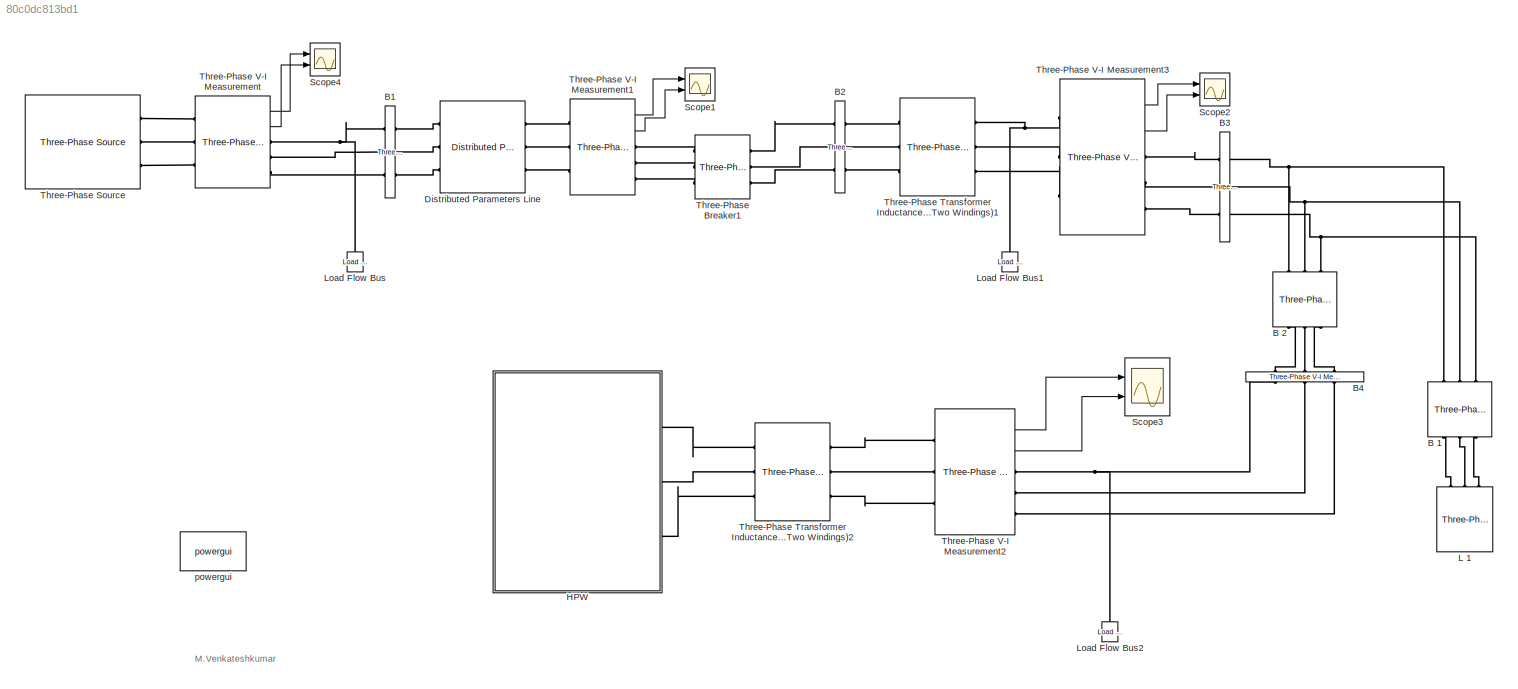
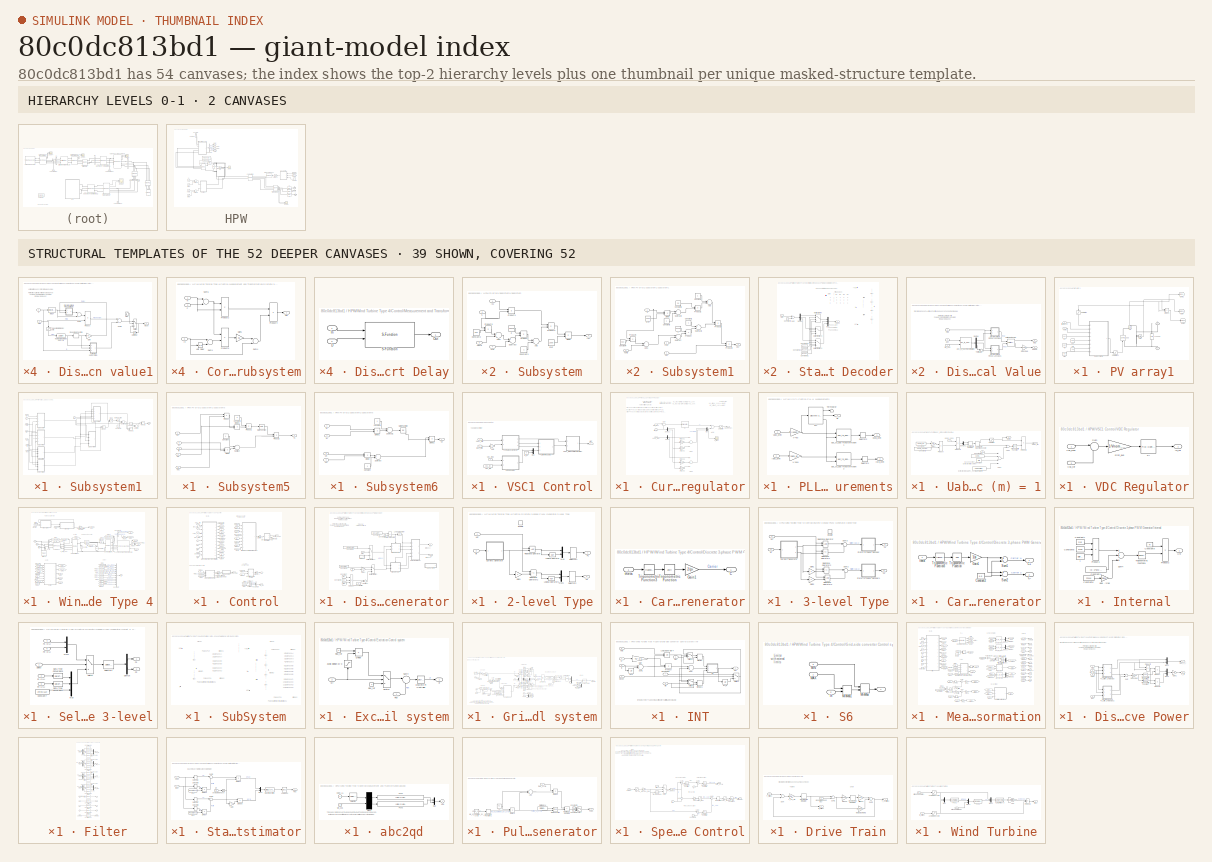
[diagram: thumbnail index - top-2 hierarchy levels (2 canvases) + 39 structural-template representatives of the remaining 52 canvases]
MODEL slx_80c0dc813bd1
KIND model
CONFIG AbsTol = auto
CONFIG EnableMultiTasking = on
CONFIG FixedStep = auto
CONFIG MaxStep = auto
CONFIG MinStep = auto
CONFIG RelTol = 1e-3
CONFIG SampleTimeConstraint = Unconstrained
CONFIG Solver = ode45
CONFIG SolverName = ode45
CONFIG StartTime = 0.0
CONFIG StopTime = 1
BLOCK [Reference] B 1  REF=powerlib/Elements/Three-Phase Breaker
  Ports = [0, 0, 0, 0, 0, 3, 3]
  SourceBlock = powerlib/Elements/Three-Phase Breaker
  SourceProductBaseCode = PS
  SourceProductName = Simscape Electrical
  SourceType = Three-Phase Breaker
BLOCK [Reference] B 2  REF=powerlib/Elements/Three-Phase Breaker
  Ports = [0, 0, 0, 0, 0, 3, 3]
  SourceBlock = powerlib/Elements/Three-Phase Breaker
  SourceProductBaseCode = PS
  SourceProductName = Simscape Electrical
  SourceType = Three-Phase Breaker
BLOCK [Reference] B1  REF=powerlib/Measurements/Three-Phase
V-I Measurement
  Ports = [0, 0, 0, 0, 0, 3, 3]
  SourceBlock = powerlib/Measurements/Three-Phase\nV-I Measurement
  SourceProductBaseCode = PS
  SourceProductName = Simscape Electrical
  SourceType = Three-Phase VI Measurement
BLOCK [Reference] B2  REF=powerlib/Measurements/Three-Phase
V-I Measurement
  Ports = [0, 0, 0, 0, 0, 3, 3]
  SourceBlock = powerlib/Measurements/Three-Phase\nV-I Measurement
  SourceProductBaseCode = PS
  SourceProductName = Simscape Electrical
  SourceType = Three-Phase VI Measurement
BLOCK [Reference] B3  REF=powerlib/Measurements/Three-Phase
V-I Measurement
  Ports = [0, 0, 0, 0, 0, 3, 3]
  SourceBlock = powerlib/Measurements/Three-Phase\nV-I Measurement
  SourceProductBaseCode = PS
  SourceProductName = Simscape Electrical
  SourceType = Three-Phase VI Measurement
BLOCK [Reference] B4  REF=powerlib/Measurements/Three-Phase
V-I Measurement
  Ports = [0, 0, 0, 0, 0, 3, 3]
  SourceBlock = powerlib/Measurements/Three-Phase\nV-I Measurement
  SourceProductBaseCode = PS
  SourceProductName = Simscape Electrical
  SourceType = Three-Phase VI Measurement
BLOCK [Reference] Distributed Parameters Line  REF=powerlib/Elements/Distributed Parameters Line
  Ports = [0, 0, 0, 0, 0, 3, 3]
  SourceBlock = powerlib/Elements/Distributed Parameters Line
  SourceProductBaseCode = PS
  SourceProductName = Simscape Electrical
  SourceType = Distributed Parameters Line
BLOCK [SubSystem] HPW
  Ports = [0, 0, 0, 0, 0, 0, 3]
  RequestExecContextInheritance = off
BLOCK [PMIOPort] HPW/B
  Port = 3
  Side = Right
BLOCK [BusSelector] HPW/Bus Selector
  OutputAsBus = off
  OutputSignals = Vdc_V,wr_pu,PQ_pu.P_pu,PQ_pu.Q_pu
  Ports = [1, 4]
BLOCK [Reference] HPW/C 2  REF=powerlib/Elements/Series RLC Branch
  Ports = [0, 0, 0, 0, 0, 1, 1]
  SourceBlock = powerlib/Elements/Series RLC Branch
  SourceProductBaseCode = PS
  SourceProductName = Simscape Electrical
  SourceType = Series RLC Branch
BLOCK [Constant] HPW/Constant
  Value = 500
BLOCK [Constant] HPW/Constant1
  Value = 15
BLOCK [Constant] HPW/Constant2
  Value = 0
BLOCK [Reference] HPW/D1  REF=powerlib/Power
Electronics/Diode
  Ports = [0, 0, 0, 0, 0, 1, 1]
  SourceBlock = powerlib/Power\nElectronics/Diode
  SourceProductBaseCode = PS
  SourceProductName = Simscape Electrical
  SourceType = Diode
BLOCK [Reference] HPW/D2  REF=powerlib/Power
Electronics/Diode
  Ports = [0, 0, 0, 0, 0, 1, 1]
  SourceBlock = powerlib/Power\nElectronics/Diode
  SourceProductBaseCode = PS
  SourceProductName = Simscape Electrical
  SourceType = Diode
BLOCK [Reference] HPW/D3  REF=powerlib/Power
Electronics/Diode
  Ports = [0, 0, 0, 0, 0, 1, 1]
  SourceBlock = powerlib/Power\nElectronics/Diode
  SourceProductBaseCode = PS
  SourceProductName = Simscape Electrical
  SourceType = Diode
BLOCK [From] HPW/From10
  CloseFcn = tagdialog Close
  GotoTag = Vabc_B4
  TagVisibility = global
BLOCK [From] HPW/From9
  CloseFcn = tagdialog Close
  GotoTag = Iabc_B4
  TagVisibility = global
BLOCK [Goto] HPW/Goto1
  GotoTag = P_pu
BLOCK [Goto] HPW/Goto2
  GotoTag = Vdc
BLOCK [Goto] HPW/Goto3
  GotoTag = wr
BLOCK [Goto] HPW/Goto5
  GotoTag = Q_pu
BLOCK [Reference] HPW/L 2  REF=powerlib/Elements/Series RLC Branch
  Ports = [0, 0, 0, 0, 0, 1, 1]
  SourceBlock = powerlib/Elements/Series RLC Branch
  SourceProductBaseCode = PS
  SourceProductName = Simscape Electrical
  SourceType = Series RLC Branch
BLOCK [SubSystem] HPW/PV array1
  Ports = [2, 0, 0, 0, 0, 0, 2]
  RequestExecContextInheritance = off
BLOCK [PMIOPort] HPW/PV array1/+
  Side = Right
  Tag = PMCPort
BLOCK [PMIOPort] HPW/PV array1/-
  Port = 2
  Side = Right
  Tag = PMCPort
BLOCK [Reference] HPW/PV array1/4700uF  REF=powerlib/Elements/Series RLC Branch
  AttributesFormatString = \n
  Ports = [0, 0, 0, 0, 0, 1, 1]
  SourceBlock = powerlib/Elements/Series RLC Branch
  SourceProductBaseCode = PS
  SourceProductName = Simscape Electrical
  SourceType = Series RLC Branch
BLOCK [Reference] HPW/PV array1/CCS  REF=powerlib/Electrical
Sources/Controlled Current Source
  Ports = [1, 0, 0, 0, 0, 1, 1]
  SourceBlock = powerlib/Electrical\nSources/Controlled Current Source
  SourceProductBaseCode = PS
  SourceProductName = Simscape Electrical
  SourceType = Controlled Current Source
BLOCK [Reference] HPW/PV array1/CM  REF=powerlib/Measurements/Current Measurement
  Ports = [0, 1, 0, 0, 0, 1, 1]
  SourceBlock = powerlib/Measurements/Current Measurement
  SourceProductBaseCode = PS
  SourceProductName = Simscape Electrical
  SourceType = Current Measurement
BLOCK [Product] HPW/PV array1/Divide1
  InputSameDT = off
  Inputs = **
  OutDataTypeStr = Inherit: Inherit via internal rule
  Ports = [2, 1]
  RndMeth = Floor
  SaturateOnIntegerOverflow = off
BLOCK [Goto] HPW/PV array1/Goto
  GotoTag = Upv1
  TagVisibility = global
BLOCK [Goto] HPW/PV array1/Goto1
  GotoTag = Ipv1
  TagVisibility = global
BLOCK [Goto] HPW/PV array1/Goto2
  GotoTag = Ppv1
  TagVisibility = global
BLOCK [Constant] HPW/PV array1/Im
  Value = 1.93
BLOCK [Constant] HPW/PV array1/Isc
  Value = 2.02
BLOCK [Saturate] HPW/PV array1/Saturation
  InputPortMap = u0
  LowerLimit = 0
  Ports = [1, 1]
  UpperLimit = 100
BLOCK [Saturate] HPW/PV array1/Saturation1
  InputPortMap = u0
  LowerLimit = 0
  Ports = [1, 1]
  UpperLimit = 4
BLOCK [SubSystem] HPW/PV array1/Subsystem1
  Ports = [8, 1]
  RequestExecContextInheritance = off
BLOCK [Constant] HPW/PV array1/Subsystem1/Constant
BLOCK [Constant] HPW/PV array1/Subsystem1/Constant1
BLOCK [Product] HPW/PV array1/Subsystem1/Divide
  InputSameDT = off
  Inputs = */
  OutDataTypeStr = Inherit: Inherit via internal rule
  Ports = [2, 1]
  RndMeth = Floor
  SaturateOnIntegerOverflow = off
BLOCK [Inport] HPW/PV array1/Subsystem1/Im
  IconDisplay = Port number
  Port = 6
BLOCK [Outport] HPW/PV array1/Subsystem1/Ipv
  IconDisplay = Port number
BLOCK [Inport] HPW/PV array1/Subsystem1/Isc
  IconDisplay = Port number
  Port = 4
BLOCK [Math] HPW/PV array1/Subsystem1/Math Function
  Ports = [1, 1]
BLOCK [Product] HPW/PV array1/Subsystem1/Product
  InputSameDT = off
  OutDataTypeStr = Inherit: Inherit via internal rule
  Ports = [2, 1]
  SaturateOnIntegerOverflow = off
BLOCK [Product] HPW/PV array1/Subsystem1/Product1
  InputSameDT = off
  OutDataTypeStr = Inherit: Inherit via internal rule
  Ports = [2, 1]
  SaturateOnIntegerOverflow = off
BLOCK [Product] HPW/PV array1/Subsystem1/Product2
  InputSameDT = off
  OutDataTypeStr = Inherit: Inherit via internal rule
  Ports = [2, 1]
  SaturateOnIntegerOverflow = off
BLOCK [Inport] HPW/PV array1/Subsystem1/S
  IconDisplay = Port number
  Port = 2
BLOCK [SubSystem] HPW/PV array1/Subsystem1/Subsystem
  Ports = [4, 1]
  RequestExecContextInheritance = off
BLOCK [Sum] HPW/PV array1/Subsystem1/Subsystem/Add
  InputSameDT = off
  OutDataTypeStr = Inherit: Inherit via internal rule
  Ports = [2, 1]
  SaturateOnIntegerOverflow = off
BLOCK [Sum] HPW/PV array1/Subsystem1/Subsystem/Add1
  InputSameDT = off
  OutDataTypeStr = Inherit: Inherit via internal rule
  Ports = [2, 1]
  SaturateOnIntegerOverflow = off
BLOCK [Constant] HPW/PV array1/Subsystem1/Subsystem/Constant1
BLOCK [Constant] HPW/PV array1/Subsystem1/Subsystem/Constant2
  Value = 0.03
BLOCK [Product] HPW/PV array1/Subsystem1/Subsystem/Divide
  InputSameDT = off
  Inputs = */
  OutDataTypeStr = Inherit: Inherit via internal rule
  Ports = [2, 1]
  RndMeth = Floor
  SaturateOnIntegerOverflow = off
BLOCK [Inport] HPW/PV array1/Subsystem1/Subsystem/Isc
  IconDisplay = Port number
BLOCK [Outport] HPW/PV array1/Subsystem1/Subsystem/Isc'
  IconDisplay = Port number
BLOCK [Product] HPW/PV array1/Subsystem1/Subsystem/Product
  InputSameDT = off
  OutDataTypeStr = Inherit: Inherit via internal rule
  Ports = [2, 1]
  SaturateOnIntegerOverflow = off
BLOCK [Product] HPW/PV array1/Subsystem1/Subsystem/Product1
  InputSameDT = off
  OutDataTypeStr = Inherit: Inherit via internal rule
  Ports = [2, 1]
  SaturateOnIntegerOverflow = off
BLOCK [Product] HPW/PV array1/Subsystem1/Subsystem/Product2
  InputSameDT = off
  OutDataTypeStr = Inherit: Inherit via internal rule
  Ports = [2, 1]
  SaturateOnIntegerOverflow = off
BLOCK [Product] HPW/PV array1/Subsystem1/Subsystem/Product3
  InputSameDT = off
  OutDataTypeStr = Inherit: Inherit via internal rule
  Ports = [2, 1]
  SaturateOnIntegerOverflow = off
BLOCK [Inport] HPW/PV array1/Subsystem1/Subsystem/S
  IconDisplay = Port number
  Port = 2
BLOCK [Constant] HPW/PV array1/Subsystem1/Subsystem/Sref
  Value = 1000
BLOCK [Sum] HPW/PV array1/Subsystem1/Subsystem/Subtract
  InputSameDT = off
  Inputs = +-
  OutDataTypeStr = Inherit: Inherit via internal rule
  Ports = [2, 1]
  SaturateOnIntegerOverflow = off
BLOCK [Inport] HPW/PV array1/Subsystem1/Subsystem/Tamb
  IconDisplay = Port number
  Port = 3
BLOCK [Inport] HPW/PV array1/Subsystem1/Subsystem/Tref
  IconDisplay = Port number
  Port = 4
BLOCK [Constant] HPW/PV array1/Subsystem1/Subsystem/a
  Value = 0.0025
BLOCK [SubSystem] HPW/PV array1/Subsystem1/Subsystem1
  Ports = [4, 1]
  RequestExecContextInheritance = off
BLOCK [Sum] HPW/PV array1/Subsystem1/Subsystem1/Add
  InputSameDT = off
  OutDataTypeStr = Inherit: Inherit via internal rule
  Ports = [2, 1]
  SaturateOnIntegerOverflow = off
BLOCK [Sum] HPW/PV array1/Subsystem1/Subsystem1/Add1
  InputSameDT = off
  OutDataTypeStr = Inherit: Inherit via internal rule
  Ports = [2, 1]
  SaturateOnIntegerOverflow = off
BLOCK [Constant] HPW/PV array1/Subsystem1/Subsystem1/Constant1
BLOCK [Constant] HPW/PV array1/Subsystem1/Subsystem1/Constant2
BLOCK [Constant] HPW/PV array1/Subsystem1/Subsystem1/Constant3
BLOCK [Constant] HPW/PV array1/Subsystem1/Subsystem1/Constant4
  Value = 0.03
BLOCK [Constant] HPW/PV array1/Subsystem1/Subsystem1/Constant5
  Value = 0.2
BLOCK [Product] HPW/PV array1/Subsystem1/Subsystem1/Divide
  InputSameDT = off
  Inputs = */
  OutDataTypeStr = Inherit: Inherit via internal rule
  Ports = [2, 1]
  RndMeth = Floor
  SaturateOnIntegerOverflow = off
BLOCK [Product] HPW/PV array1/Subsystem1/Subsystem1/Product
  InputSameDT = off
  OutDataTypeStr = Inherit: Inherit via internal rule
  Ports = [2, 1]
  SaturateOnIntegerOverflow = off
BLOCK [Product] HPW/PV array1/Subsystem1/Subsystem1/Product1
  InputSameDT = off
  OutDataTypeStr = Inherit: Inherit via internal rule
  Ports = [2, 1]
  SaturateOnIntegerOverflow = off
BLOCK [Product] HPW/PV array1/Subsystem1/Subsystem1/Product2
  InputSameDT = off
  OutDataTypeStr = Inherit: Inherit via internal rule
  Ports = [2, 1]
  SaturateOnIntegerOverflow = off
BLOCK [Product] HPW/PV array1/Subsystem1/Subsystem1/Product3
  InputSameDT = off
  OutDataTypeStr = Inherit: Inherit via internal rule
  Ports = [2, 1]
  SaturateOnIntegerOverflow = off
BLOCK [Product] HPW/PV array1/Subsystem1/Subsystem1/Product4
  InputSameDT = off
  OutDataTypeStr = Inherit: Inherit via internal rule
  Ports = [2, 1]
  SaturateOnIntegerOverflow = off
BLOCK [Inport] HPW/PV array1/Subsystem1/Subsystem1/S
  IconDisplay = Port number
BLOCK [Constant] HPW/PV array1/Subsystem1/Subsystem1/Sref
  Value = 1000
BLOCK [Sum] HPW/PV array1/Subsystem1/Subsystem1/Subtract
  InputSameDT = off
  Inputs = +-
  OutDataTypeStr = Inherit: Inherit via internal rule
  Ports = [2, 1]
  SaturateOnIntegerOverflow = off
BLOCK [Sum] HPW/PV array1/Subsystem1/Subsystem1/Subtract1
  InputSameDT = off
  Inputs = +-
  OutDataTypeStr = Inherit: Inherit via internal rule
  Ports = [2, 1]
  SaturateOnIntegerOverflow = off
BLOCK [Sum] HPW/PV array1/Subsystem1/Subsystem1/Subtract2
  InputSameDT = off
  Inputs = +-
  OutDataTypeStr = Inherit: Inherit via internal rule
  Ports = [2, 1]
  SaturateOnIntegerOverflow = off
BLOCK [Inport] HPW/PV array1/Subsystem1/Subsystem1/Tamb
  IconDisplay = Port number
  Port = 2
BLOCK [Inport] HPW/PV array1/Subsystem1/Subsystem1/Tref
  IconDisplay = Port number
  Port = 3
BLOCK [Inport] HPW/PV array1/Subsystem1/Subsystem1/Voc
  IconDisplay = Port number
  Port = 4
BLOCK [Outport] HPW/PV array1/Subsystem1/Subsystem1/Voc'
  IconDisplay = Port number
BLOCK [Constant] HPW/PV array1/Subsystem1/Subsystem1/c
  Value = 0.00288
BLOCK [SubSystem] HPW/PV array1/Subsystem1/Subsystem2
  Ports = [4, 1]
  RequestExecContextInheritance = off
BLOCK [Sum] HPW/PV array1/Subsystem1/Subsystem2/Add
  InputSameDT = off
  OutDataTypeStr = Inherit: Inherit via internal rule
  Ports = [2, 1]
  SaturateOnIntegerOverflow = off
BLOCK [Sum] HPW/PV array1/Subsystem1/Subsystem2/Add1
  InputSameDT = off
  OutDataTypeStr = Inherit: Inherit via internal rule
  Ports = [2, 1]
  SaturateOnIntegerOverflow = off
BLOCK [Constant] HPW/PV array1/Subsystem1/Subsystem2/Constant1
BLOCK [Constant] HPW/PV array1/Subsystem1/Subsystem2/Constant2
  Value = 0.03
BLOCK [Product] HPW/PV array1/Subsystem1/Subsystem2/Divide
  InputSameDT = off
  Inputs = */
  OutDataTypeStr = Inherit: Inherit via internal rule
  Ports = [2, 1]
  RndMeth = Floor
  SaturateOnIntegerOverflow = off
BLOCK [Inport] HPW/PV array1/Subsystem1/Subsystem2/Im
  IconDisplay = Port number
BLOCK [Outport] HPW/PV array1/Subsystem1/Subsystem2/Im'
  IconDisplay = Port number
BLOCK [Product] HPW/PV array1/Subsystem1/Subsystem2/Product
  InputSameDT = off
  OutDataTypeStr = Inherit: Inherit via internal rule
  Ports = [2, 1]
  SaturateOnIntegerOverflow = off
BLOCK [Product] HPW/PV array1/Subsystem1/Subsystem2/Product1
  InputSameDT = off
  OutDataTypeStr = Inherit: Inherit via internal rule
  Ports = [2, 1]
  SaturateOnIntegerOverflow = off
BLOCK [Product] HPW/PV array1/Subsystem1/Subsystem2/Product2
  InputSameDT = off
  OutDataTypeStr = Inherit: Inherit via internal rule
  Ports = [2, 1]
  SaturateOnIntegerOverflow = off
BLOCK [Product] HPW/PV array1/Subsystem1/Subsystem2/Product3
  InputSameDT = off
  OutDataTypeStr = Inherit: Inherit via internal rule
  Ports = [2, 1]
  SaturateOnIntegerOverflow = off
BLOCK [Inport] HPW/PV array1/Subsystem1/Subsystem2/S
  IconDisplay = Port number
  Port = 2
BLOCK [Constant] HPW/PV array1/Subsystem1/Subsystem2/Sref
  Value = 1000
BLOCK [Sum] HPW/PV array1/Subsystem1/Subsystem2/Subtract
  InputSameDT = off
  Inputs = +-
  OutDataTypeStr = Inherit: Inherit via internal rule
  Ports = [2, 1]
  SaturateOnIntegerOverflow = off
BLOCK [Inport] HPW/PV array1/Subsystem1/Subsystem2/Tamb
  IconDisplay = Port number
  Port = 3
BLOCK [Inport] HPW/PV array1/Subsystem1/Subsystem2/Tref
  IconDisplay = Port number
  Port = 4
BLOCK [Constant] HPW/PV array1/Subsystem1/Subsystem2/a
  Value = 0.0025
BLOCK [SubSystem] HPW/PV array1/Subsystem1/Subsystem3
  Ports = [4, 1]
  RequestExecContextInheritance = off
BLOCK [Sum] HPW/PV array1/Subsystem1/Subsystem3/Add
  InputSameDT = off
  OutDataTypeStr = Inherit: Inherit via internal rule
  Ports = [2, 1]
  SaturateOnIntegerOverflow = off
BLOCK [Sum] HPW/PV array1/Subsystem1/Subsystem3/Add1
  InputSameDT = off
  OutDataTypeStr = Inherit: Inherit via internal rule
  Ports = [2, 1]
  SaturateOnIntegerOverflow = off
BLOCK [Constant] HPW/PV array1/Subsystem1/Subsystem3/Constant1
BLOCK [Constant] HPW/PV array1/Subsystem1/Subsystem3/Constant2
BLOCK [Constant] HPW/PV array1/Subsystem1/Subsystem3/Constant3
BLOCK [Constant] HPW/PV array1/Subsystem1/Subsystem3/Constant4
  Value = 0.03
BLOCK [Constant] HPW/PV array1/Subsystem1/Subsystem3/Constant5
  Value = 0.2
BLOCK [Product] HPW/PV array1/Subsystem1/Subsystem3/Divide
  InputSameDT = off
  Inputs = */
  OutDataTypeStr = Inherit: Inherit via internal rule
  Ports = [2, 1]
  RndMeth = Floor
  SaturateOnIntegerOverflow = off
BLOCK [Product] HPW/PV array1/Subsystem1/Subsystem3/Product
  InputSameDT = off
  OutDataTypeStr = Inherit: Inherit via internal rule
  Ports = [2, 1]
  SaturateOnIntegerOverflow = off
BLOCK [Product] HPW/PV array1/Subsystem1/Subsystem3/Product1
  InputSameDT = off
  OutDataTypeStr = Inherit: Inherit via internal rule
  Ports = [2, 1]
  SaturateOnIntegerOverflow = off
BLOCK [Product] HPW/PV array1/Subsystem1/Subsystem3/Product2
  InputSameDT = off
  OutDataTypeStr = Inherit: Inherit via internal rule
  Ports = [2, 1]
  SaturateOnIntegerOverflow = off
BLOCK [Product] HPW/PV array1/Subsystem1/Subsystem3/Product3
  InputSameDT = off
  OutDataTypeStr = Inherit: Inherit via internal rule
  Ports = [2, 1]
  SaturateOnIntegerOverflow = off
BLOCK [Product] HPW/PV array1/Subsystem1/Subsystem3/Product4
  InputSameDT = off
  OutDataTypeStr = Inherit: Inherit via internal rule
  Ports = [2, 1]
  SaturateOnIntegerOverflow = off
BLOCK [Inport] HPW/PV array1/Subsystem1/Subsystem3/S
  IconDisplay = Port number
BLOCK [Constant] HPW/PV array1/Subsystem1/Subsystem3/Sref
  Value = 1000
BLOCK [Sum] HPW/PV array1/Subsystem1/Subsystem3/Subtract
  InputSameDT = off
  Inputs = +-
  OutDataTypeStr = Inherit: Inherit via internal rule
  Ports = [2, 1]
  SaturateOnIntegerOverflow = off
BLOCK [Sum] HPW/PV array1/Subsystem1/Subsystem3/Subtract1
  InputSameDT = off
  Inputs = +-
  OutDataTypeStr = Inherit: Inherit via internal rule
  Ports = [2, 1]
  SaturateOnIntegerOverflow = off
BLOCK [Sum] HPW/PV array1/Subsystem1/Subsystem3/Subtract2
  InputSameDT = off
  Inputs = +-
  OutDataTypeStr = Inherit: Inherit via internal rule
  Ports = [2, 1]
  SaturateOnIntegerOverflow = off
BLOCK [Inport] HPW/PV array1/Subsystem1/Subsystem3/Tamb
  IconDisplay = Port number
  Port = 2
BLOCK [Inport] HPW/PV array1/Subsystem1/Subsystem3/Tref
  IconDisplay = Port number
  Port = 3
BLOCK [Inport] HPW/PV array1/Subsystem1/Subsystem3/Vm
  IconDisplay = Port number
  Port = 4
BLOCK [Outport] HPW/PV array1/Subsystem1/Subsystem3/Vm'
  IconDisplay = Port number
BLOCK [Constant] HPW/PV array1/Subsystem1/Subsystem3/c
  Value = 0.00288
BLOCK [SubSystem] HPW/PV array1/Subsystem1/Subsystem5
  Ports = [5, 1]
  RequestExecContextInheritance = off
BLOCK [Outport] HPW/PV array1/Subsystem1/Subsystem5/C1
  IconDisplay = Port number
BLOCK [Inport] HPW/PV array1/Subsystem1/Subsystem5/C2
  IconDisplay = Port number
BLOCK [Constant] HPW/PV array1/Subsystem1/Subsystem5/Constant
BLOCK [Constant] HPW/PV array1/Subsystem1/Subsystem5/Constant1
  Value = -1
BLOCK [Product] HPW/PV array1/Subsystem1/Subsystem5/Divide
  InputSameDT = off
  Inputs = */
  OutDataTypeStr = Inherit: Inherit via internal rule
  Ports = [2, 1]
  RndMeth = Floor
  SaturateOnIntegerOverflow = off
BLOCK [Product] HPW/PV array1/Subsystem1/Subsystem5/Divide1
  InputSameDT = off
  Inputs = */
  OutDataTypeStr = Inherit: Inherit via internal rule
  Ports = [2, 1]
  RndMeth = Floor
  SaturateOnIntegerOverflow = off
BLOCK [Inport] HPW/PV array1/Subsystem1/Subsystem5/Im
  IconDisplay = Port number
  Port = 4
BLOCK [Inport] HPW/PV array1/Subsystem1/Subsystem5/Isc
  IconDisplay = Port number
  Port = 5
BLOCK [Math] HPW/PV array1/Subsystem1/Subsystem5/Math Function
  Ports = [1, 1]
BLOCK [Product] HPW/PV array1/Subsystem1/Subsystem5/Product
  InputSameDT = off
  OutDataTypeStr = Inherit: Inherit via internal rule
  Ports = [2, 1]
  SaturateOnIntegerOverflow = off
BLOCK [Product] HPW/PV array1/Subsystem1/Subsystem5/Product1
  InputSameDT = off
  OutDataTypeStr = Inherit: Inherit via internal rule
  Ports = [2, 1]
  SaturateOnIntegerOverflow = off
BLOCK [Product] HPW/PV array1/Subsystem1/Subsystem5/Product2
  InputSameDT = off
  OutDataTypeStr = Inherit: Inherit via internal rule
  Ports = [2, 1]
  SaturateOnIntegerOverflow = off
BLOCK [Sum] HPW/PV array1/Subsystem1/Subsystem5/Subtract
  InputSameDT = off
  Inputs = +-
  OutDataTypeStr = Inherit: Inherit via internal rule
  Ports = [2, 1]
  SaturateOnIntegerOverflow = off
BLOCK [Inport] HPW/PV array1/Subsystem1/Subsystem5/Vm
  IconDisplay = Port number
  Port = 2
BLOCK [Inport] HPW/PV array1/Subsystem1/Subsystem5/Voc
  IconDisplay = Port number
  Port = 3
BLOCK [SubSystem] HPW/PV array1/Subsystem1/Subsystem6
  Ports = [4, 1]
  RequestExecContextInheritance = off
BLOCK [Outport] HPW/PV array1/Subsystem1/Subsystem6/C2
  IconDisplay = Port number
BLOCK [Constant] HPW/PV array1/Subsystem1/Subsystem6/Constant
BLOCK [Constant] HPW/PV array1/Subsystem1/Subsystem6/Constant1
BLOCK [Product] HPW/PV array1/Subsystem1/Subsystem6/Divide
  InputSameDT = off
  Inputs = */
  OutDataTypeStr = Inherit: Inherit via internal rule
  Ports = [2, 1]
  RndMeth = Floor
  SaturateOnIntegerOverflow = off
BLOCK [Product] HPW/PV array1/Subsystem1/Subsystem6/Divide1
  InputSameDT = off
  Inputs = */
  OutDataTypeStr = Inherit: Inherit via internal rule
  Ports = [2, 1]
  RndMeth = Floor
  SaturateOnIntegerOverflow = off
BLOCK [Product] HPW/PV array1/Subsystem1/Subsystem6/Divide2
  InputSameDT = off
  Inputs = */
  OutDataTypeStr = Inherit: Inherit via internal rule
  Ports = [2, 1]
  RndMeth = Floor
  SaturateOnIntegerOverflow = off
BLOCK [Inport] HPW/PV array1/Subsystem1/Subsystem6/Im
  IconDisplay = Port number
BLOCK [Inport] HPW/PV array1/Subsystem1/Subsystem6/Isc
  IconDisplay = Port number
  Port = 2
BLOCK [Math] HPW/PV array1/Subsystem1/Subsystem6/Math Function
  Operator = log
  Ports = [1, 1]
BLOCK [Sum] HPW/PV array1/Subsystem1/Subsystem6/Subtract
  InputSameDT = off
  Inputs = +-
  OutDataTypeStr = Inherit: Inherit via internal rule
  Ports = [2, 1]
  SaturateOnIntegerOverflow = off
BLOCK [Sum] HPW/PV array1/Subsystem1/Subsystem6/Subtract1
  InputSameDT = off
  Inputs = +-
  OutDataTypeStr = Inherit: Inherit via internal rule
  Ports = [2, 1]
  SaturateOnIntegerOverflow = off
BLOCK [Inport] HPW/PV array1/Subsystem1/Subsystem6/Vm
  IconDisplay = Port number
  Port = 3
BLOCK [Inport] HPW/PV array1/Subsystem1/Subsystem6/Voc
  IconDisplay = Port number
  Port = 4
BLOCK [Sum] HPW/PV array1/Subsystem1/Subtract
  InputSameDT = off
  Inputs = +-
  OutDataTypeStr = Inherit: Inherit via internal rule
  Ports = [2, 1]
  SaturateOnIntegerOverflow = off
BLOCK [Sum] HPW/PV array1/Subsystem1/Subtract1
  InputSameDT = off
  Inputs = +-
  OutDataTypeStr = Inherit: Inherit via internal rule
  Ports = [2, 1]
  SaturateOnIntegerOverflow = off
BLOCK [Inport] HPW/PV array1/Subsystem1/Tamb
  IconDisplay = Port number
  Port = 3
BLOCK [Inport] HPW/PV array1/Subsystem1/Tref
  IconDisplay = Port number
  Port = 8
BLOCK [Inport] HPW/PV array1/Subsystem1/Vm
  IconDisplay = Port number
  Port = 7
BLOCK [Inport] HPW/PV array1/Subsystem1/Voc
  IconDisplay = Port number
  Port = 5
BLOCK [Inport] HPW/PV array1/Subsystem1/Vpv
  IconDisplay = Port number
BLOCK [Inport] HPW/PV array1/Tamb
  IconDisplay = Port number
  Port = 2
BLOCK [Constant] HPW/PV array1/Tref
  Value = 55
BLOCK [Reference] HPW/PV array1/VM1  REF=powerlib/Measurements/Voltage Measurement
  Ports = [0, 1, 0, 0, 0, 2]
  SourceBlock = powerlib/Measurements/Voltage Measurement
  SourceProductBaseCode = PS
  SourceProductName = Simscape Electrical
  SourceType = Voltage Measurement
BLOCK [Constant] HPW/PV array1/Vm
  Value = 70.4
BLOCK [Constant] HPW/PV array1/Voc
  Value = 86.8
BLOCK [Inport] HPW/PV array1/irradiance
  IconDisplay = Port number
BLOCK [Reference] HPW/PWM Generator  REF=powerlib_extras/Control 
Blocks/PWM Generator
  Ports = [0, 1]
  SourceBlock = powerlib_extras/Control \nBlocks/PWM Generator
  SourceProductBaseCode = PS
  SourceProductName = Simscape Electrical
  SourceType = PWM Generator
BLOCK [Reference] HPW/PWM Generator 2 kHz2  REF=powerlib_extras/Discrete 
Control Blocks/Discrete
PWM Generator
  Ports = [1, 1]
  SourceBlock = powerlib_extras/Discrete \nControl Blocks/Discrete\nPWM Generator
  SourceProductBaseCode = PS
  SourceProductName = Simscape Electrical
  SourceType = Discrete PWM Generator
BLOCK [PMIOPort] HPW/R
  Side = Right
BLOCK [Constant] HPW/S1
  Value = 1000
BLOCK [Scope] HPW/Scope
  Floating = off
  NumInputPorts = 1
  Ports = [1]
  ScopeSpecificationString = C++SS(StrPVP('Location','[232, 167, 1227, 622]'),StrPVP('Open','off'),StrPVP('ZoomMode','xonly'),MxPVP('AxesTitles',54,'struct(''axes1'',''DC voltage waveform - ( Wind power system 1500w)'')'),MxPVP('ScopeGraphics',57,'struct(''FigureColor'',''[1 1 1]'',''AxesColor'',''[1 1 1]'',''AxesTickColor'',''[0 0 0]'',''LineColors'',''[0.0392156862745098 0.141176470588235 0.415686274509804;1 0 1;0 1 1;1 0 0...<+454ch>
BLOCK [Scope] HPW/Scope4
  Floating = off
  NumInputPorts = 2
  Ports = [2]
  ScopeSpecificationString = C++SS(StrPVP('Location','[6, 45, 1286, 762]'),StrPVP('Open','off'),MxPVP('AxesTitles',54,'struct(''axes1'',''%<SignalLabel>'',''axes2'',''%<SignalLabel>'')'),MxPVP('ScopeGraphics',57,'struct(''FigureColor'',''[1 1 1]'',''AxesColor'',''[1 1 1]'',''AxesTickColor'',''[0 0 0]'',''LineColors'',''[0 0 0;1 0 1;0 1 1;1 0 0;0 1 0;0 0 1]'',''LineStyles'',''-|-|-|-|-|-'',''LineWidths'',''[0.5 0.5 0.5 0.5 0.5...<+372ch>
BLOCK [Step] HPW/Step1
  After = 200
  SampleTime = 0
  Time = 3
BLOCK [Step] HPW/Step3
  After = 5
  SampleTime = 0
  Time = 2
BLOCK [Sum] HPW/Subtract1
  InputSameDT = off
  Inputs = +-
  OutDataTypeStr = Inherit: Inherit via internal rule
  Ports = [2, 1]
  SaturateOnIntegerOverflow = off
BLOCK [Sum] HPW/Subtract3
  InputSameDT = off
  OutDataTypeStr = Inherit: Inherit via internal rule
  Ports = [2, 1]
  SaturateOnIntegerOverflow = off
BLOCK [Constant] HPW/Tamb1
  Value = 25
BLOCK [Reference] HPW/Three-Phase V-I Measurement  REF=powerlib/Measurements/Three-Phase
V-I Measurement
  Ports = [0, 2, 0, 0, 0, 3, 3]
  SourceBlock = powerlib/Measurements/Three-Phase\nV-I Measurement
  SourceProductBaseCode = PS
  SourceProductName = Simscape Electrical
  SourceType = Three-Phase VI Measurement
BLOCK [UnitDelay] HPW/Unit Delay2
  HasFrameUpgradeWarning = on
BLOCK [Reference] HPW/Universal Bridge  REF=powerlib/Power
Electronics/Universal Bridge
  Ports = [1, 0, 0, 0, 0, 3, 2]
  SourceBlock = powerlib/Power\nElectronics/Universal Bridge
  SourceProductBaseCode = PS
  SourceProductName = Simscape Electrical
  SourceType = Universal Bridge
BLOCK [Reference] HPW/Universal Bridge1  REF=powerlib/Power
Electronics/Universal Bridge
  Ports = [1, 0, 0, 0, 0, 3, 2]
  SourceBlock = powerlib/Power\nElectronics/Universal Bridge
  SourceProductBaseCode = PS
  SourceProductName = Simscape Electrical
  SourceType = Universal Bridge
BLOCK [SubSystem] HPW/VSC1 Control
  Ports = [3, 1]
  RequestExecContextInheritance = off
BLOCK [SubSystem] HPW/VSC1 Control/Current Regulator
  Ports = [3, 1]
  RequestExecContextInheritance = off
BLOCK [Sum] HPW/VSC1 Control/Current Regulator/Add1
  InputSameDT = off
  Inputs = ++-
  OutDataTypeStr = Inherit: Inherit via internal rule
  Ports = [3, 1]
  SaturateOnIntegerOverflow = off
BLOCK [Sum] HPW/VSC1 Control/Current Regulator/Add2
  InputSameDT = off
  OutDataTypeStr = Inherit: Inherit via internal rule
  Ports = [2, 1]
  SaturateOnIntegerOverflow = off
BLOCK [Sum] HPW/VSC1 Control/Current Regulator/Add3
  InputSameDT = off
  Inputs = +++
  OutDataTypeStr = Inherit: Inherit via internal rule
  Ports = [3, 1]
  SaturateOnIntegerOverflow = off
BLOCK [Demux] HPW/VSC1 Control/Current Regulator/Demux
  DisplayOption = bar
  Outputs = 2
  Ports = [1, 2]
BLOCK [Demux] HPW/VSC1 Control/Current Regulator/Demux1
  DisplayOption = bar
  Outputs = 2
  Ports = [1, 2]
BLOCK [Inport] HPW/VSC1 Control/Current Regulator/IdIq_mes
  IconDisplay = Port number
  Port = 2
  PortDimensions = 2
BLOCK [Inport] HPW/VSC1 Control/Current Regulator/IdIq_ref
  IconDisplay = Port number
  Port = 3
  PortDimensions = 2
BLOCK [Gain] HPW/VSC1 Control/Current Regulator/Ltot_pu1
  Gain = Ltot_pu
BLOCK [Gain] HPW/VSC1 Control/Current Regulator/Ltot_pu2
  Gain = Ltot_pu
BLOCK [Mux] HPW/VSC1 Control/Current Regulator/Mux
  DisplayOption = bar
  Inputs = 2
  Ports = [2, 1]
BLOCK [Reference] HPW/VSC1 Control/Current Regulator/PI  REF=simulink/Continuous/PID Controller
  Ports = [1, 1]
  SourceBlock = simulink/Continuous/PID Controller
  SourceProductBaseCode = SL
  SourceProductName = Simulink
  SourceType = PID 1dof
BLOCK [Scope] HPW/VSC1 Control/Current Regulator/PI_Ireg1
  Floating = off
  NumInputPorts = 1
  Ports = [1]
  ScopeSpecificationString = C++SS(StrPVP('Location','[320, 533, 983, 1080]'),StrPVP('Open','off'),StrPVP('ZoomMode','yonly'),MxPVP('AxesTitles',54,'struct(''axes1'',''%<SignalLabel>'')'),MxPVP('ScopeGraphics',57,'struct(''FigureColor'',''[0.5 0.5 0.5]'',''AxesColor'',''[0 0 0]'',''AxesTickColor'',''[1 1 1]'',''LineColors'',''[1 1 0;1 0 1;0 1 1;1 0 0;0 1 0;0 0 1]'',''LineStyles'',''-|-|-|-|-|-'',''LineWidths'',''[0.5 0.5 0.5 ...<+350ch>
BLOCK [Gain] HPW/VSC1 Control/Current Regulator/Rtot_pu1
  Gain = Rtot_pu
BLOCK [Gain] HPW/VSC1 Control/Current Regulator/Rtot_pu5
  Gain = Rtot_pu
BLOCK [Saturate] HPW/VSC1 Control/Current Regulator/Saturation
  InputPortMap = u0
  LowerLimit = -2
  Ports = [1, 1]
  UpperLimit = 2
BLOCK [Sum] HPW/VSC1 Control/Current Regulator/Sum
  IconShape = round
  InputSameDT = off
  Inputs = |-+
  OutDataTypeStr = Inherit: Inherit via internal rule
  Ports = [2, 1]
  SaturateOnIntegerOverflow = off
BLOCK [Outport] HPW/VSC1 Control/Current Regulator/VdVq_conv
  IconDisplay = Port number
BLOCK [Inport] HPW/VSC1 Control/Current Regulator/VdVq_mes
  IconDisplay = Port number
  PortDimensions = 2
BLOCK [Gain] HPW/VSC1 Control/Gain
  Gain = -1
  OutDataTypeStr = Inherit: Inherit via internal rule
  ParamDataTypeStr = Inherit: Inherit via internal rule
  SaturateOnIntegerOverflow = off
BLOCK [Inport] HPW/VSC1 Control/Iabc_prim
  IconDisplay = Port number
  Port = 2
  PortDimensions = 3
BLOCK [Constant] HPW/VSC1 Control/Iq_ref
  Value = 0
BLOCK [Mux] HPW/VSC1 Control/Mux
  DisplayOption = bar
  Inputs = 2
  Ports = [2, 1]
BLOCK [SubSystem] HPW/VSC1 Control/PLL & Measurements
  Ports = [2, 3]
  RequestExecContextInheritance = off
BLOCK [Inport] HPW/VSC1 Control/PLL & Measurements/Iabc_prim
  IconDisplay = Port number
  Port = 2
BLOCK [Outport] HPW/VSC1 Control/PLL & Measurements/IdIq_prim
  IconDisplay = Port number
  Port = 3
BLOCK [Reference] HPW/VSC1 Control/PLL & Measurements/PLL  REF=powerlib_extras/Discrete 
Control Blocks/Discrete
3-phase PLL
  Ports = [1, 3]
  SourceBlock = powerlib_extras/Discrete \nControl Blocks/Discrete\n3-phase PLL
  SourceProductBaseCode = PS
  SourceProductName = Simscape Electrical
  SourceType = Discrete 3-phase PLL
BLOCK [Selector] HPW/VSC1 Control/PLL & Measurements/Selector1
  IndexOptions = Index vector (dialog)
  Indices = [1 2]
  InputPortWidth = 3
  OutputSizes = 1
  Ports = [1, 1]
BLOCK [Selector] HPW/VSC1 Control/PLL & Measurements/Selector2
  IndexOptions = Index vector (dialog)
  Indices = [1 2]
  InputPortWidth = 3
  OutputSizes = 1
  Ports = [1, 1]
BLOCK [Terminator] HPW/VSC1 Control/PLL & Measurements/Terminator
BLOCK [Gain] HPW/VSC1 Control/PLL & Measurements/V->pu
  Gain = 1/(Vnom_prim*sqrt(2)/sqrt(3))
BLOCK [Gain] HPW/VSC1 Control/PLL & Measurements/V->pu1
  Gain = Vnom_prim*sqrt(3)/Pnom/sqrt(2)
BLOCK [Inport] HPW/VSC1 Control/PLL & Measurements/Vabc_prim
  IconDisplay = Port number
BLOCK [Outport] HPW/VSC1 Control/PLL & Measurements/VdVq_prim
  IconDisplay = Port number
  Port = 2
BLOCK [Reference] HPW/VSC1 Control/PLL & Measurements/abc_to_dq0 Transformation1  REF=powerlib_extras/Measurements/abc_to_dq0
Transformation
  Ports = [2, 1]
  SourceBlock = powerlib_extras/Measurements/abc_to_dq0\nTransformation
  SourceProductBaseCode = PS
  SourceProductName = Simscape Electrical
  SourceType = abc to dq0 Transformation
BLOCK [Reference] HPW/VSC1 Control/PLL & Measurements/abc_to_dq0 Transformation2  REF=powerlib_extras/Measurements/abc_to_dq0
Transformation
  Ports = [2, 1]
  SourceBlock = powerlib_extras/Measurements/abc_to_dq0\nTransformation
  SourceProductBaseCode = PS
  SourceProductName = Simscape Electrical
  SourceType = abc to dq0 Transformation
BLOCK [Outport] HPW/VSC1 Control/PLL & Measurements/wt
  IconDisplay = Port number
BLOCK [SubSystem] HPW/VSC1 Control/Uabc_ref Generation max (m) = 1
  Ports = [2, 1]
  RequestExecContextInheritance = off
BLOCK [Sum] HPW/VSC1 Control/Uabc_ref Generation max (m) = 1/Add1
  InputSameDT = off
  Inputs = ++++
  OutDataTypeStr = Inherit: Inherit via internal rule
  Ports = [4, 1]
  SaturateOnIntegerOverflow = off
BLOCK [Sum] HPW/VSC1 Control/Uabc_ref Generation max (m) = 1/Add2
  InputSameDT = off
  OutDataTypeStr = Inherit: Inherit via internal rule
  Ports = [2, 1]
  SaturateOnIntegerOverflow = off
BLOCK [ComplexToMagnitudeAngle] HPW/VSC1 Control/Uabc_ref Generation max (m) = 1/Complex to Magnitude-Angle
  Ports = [1, 2]
BLOCK [Constant] HPW/VSC1 Control/Uabc_ref Generation max (m) = 1/Constant
  Value = -pi/6
BLOCK [Constant] HPW/VSC1 Control/Uabc_ref Generation max (m) = 1/Constant1
  Value = Vnom_dc
BLOCK [Constant] HPW/VSC1 Control/Uabc_ref Generation max (m) = 1/Constant2
  Value = [ 0  -2*pi/3  2*pi/3  ]
BLOCK [Constant] HPW/VSC1 Control/Uabc_ref Generation max (m) = 1/Constant3
  Value = Vnom_sec*sqrt(2)/sqrt(3)
BLOCK [Constant] HPW/VSC1 Control/Uabc_ref Generation max (m) = 1/Constant4
  Value = Ts*Fnom*(2*pi)
BLOCK [Demux] HPW/VSC1 Control/Uabc_ref Generation max (m) = 1/Demux1
  DisplayOption = bar
  Outputs = 2
  Ports = [1, 2]
BLOCK [Gain] HPW/VSC1 Control/Uabc_ref Generation max (m) = 1/Gain1
  Gain = 1/2
  OutDataTypeStr = Inherit: Inherit via internal rule
  ParamDataTypeStr = Inherit: Inherit via internal rule
  SaturateOnIntegerOverflow = off
BLOCK [Goto] HPW/VSC1 Control/Uabc_ref Generation max (m) = 1/Goto1
  GotoTag = m
  TagVisibility = global
BLOCK [Product] HPW/VSC1 Control/Uabc_ref Generation max (m) = 1/Product
  InputSameDT = off
  Inputs = */
  OutDataTypeStr = Inherit: Inherit via internal rule
  Ports = [2, 1]
  SaturateOnIntegerOverflow = off
BLOCK [Product] HPW/VSC1 Control/Uabc_ref Generation max (m) = 1/Product1
  InputSameDT = off
  Inputs = */
  OutDataTypeStr = Inherit: Inherit via internal rule
  Ports = [2, 1]
  SaturateOnIntegerOverflow = off
BLOCK [Product] HPW/VSC1 Control/Uabc_ref Generation max (m) = 1/Product2
  InputSameDT = off
  Inputs = **
  OutDataTypeStr = Inherit: Inherit via internal rule
  Ports = [2, 1]
  SaturateOnIntegerOverflow = off
BLOCK [RealImagToComplex] HPW/VSC1 Control/Uabc_ref Generation max (m) = 1/Real-Imag to Complex
  Ports = [2, 1]
BLOCK [Saturate] HPW/VSC1 Control/Uabc_ref Generation max (m) = 1/Saturation
  InputPortMap = u0
  LowerLimit = 0
  Ports = [1, 1]
  UpperLimit = 1
BLOCK [Trigonometry] HPW/VSC1 Control/Uabc_ref Generation max (m) = 1/Trigonometric Function
  Ports = [1, 1]
BLOCK [Outport] HPW/VSC1 Control/Uabc_ref Generation max (m) = 1/Uabc_ref
  IconDisplay = Port number
BLOCK [Inport] HPW/VSC1 Control/Uabc_ref Generation max (m) = 1/VdVq_conv
  IconDisplay = Port number
  Port = 2
BLOCK [Inport] HPW/VSC1 Control/Uabc_ref Generation max (m) = 1/wt
  IconDisplay = Port number
BLOCK [Outport] HPW/VSC1 Control/Uref
  IconDisplay = Port number
BLOCK [SubSystem] HPW/VSC1 Control/VDC Regulator
  Ports = [2, 1]
  RequestExecContextInheritance = off
BLOCK [Outport] HPW/VSC1 Control/VDC Regulator/Id_ref
  IconDisplay = Port number
  InitialOutput = 0
  SampleTime = Ts
BLOCK [Reference] HPW/VSC1 Control/VDC Regulator/PI  REF=simulink/Continuous/PID Controller
  Ports = [1, 1]
  SourceBlock = simulink/Continuous/PID Controller
  SourceProductBaseCode = SL
  SourceProductName = Simulink
  SourceType = PID 1dof
BLOCK [Gain] HPW/VSC1 Control/VDC Regulator/Rtot_pu3
  Gain = 1/Vnom_dc
BLOCK [Sum] HPW/VSC1 Control/VDC Regulator/Sum
  IconShape = round
  InputSameDT = off
  Inputs = |+-
  OutDataTypeStr = Inherit: Inherit via internal rule
  Ports = [2, 1]
  SaturateOnIntegerOverflow = off
BLOCK [Inport] HPW/VSC1 Control/VDC Regulator/Vdc_mes
  IconDisplay = Port number
  PortDimensions = 1
BLOCK [Inport] HPW/VSC1 Control/VDC Regulator/Vdc_ref
  IconDisplay = Port number
  Port = 2
  PortDimensions = 1
BLOCK [Inport] HPW/VSC1 Control/Vabc_prim
  IconDisplay = Port number
  PortDimensions = 3
BLOCK [Inport] HPW/VSC1 Control/Vdc_mes
  IconDisplay = Port number
  Port = 3
  PortDimensions = 1
BLOCK [Constant] HPW/VSC1 Control/Vdc_ref1
  Value = Vdc_ref
BLOCK [Reference] HPW/Voltage Measurement  REF=powerlib/Measurements/Voltage Measurement
  Ports = [0, 1, 0, 0, 0, 2]
  SourceBlock = powerlib/Measurements/Voltage Measurement
  SourceProductBaseCode = PS
  SourceProductName = Simscape Electrical
  SourceType = Voltage Measurement
BLOCK [SubSystem] HPW/Wind Turbine Type 4
  LoadFcn = %find_system(gcs,'FollowLinks', 'on', 'LookUnderMasks', 'all');
  Ports = [2, 1, 0, 0, 0, 3]
  RequestExecContextInheritance = off
BLOCK [PMIOPort] HPW/Wind Turbine Type 4/A
  Side = Left
  Tag = PMCPort
BLOCK [PMIOPort] HPW/Wind Turbine Type 4/B
  Port = 2
  Side = Left
  Tag = PMCPort
BLOCK [Reference] HPW/Wind Turbine Type 4/B_gen  REF=powerlib/Measurements/Three-Phase
V-I Measurement
  Ports = [0, 2, 0, 0, 0, 3, 3]
  SourceBlock = powerlib/Measurements/Three-Phase\nV-I Measurement
  SourceProductBaseCode = PS
  SourceProductName = Simscape Electrical
  SourceType = Three-Phase VI Measurement
BLOCK [Reference] HPW/Wind Turbine Type 4/B_grid  REF=powerlib/Measurements/Three-Phase
V-I Measurement
  Ports = [0, 2, 0, 0, 0, 3, 3]
  SourceBlock = powerlib/Measurements/Three-Phase\nV-I Measurement
  SourceProductBaseCode = PS
  SourceProductName = Simscape Electrical
  SourceType = Three-Phase VI Measurement
BLOCK [Reference] HPW/Wind Turbine Type 4/B_grid_conv  REF=powerlib/Measurements/Three-Phase
V-I Measurement
  Ports = [0, 1, 0, 0, 0, 3, 3]
  SourceBlock = powerlib/Measurements/Three-Phase\nV-I Measurement
  SourceProductBaseCode = PS
  SourceProductName = Simscape Electrical
  SourceType = Three-Phase VI Measurement
BLOCK [BusCreator] HPW/Wind Turbine Type 4/Bus Creator
  DisplayOption = bar
  InheritFromInputs = on
  Inputs = 11
  Ports = [11, 1]
BLOCK [BusSelector] HPW/Wind Turbine Type 4/Bus Selector
  OutputAsBus = off
  OutputSignals = Mechanical.Rotor speed  wm  (pu),Mechanical.Rotor mechanical angle  theta (deg)
  Ports = [1, 2]
BLOCK [PMIOPort] HPW/Wind Turbine Type 4/C
  Port = 3
  Side = Left
  Tag = PMCPort
BLOCK [Reference] HPW/Wind Turbine Type 4/C_DClink  REF=powerlib/Elements/Series RLC Branch
  Ports = [0, 0, 0, 0, 0, 1, 1]
  SourceBlock = powerlib/Elements/Series RLC Branch
  SourceProductBaseCode = PS
  SourceProductName = Simscape Electrical
  SourceType = Series RLC Branch
BLOCK [Reference] HPW/Wind Turbine Type 4/Choke   REF=powerlib/Elements/Three-Phase
Series RLC Branch
  AttributesFormatString = \n
  Ports = [0, 0, 0, 0, 0, 3, 3]
  SourceBlock = powerlib/Elements/Three-Phase\nSeries RLC Branch
  SourceProductBaseCode = PS
  SourceProductName = Simscape Electrical
  SourceType = Three-Phase Series RLC Branch
BLOCK [SubSystem] HPW/Wind Turbine Type 4/Control
  Ports = [9, 5]
  RequestExecContextInheritance = off
BLOCK [Outport] HPW/Wind Turbine Type 4/Control/Boost_Pulse
  IconDisplay = Port number
  Port = 2
BLOCK [BusCreator] HPW/Wind Turbine Type 4/Control/Bus Creator
  DisplayOption = bar
  InheritFromInputs = on
  Inputs = 2
  Ports = [2, 1]
BLOCK [SubSystem] HPW/Wind Turbine Type 4/Control/Discrete 3-phase PWM Generator
  DialogController = POWERSYS.PowerSysDialog
  Ports = [1, 2]
  RequestExecContextInheritance = off
BLOCK [SubSystem] HPW/Wind Turbine Type 4/Control/Discrete 3-phase PWM Generator/2-level Type
  Ports = [2, 2, 1]
  RequestExecContextInheritance = off
  TreatAsAtomicUnit = on
BLOCK [SubSystem] HPW/Wind Turbine Type 4/Control/Discrete 3-phase PWM Generator/2-level Type/Carriers Generator
  Ports = [1, 1]
  RequestExecContextInheritance = off
BLOCK [Outport] HPW/Wind Turbine Type 4/Control/Discrete 3-phase PWM Generator/2-level Type/Carriers Generator/C
  IconDisplay = Port number
BLOCK [Gain] HPW/Wind Turbine Type 4/Control/Discrete 3-phase PWM Generator/2-level Type/Carriers Generator/Gain1
  Gain = 2/pi
BLOCK [Trigonometry] HPW/Wind Turbine Type 4/Control/Discrete 3-phase PWM Generator/2-level Type/Carriers Generator/Trigonometric Function
  Operator = asin
  Ports = [1, 1]
BLOCK [Trigonometry] HPW/Wind Turbine Type 4/Control/Discrete 3-phase PWM Generator/2-level Type/Carriers Generator/Trigonometric Function3
  Ports = [1, 1]
BLOCK [Inport] HPW/Wind Turbine Type 4/Control/Discrete 3-phase PWM Generator/2-level Type/Carriers Generator/theta
  IconDisplay = Port number
BLOCK [EnablePort] HPW/Wind Turbine Type 4/Control/Discrete 3-phase PWM Generator/2-level Type/Enable
  Ports = []
  PropagateVarSize = During execution
BLOCK [Gain] HPW/Wind Turbine Type 4/Control/Discrete 3-phase PWM Generator/2-level Type/Gain1
  Gain = -1
BLOCK [Logic] HPW/Wind Turbine Type 4/Control/Discrete 3-phase PWM Generator/2-level Type/Logical Operator
  Operator = NOT
  Ports = [1, 1]
BLOCK [Logic] HPW/Wind Turbine Type 4/Control/Discrete 3-phase PWM Generator/2-level Type/Logical Operator1
  Operator = NOT
  Ports = [1, 1]
BLOCK [Mux] HPW/Wind Turbine Type 4/Control/Discrete 3-phase PWM Generator/2-level Type/Mux
  DisplayOption = bar
  Inputs = [3 3]
  Ports = [2, 1]
BLOCK [Mux] HPW/Wind Turbine Type 4/Control/Discrete 3-phase PWM Generator/2-level Type/Mux1
  DisplayOption = bar
  Inputs = [3 3]
  Ports = [2, 1]
BLOCK [Outport] HPW/Wind Turbine Type 4/Control/Discrete 3-phase PWM Generator/2-level Type/P1
  IconDisplay = Port number
BLOCK [Outport] HPW/Wind Turbine Type 4/Control/Discrete 3-phase PWM Generator/2-level Type/P2
  IconDisplay = Port number
  Port = 2
BLOCK [RelationalOperator] HPW/Wind Turbine Type 4/Control/Discrete 3-phase PWM Generator/2-level Type/Relational Operator
  Ports = [2, 1]
BLOCK [RelationalOperator] HPW/Wind Turbine Type 4/Control/Discrete 3-phase PWM Generator/2-level Type/Relational Operator2
  Operator = <=
  Ports = [2, 1]
BLOCK [Selector] HPW/Wind Turbine Type 4/Control/Discrete 3-phase PWM Generator/2-level Type/Selector1
  IndexOptions = Index vector (dialog)
  Indices = [1 4 2 5 3 6]
  InputPortWidth = 6
  OutputSizes = 1
  Ports = [1, 1]
BLOCK [Selector] HPW/Wind Turbine Type 4/Control/Discrete 3-phase PWM Generator/2-level Type/Selector2
  IndexOptions = Index vector (dialog)
  Indices = [1 4 2 5 3 6]
  InputPortWidth = 6
  OutputSizes = 1
  Ports = [1, 1]
BLOCK [Inport] HPW/Wind Turbine Type 4/Control/Discrete 3-phase PWM Generator/2-level Type/Ust
  IconDisplay = Port number
BLOCK [Inport] HPW/Wind Turbine Type 4/Control/Discrete 3-phase PWM Generator/2-level Type/wt
  IconDisplay = Port number
  Port = 2
BLOCK [SubSystem] HPW/Wind Turbine Type 4/Control/Discrete 3-phase PWM Generator/3-level Type
  Ports = [2, 2, 1]
  RequestExecContextInheritance = off
  TreatAsAtomicUnit = on
BLOCK [SubSystem] HPW/Wind Turbine Type 4/Control/Discrete 3-phase PWM Generator/3-level Type/Carriers Generator
  Ports = [1, 2]
  RequestExecContextInheritance = off
BLOCK [Outport] HPW/Wind Turbine Type 4/Control/Discrete 3-phase PWM Generator/3-level Type/Carriers Generator/C+
  IconDisplay = Port number
BLOCK [Outport] HPW/Wind Turbine Type 4/Control/Discrete 3-phase PWM Generator/3-level Type/Carriers Generator/C-
  IconDisplay = Port number
  Port = 2
BLOCK [Constant] HPW/Wind Turbine Type 4/Control/Discrete 3-phase PWM Generator/3-level Type/Carriers Generator/Constant2
  Value = 0.5
BLOCK [Gain] HPW/Wind Turbine Type 4/Control/Discrete 3-phase PWM Generator/3-level Type/Carriers Generator/Gain1
  Gain = 1/pi
BLOCK [Sum] HPW/Wind Turbine Type 4/Control/Discrete 3-phase PWM Generator/3-level Type/Carriers Generator/Sum1
  Ports = [2, 1]
BLOCK [Sum] HPW/Wind Turbine Type 4/Control/Discrete 3-phase PWM Generator/3-level Type/Carriers Generator/Sum2
  Inputs = +-
  Ports = [2, 1]
BLOCK [Trigonometry] HPW/Wind Turbine Type 4/Control/Discrete 3-phase PWM Generator/3-level Type/Carriers Generator/Trigonometric Function
  Operator = asin
  Ports = [1, 1]
BLOCK [Trigonometry] HPW/Wind Turbine Type 4/Control/Discrete 3-phase PWM Generator/3-level Type/Carriers Generator/Trigonometric Function3
  Ports = [1, 1]
BLOCK [Inport] HPW/Wind Turbine Type 4/Control/Discrete 3-phase PWM Generator/3-level Type/Carriers Generator/theta
  IconDisplay = Port number
BLOCK [EnablePort] HPW/Wind Turbine Type 4/Control/Discrete 3-phase PWM Generator/3-level Type/Enable
  Ports = []
  PropagateVarSize = During execution
BLOCK [Gain] HPW/Wind Turbine Type 4/Control/Discrete 3-phase PWM Generator/3-level Type/Gain1
  Gain = -1
BLOCK [Gain] HPW/Wind Turbine Type 4/Control/Discrete 3-phase PWM Generator/3-level Type/Gain2
  Gain = -1
BLOCK [Outport] HPW/Wind Turbine Type 4/Control/Discrete 3-phase PWM Generator/3-level Type/P1
  IconDisplay = Port number
BLOCK [Outport] HPW/Wind Turbine Type 4/Control/Discrete 3-phase PWM Generator/3-level Type/P2
  IconDisplay = Port number
  Port = 2
BLOCK [RelationalOperator] HPW/Wind Turbine Type 4/Control/Discrete 3-phase PWM Generator/3-level Type/Relational Operator
  OutDataTypeStr = float('double')
  Ports = [2, 1]
BLOCK [RelationalOperator] HPW/Wind Turbine Type 4/Control/Discrete 3-phase PWM Generator/3-level Type/Relational Operator1
  Operator = <=
  OutDataTypeStr = float('double')
  Ports = [2, 1]
BLOCK [RelationalOperator] HPW/Wind Turbine Type 4/Control/Discrete 3-phase PWM Generator/3-level Type/Relational Operator2
  Operator = <=
  OutDataTypeStr = float('double')
  Ports = [2, 1]
BLOCK [RelationalOperator] HPW/Wind Turbine Type 4/Control/Discrete 3-phase PWM Generator/3-level Type/Relational Operator3
  OutDataTypeStr = float('double')
  Ports = [2, 1]
BLOCK [SubSystem] HPW/Wind Turbine Type 4/Control/Discrete 3-phase PWM Generator/3-level Type/State-to-Pulses Decoder
  Ports = [1, 1]
  RequestExecContextInheritance = off
BLOCK [Constant] HPW/Wind Turbine Type 4/Control/Discrete 3-phase PWM Generator/3-level Type/State-to-Pulses Decoder/Constant11
  Value = [1 1 0 0]
BLOCK [Constant] HPW/Wind Turbine Type 4/Control/Discrete 3-phase PWM Generator/3-level Type/State-to-Pulses Decoder/Constant12
  Value = [0 0 1 1]
BLOCK [Constant] HPW/Wind Turbine Type 4/Control/Discrete 3-phase PWM Generator/3-level Type/State-to-Pulses Decoder/Constant13
  Value = [0 1 1 0]
BLOCK [Constant] HPW/Wind Turbine Type 4/Control/Discrete 3-phase PWM Generator/3-level Type/State-to-Pulses Decoder/Constant2
  Value = 2
BLOCK [Demux] HPW/Wind Turbine Type 4/Control/Discrete 3-phase PWM Generator/3-level Type/State-to-Pulses Decoder/Demux
  Outputs = 3
  Ports = [1, 3]
BLOCK [MultiPortSwitch] HPW/Wind Turbine Type 4/Control/Discrete 3-phase PWM Generator/3-level Type/State-to-Pulses Decoder/Multiport Switch
  Ports = [4, 1]
  SaturateOnIntegerOverflow = off
BLOCK [MultiPortSwitch] HPW/Wind Turbine Type 4/Control/Discrete 3-phase PWM Generator/3-level Type/State-to-Pulses Decoder/Multiport Switch3
  Ports = [4, 1]
  SaturateOnIntegerOverflow = off
BLOCK [MultiPortSwitch] HPW/Wind Turbine Type 4/Control/Discrete 3-phase PWM Generator/3-level Type/State-to-Pulses Decoder/Multiport Switch4
  Ports = [4, 1]
  SaturateOnIntegerOverflow = off
BLOCK [Mux] HPW/Wind Turbine Type 4/Control/Discrete 3-phase PWM Generator/3-level Type/State-to-Pulses Decoder/Mux
  DisplayOption = bar
  Inputs = [4 4 4]
  Ports = [3, 1]
BLOCK [Outport] HPW/Wind Turbine Type 4/Control/Discrete 3-phase PWM Generator/3-level Type/State-to-Pulses Decoder/Pulses
  IconDisplay = Port number
BLOCK [Inport] HPW/Wind Turbine Type 4/Control/Discrete 3-phase PWM Generator/3-level Type/State-to-Pulses Decoder/State
  IconDisplay = Port number
  PortDimensions = 3
BLOCK [Sum] HPW/Wind Turbine Type 4/Control/Discrete 3-phase PWM Generator/3-level Type/State-to-Pulses Decoder/Sum
  Ports = [2, 1]
BLOCK [SubSystem] HPW/Wind Turbine Type 4/Control/Discrete 3-phase PWM Generator/3-level Type/State-to-Pulses Decoder1
  Ports = [1, 1]
  RequestExecContextInheritance = off
BLOCK [Constant] HPW/Wind Turbine Type 4/Control/Discrete 3-phase PWM Generator/3-level Type/State-to-Pulses Decoder1/Constant11
  Value = [1 1 0 0]
BLOCK [Constant] HPW/Wind Turbine Type 4/Control/Discrete 3-phase PWM Generator/3-level Type/State-to-Pulses Decoder1/Constant12
  Value = [0 0 1 1]
BLOCK [Constant] HPW/Wind Turbine Type 4/Control/Discrete 3-phase PWM Generator/3-level Type/State-to-Pulses Decoder1/Constant13
  Value = [0 1 1 0]
BLOCK [Constant] HPW/Wind Turbine Type 4/Control/Discrete 3-phase PWM Generator/3-level Type/State-to-Pulses Decoder1/Constant2
  Value = 2
BLOCK [Demux] HPW/Wind Turbine Type 4/Control/Discrete 3-phase PWM Generator/3-level Type/State-to-Pulses Decoder1/Demux
  Outputs = 3
  Ports = [1, 3]
BLOCK [MultiPortSwitch] HPW/Wind Turbine Type 4/Control/Discrete 3-phase PWM Generator/3-level Type/State-to-Pulses Decoder1/Multiport Switch
  Ports = [4, 1]
  SaturateOnIntegerOverflow = off
BLOCK [MultiPortSwitch] HPW/Wind Turbine Type 4/Control/Discrete 3-phase PWM Generator/3-level Type/State-to-Pulses Decoder1/Multiport Switch3
  Ports = [4, 1]
  SaturateOnIntegerOverflow = off
BLOCK [MultiPortSwitch] HPW/Wind Turbine Type 4/Control/Discrete 3-phase PWM Generator/3-level Type/State-to-Pulses Decoder1/Multiport Switch4
  Ports = [4, 1]
  SaturateOnIntegerOverflow = off
BLOCK [Mux] HPW/Wind Turbine Type 4/Control/Discrete 3-phase PWM Generator/3-level Type/State-to-Pulses Decoder1/Mux
  DisplayOption = bar
  Inputs = [4 4 4]
  Ports = [3, 1]
BLOCK [Outport] HPW/Wind Turbine Type 4/Control/Discrete 3-phase PWM Generator/3-level Type/State-to-Pulses Decoder1/Pulses
  IconDisplay = Port number
BLOCK [Inport] HPW/Wind Turbine Type 4/Control/Discrete 3-phase PWM Generator/3-level Type/State-to-Pulses Decoder1/State
  IconDisplay = Port number
  PortDimensions = 3
BLOCK [Sum] HPW/Wind Turbine Type 4/Control/Discrete 3-phase PWM Generator/3-level Type/State-to-Pulses Decoder1/Sum
  Ports = [2, 1]
BLOCK [Sum] HPW/Wind Turbine Type 4/Control/Discrete 3-phase PWM Generator/3-level Type/Sum2
  IconShape = round
  Inputs = |+-
  Ports = [2, 1]
BLOCK [Sum] HPW/Wind Turbine Type 4/Control/Discrete 3-phase PWM Generator/3-level Type/Sum3
  IconShape = round
  Inputs = |+-
  Ports = [2, 1]
BLOCK [Inport] HPW/Wind Turbine Type 4/Control/Discrete 3-phase PWM Generator/3-level Type/Ust
  IconDisplay = Port number
BLOCK [Inport] HPW/Wind Turbine Type 4/Control/Discrete 3-phase PWM Generator/3-level Type/wt
  IconDisplay = Port number
  Port = 2
BLOCK [Constant] HPW/Wind Turbine Type 4/Control/Discrete 3-phase PWM Generator/Constant
  Value = 2*pi
BLOCK [Constant] HPW/Wind Turbine Type 4/Control/Discrete 3-phase PWM Generator/Constant2
  Value = ModulatorType
BLOCK [Constant] HPW/Wind Turbine Type 4/Control/Discrete 3-phase PWM Generator/Constant3
  Value = Fc
BLOCK [Constant] HPW/Wind Turbine Type 4/Control/Discrete 3-phase PWM Generator/Constant4
  Value = ModulatorMode
BLOCK [Constant] HPW/Wind Turbine Type 4/Control/Discrete 3-phase PWM Generator/Constant5
  Value = CmdModulatingSignals
BLOCK [Constant] HPW/Wind Turbine Type 4/Control/Discrete 3-phase PWM Generator/Constant6
BLOCK [Gain] HPW/Wind Turbine Type 4/Control/Discrete 3-phase PWM Generator/Gain4
  Gain = nF
BLOCK [SubSystem] HPW/Wind Turbine Type 4/Control/Discrete 3-phase PWM Generator/Internal
  Ports = [0, 1]
  RequestExecContextInheritance = off
BLOCK [Constant] HPW/Wind Turbine Type 4/Control/Discrete 3-phase PWM Generator/Internal/Constant1
  Value = [0 -2*pi/3 2*pi/3]
BLOCK [Constant] HPW/Wind Turbine Type 4/Control/Discrete 3-phase PWM Generator/Internal/Constant6
  Value = Phase
BLOCK [Constant] HPW/Wind Turbine Type 4/Control/Discrete 3-phase PWM Generator/Internal/Constant7
  Value = 2*pi
BLOCK [Constant] HPW/Wind Turbine Type 4/Control/Discrete 3-phase PWM Generator/Internal/Constant8
  Value = Freq
BLOCK [Constant] HPW/Wind Turbine Type 4/Control/Discrete 3-phase PWM Generator/Internal/Constant9
  Value = m
BLOCK [Product] HPW/Wind Turbine Type 4/Control/Discrete 3-phase PWM Generator/Internal/Product1
  Inputs = 3
  Ports = [3, 1]
  RndMeth = Floor
BLOCK [Product] HPW/Wind Turbine Type 4/Control/Discrete 3-phase PWM Generator/Internal/Product2
  Ports = [2, 1]
  RndMeth = Floor
BLOCK [Sum] HPW/Wind Turbine Type 4/Control/Discrete 3-phase PWM Generator/Internal/Sum4
  Inputs = +++
  Ports = [3, 1]
BLOCK [Trigonometry] HPW/Wind Turbine Type 4/Control/Discrete 3-phase PWM Generator/Internal/Trigonometric Function1
  Ports = [1, 1]
BLOCK [Outport] HPW/Wind Turbine Type 4/Control/Discrete 3-phase PWM Generator/Internal/Ust 
  IconDisplay = Port number
BLOCK [Gain] HPW/Wind Turbine Type 4/Control/Discrete 3-phase PWM Generator/Internal/deg. ->rad
  Gain = pi/180
BLOCK [DigitalClock] HPW/Wind Turbine Type 4/Control/Discrete 3-phase PWM Generator/Internal/t 
  SampleTime = Ts
BLOCK [Logic] HPW/Wind Turbine Type 4/Control/Discrete 3-phase PWM Generator/Logical Operator
  Operator = NOT
  Ports = [1, 1]
BLOCK [MultiPortSwitch] HPW/Wind Turbine Type 4/Control/Discrete 3-phase PWM Generator/Multiport Switch
  Inputs = 2
  Ports = [3, 1]
  SaturateOnIntegerOverflow = off
BLOCK [MultiPortSwitch] HPW/Wind Turbine Type 4/Control/Discrete 3-phase PWM Generator/Multiport Switch1
  Inputs = 2
  Ports = [3, 1]
  SaturateOnIntegerOverflow = off
BLOCK [Outport] HPW/Wind Turbine Type 4/Control/Discrete 3-phase PWM Generator/P1
  IconDisplay = Port number
BLOCK [Outport] HPW/Wind Turbine Type 4/Control/Discrete 3-phase PWM Generator/P2
  IconDisplay = Port number
  Port = 2
BLOCK [Constant] HPW/Wind Turbine Type 4/Control/Discrete 3-phase PWM Generator/PhaseOfCarrier
  Value = 0
BLOCK [Product] HPW/Wind Turbine Type 4/Control/Discrete 3-phase PWM Generator/Product
  Inputs = 3
  Ports = [3, 1]
  RndMeth = Floor
BLOCK [RelationalOperator] HPW/Wind Turbine Type 4/Control/Discrete 3-phase PWM Generator/Relational Operator
  Operator = ==
  Ports = [2, 1]
BLOCK [SubSystem] HPW/Wind Turbine Type 4/Control/Discrete 3-phase PWM Generator/Select 2- or 3-level
  Ports = [5, 2]
  RequestExecContextInheritance = off
BLOCK [Constant] HPW/Wind Turbine Type 4/Control/Discrete 3-phase PWM Generator/Select 2- or 3-level/Constant7
  Value = zeros(1,12)
BLOCK [DataTypeConversion] HPW/Wind Turbine Type 4/Control/Discrete 3-phase PWM Generator/Select 2- or 3-level/Data Type Conversion1
  OutDataTypeStr = double
BLOCK [DataTypeConversion] HPW/Wind Turbine Type 4/Control/Discrete 3-phase PWM Generator/Select 2- or 3-level/Data Type Conversion3
  OutDataTypeStr = double
BLOCK [Demux] HPW/Wind Turbine Type 4/Control/Discrete 3-phase PWM Generator/Select 2- or 3-level/Demux
  Outputs = [nPulses nPulses]
  Ports = [1, 2]
BLOCK [Mux] HPW/Wind Turbine Type 4/Control/Discrete 3-phase PWM Generator/Select 2- or 3-level/Mux
  DisplayOption = bar
  Inputs = [6 6 12]
  Ports = [3, 1]
BLOCK [Mux] HPW/Wind Turbine Type 4/Control/Discrete 3-phase PWM Generator/Select 2- or 3-level/Mux1
  DisplayOption = bar
  Inputs = [12 12]
  Ports = [2, 1]
BLOCK [Outport] HPW/Wind Turbine Type 4/Control/Discrete 3-phase PWM Generator/Select 2- or 3-level/P1
  IconDisplay = Port number
BLOCK [Inport] HPW/Wind Turbine Type 4/Control/Discrete 3-phase PWM Generator/Select 2- or 3-level/P1 (2-L)
  IconDisplay = Port number
  Port = 2
  PortDimensions = 6
BLOCK [Inport] HPW/Wind Turbine Type 4/Control/Discrete 3-phase PWM Generator/Select 2- or 3-level/P1 (3-L)
  IconDisplay = Port number
  Port = 4
  PortDimensions = 12
BLOCK [Outport] HPW/Wind Turbine Type 4/Control/Discrete 3-phase PWM Generator/Select 2- or 3-level/P2
  IconDisplay = Port number
  Port = 2
BLOCK [Inport] HPW/Wind Turbine Type 4/Control/Discrete 3-phase PWM Generator/Select 2- or 3-level/P2 (2-L)
  IconDisplay = Port number
  Port = 3
  PortDimensions = 6
BLOCK [Inport] HPW/Wind Turbine Type 4/Control/Discrete 3-phase PWM Generator/Select 2- or 3-level/P2 (3-L)
  IconDisplay = Port number
  Port = 5
  PortDimensions = 12
BLOCK [Inport] HPW/Wind Turbine Type 4/Control/Discrete 3-phase PWM Generator/Select 2- or 3-level/Select
  IconDisplay = Port number
  PortDimensions = 1
BLOCK [Selector] HPW/Wind Turbine Type 4/Control/Discrete 3-phase PWM Generator/Select 2- or 3-level/Selector1
  IndexOptions = Index vector (dialog)
  Indices = SelectorElements
  InputPortWidth = 24
  OutputSizes = 1
  Ports = [1, 1]
BLOCK [Switch] HPW/Wind Turbine Type 4/Control/Discrete 3-phase PWM Generator/Select 2- or 3-level/Switch
  SaturateOnIntegerOverflow = off
  Threshold = 0.5
BLOCK [SubSystem] HPW/Wind Turbine Type 4/Control/Discrete 3-phase PWM Generator/SubSystem
  Ports = []
  RequestExecContextInheritance = off
BLOCK [Sum] HPW/Wind Turbine Type 4/Control/Discrete 3-phase PWM Generator/Subtract
  InputSameDT = off
  OutDataTypeStr = Inherit: Inherit via internal rule
  Ports = [2, 1]
  SaturateOnIntegerOverflow = off
BLOCK [Inport] HPW/Wind Turbine Type 4/Control/Discrete 3-phase PWM Generator/Uref
  IconDisplay = Port number
BLOCK [DigitalClock] HPW/Wind Turbine Type 4/Control/Discrete 3-phase PWM Generator/t
  SampleTime = Ts
BLOCK [Ground] HPW/Wind Turbine Type 4/Control/Discrete 3-phase PWM Generator/wt
BLOCK [SubSystem] HPW/Wind Turbine Type 4/Control/Excitation Control system
  Ports = [2, 1]
  RequestExecContextInheritance = off
BLOCK [Reference] HPW/Wind Turbine Type 4/Control/Excitation Control system/Discrete PI Controller  REF=powerlib_extras/Discrete 
Control Blocks/Discrete
PI Controller
  Ports = [1, 1]
  SourceBlock = powerlib_extras/Discrete \nControl Blocks/Discrete\nPI Controller
  SourceProductBaseCode = PS
  SourceProductName = Simscape Electrical
  SourceType = Discrete PI Controller
BLOCK [Product] HPW/Wind Turbine Type 4/Control/Excitation Control system/Divide
  InputSameDT = off
  Inputs = */
  OutDataTypeStr = Inherit: Inherit via internal rule
  Ports = [2, 1]
  RndMeth = Floor
  SaturateOnIntegerOverflow = off
BLOCK [Inport] HPW/Wind Turbine Type 4/Control/Excitation Control system/Flux
  IconDisplay = Port number
BLOCK [Constant] HPW/Wind Turbine Type 4/Control/Excitation Control system/Flux_ref
BLOCK [Constant] HPW/Wind Turbine Type 4/Control/Excitation Control system/Flux_ref 
BLOCK [Sum] HPW/Wind Turbine Type 4/Control/Excitation Control system/Sum4
  IconShape = round
  Inputs = |+-
  Ports = [2, 1]
BLOCK [Switch] HPW/Wind Turbine Type 4/Control/Excitation Control system/Switch
  InputSameDT = off
  SaturateOnIntegerOverflow = off
  Threshold = 1
BLOCK [Outport] HPW/Wind Turbine Type 4/Control/Excitation Control system/Vf
  IconDisplay = Port number
BLOCK [Saturate] HPW/Wind Turbine Type 4/Control/Excitation Control system/avoid division by 0
  InputPortMap = u0
  LowerLimit = 1e-6
  Ports = [1, 1]
  UpperLimit = inf
BLOCK [Inport] HPW/Wind Turbine Type 4/Control/Excitation Control system/wr
  IconDisplay = Port number
  Port = 2
BLOCK [From] HPW/Wind Turbine Type 4/Control/From1
  CloseFcn = tagdialog Close
  GotoTag = Idq_gc
BLOCK [From] HPW/Wind Turbine Type 4/Control/From12
  CloseFcn = tagdialog Close
  GotoTag = wr
BLOCK [From] HPW/Wind Turbine Type 4/Control/From13
  CloseFcn = tagdialog Close
  GotoTag = Qmeas
BLOCK [From] HPW/Wind Turbine Type 4/Control/From18
  CloseFcn = tagdialog Close
  GotoTag = Vdq_grid
BLOCK [From] HPW/Wind Turbine Type 4/Control/From2
  CloseFcn = tagdialog Close
  GotoTag = Vdc_meas
BLOCK [From] HPW/Wind Turbine Type 4/Control/From22
  CloseFcn = tagdialog Close
  GotoTag = w_pu
BLOCK [From] HPW/Wind Turbine Type 4/Control/From23
  CloseFcn = tagdialog Close
  GotoTag = Pmeas
BLOCK [From] HPW/Wind Turbine Type 4/Control/From24
  CloseFcn = tagdialog Close
  GotoTag = Vmeas
BLOCK [From] HPW/Wind Turbine Type 4/Control/From3
  CloseFcn = tagdialog Close
  GotoTag = Theta_PLL
BLOCK [From] HPW/Wind Turbine Type 4/Control/From4
  CloseFcn = tagdialog Close
  GotoTag = Pmeas
BLOCK [From] HPW/Wind Turbine Type 4/Control/From5
  CloseFcn = tagdialog Close
  GotoTag = Flux
BLOCK [From] HPW/Wind Turbine Type 4/Control/From6
  CloseFcn = tagdialog Close
  GotoTag = wr
BLOCK [From] HPW/Wind Turbine Type 4/Control/From7
  CloseFcn = tagdialog Close
  GotoTag = Qmeas
BLOCK [From] HPW/Wind Turbine Type 4/Control/From8
  CloseFcn = tagdialog Close
  GotoTag = Qref
BLOCK [From] HPW/Wind Turbine Type 4/Control/From9
  CloseFcn = tagdialog Close
  GotoTag = IL
BLOCK [Goto] HPW/Wind Turbine Type 4/Control/Goto1
  GotoTag = Theta_PLL
BLOCK [Goto] HPW/Wind Turbine Type 4/Control/Goto10
  GotoTag = Idq_gc
BLOCK [Goto] HPW/Wind Turbine Type 4/Control/Goto12
  GotoTag = Flux
BLOCK [Goto] HPW/Wind Turbine Type 4/Control/Goto13
  GotoTag = w_pu
BLOCK [Goto] HPW/Wind Turbine Type 4/Control/Goto14
  GotoTag = Vmeas
BLOCK [Goto] HPW/Wind Turbine Type 4/Control/Goto15
  GotoTag = Pmeas
BLOCK [Goto] HPW/Wind Turbine Type 4/Control/Goto17
  GotoTag = Qmeas
BLOCK [Goto] HPW/Wind Turbine Type 4/Control/Goto2
  GotoTag = Vdc_meas
BLOCK [Goto] HPW/Wind Turbine Type 4/Control/Goto3
  GotoTag = IL
BLOCK [Goto] HPW/Wind Turbine Type 4/Control/Goto4
  GotoTag = wr
BLOCK [Goto] HPW/Wind Turbine Type 4/Control/Goto6
  GotoTag = Qref
BLOCK [Goto] HPW/Wind Turbine Type 4/Control/Goto9
  GotoTag = Vdq_grid
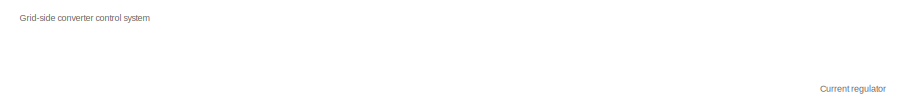
[diagram: HPW/Wind Turbine Type 4/Control/Grid-side converter Control system - part 1/3, top left region]
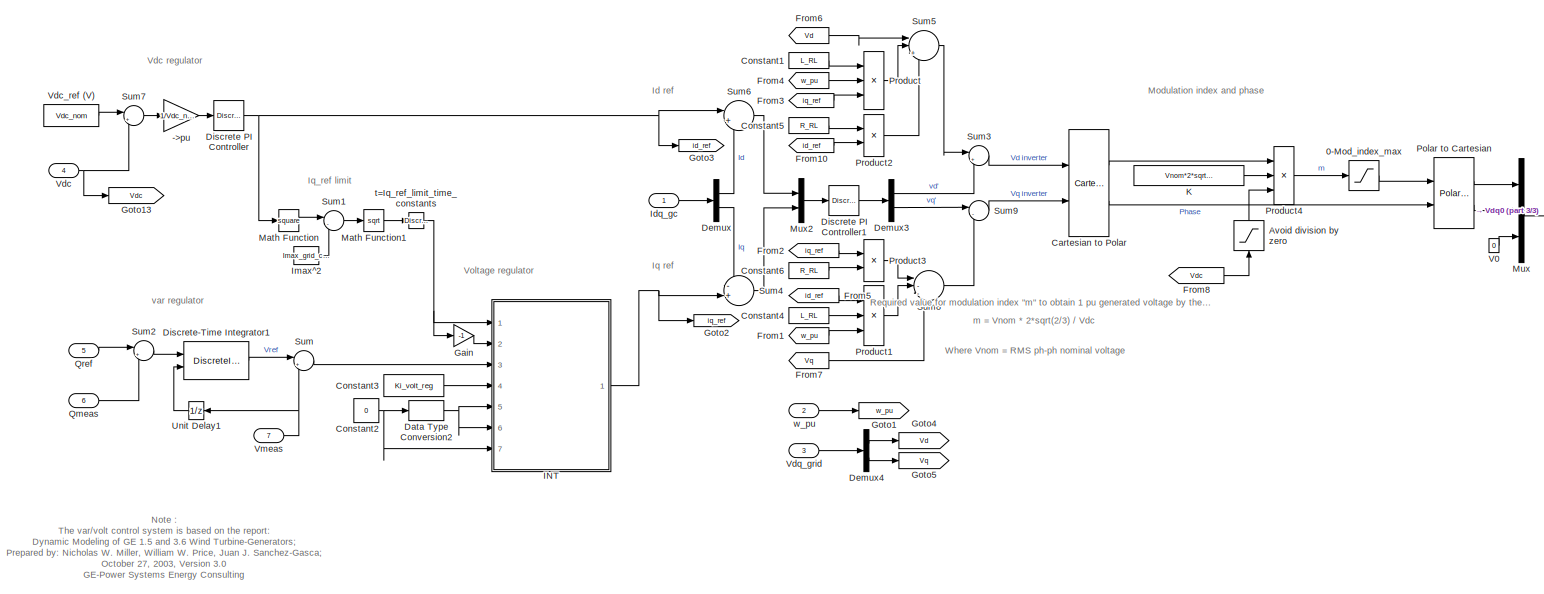
[diagram: HPW/Wind Turbine Type 4/Control/Grid-side converter Control system - part 2/3, most of the canvas]
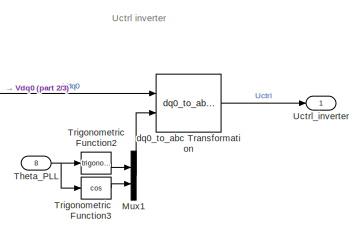
[diagram: HPW/Wind Turbine Type 4/Control/Grid-side converter Control system - part 3/3, middle right region]
BLOCK [SubSystem] HPW/Wind Turbine Type 4/Control/Grid-side converter Control system
  Ports = [8, 1]
  RequestExecContextInheritance = off
BLOCK [Gain] HPW/Wind Turbine Type 4/Control/Grid-side converter Control system/->pu
  Gain = 1/Vdc_nom
  OutDataTypeStr = Inherit: Inherit via internal rule
  ParamDataTypeStr = Inherit: Inherit via internal rule
  SaturateOnIntegerOverflow = off
BLOCK [Saturate] HPW/Wind Turbine Type 4/Control/Grid-side converter Control system/0-Mod_index_max
  InputPortMap = u0
  LowerLimit = 0
  Ports = [1, 1]
  UpperLimit = Mod_index_max
BLOCK [Saturate] HPW/Wind Turbine Type 4/Control/Grid-side converter Control system/Avoid division by zero
  InputPortMap = u0
  LowerLimit = 1e-6
  Ports = [1, 1]
  UpperLimit = 1e6
BLOCK [Reference] HPW/Wind Turbine Type 4/Control/Grid-side converter Control system/Cartesian to Polar  REF=simulink_extras/Transformations/Cartesian to
Polar
  Ports = [2, 2]
  SourceBlock = simulink_extras/Transformations/Cartesian to\nPolar
  SourceProductBaseCode = SL
  SourceProductName = Simulink
  SourceType = Cart2Polar
BLOCK [Constant] HPW/Wind Turbine Type 4/Control/Grid-side converter Control system/Constant1
  Value = L_RL
BLOCK [Constant] HPW/Wind Turbine Type 4/Control/Grid-side converter Control system/Constant2
  Value = 0
BLOCK [Constant] HPW/Wind Turbine Type 4/Control/Grid-side converter Control system/Constant3
  Value = Ki_volt_reg
BLOCK [Constant] HPW/Wind Turbine Type 4/Control/Grid-side converter Control system/Constant4
  Value = L_RL
BLOCK [Constant] HPW/Wind Turbine Type 4/Control/Grid-side converter Control system/Constant5
  Value = R_RL
BLOCK [Constant] HPW/Wind Turbine Type 4/Control/Grid-side converter Control system/Constant6
  Value = R_RL
BLOCK [DataTypeConversion] HPW/Wind Turbine Type 4/Control/Grid-side converter Control system/Data Type Conversion2
  OutDataTypeStr = boolean
  RndMeth = Floor
  SaturateOnIntegerOverflow = off
BLOCK [Demux] HPW/Wind Turbine Type 4/Control/Grid-side converter Control system/Demux
  Outputs = 2
  Ports = [1, 2]
BLOCK [Demux] HPW/Wind Turbine Type 4/Control/Grid-side converter Control system/Demux3
  Outputs = 2
  Ports = [1, 2]
BLOCK [Demux] HPW/Wind Turbine Type 4/Control/Grid-side converter Control system/Demux4
  Outputs = 2
  Ports = [1, 2]
BLOCK [Reference] HPW/Wind Turbine Type 4/Control/Grid-side converter Control system/Discrete PI Controller  REF=powerlib_extras/Discrete 
Control Blocks/Discrete
PI Controller
  Ports = [1, 1]
  SourceBlock = powerlib_extras/Discrete \nControl Blocks/Discrete\nPI Controller
  SourceProductBaseCode = PS
  SourceProductName = Simscape Electrical
  SourceType = Discrete PI Controller
BLOCK [Reference] HPW/Wind Turbine Type 4/Control/Grid-side converter Control system/Discrete PI Controller1  REF=powerlib_extras/Discrete 
Control Blocks/Discrete
PI Controller
  Ports = [1, 1]
  SourceBlock = powerlib_extras/Discrete \nControl Blocks/Discrete\nPI Controller
  SourceProductBaseCode = PS
  SourceProductName = Simscape Electrical
  SourceType = Discrete PI Controller
BLOCK [DiscreteIntegrator] HPW/Wind Turbine Type 4/Control/Grid-side converter Control system/Discrete-Time Integrator1
  ICPrevOutput = DiscIntNeverNeededParam
  ICPrevScaledInput = DiscIntNeverNeededParam
  InitialCondition = 1
  InitialConditionSource = external
  LimitOutput = on
  LowerSaturationLimit = Var_reg_output_low_limit
  Ports = [2, 1]
  SampleTime = Ts
  UpperSaturationLimit = Var_reg_output_hi_limit
  gainval = Ki_var_reg
BLOCK [From] HPW/Wind Turbine Type 4/Control/Grid-side converter Control system/From1
  CloseFcn = tagdialog Close
  GotoTag = w_pu
BLOCK [From] HPW/Wind Turbine Type 4/Control/Grid-side converter Control system/From10
  CloseFcn = tagdialog Close
  GotoTag = id_ref
BLOCK [From] HPW/Wind Turbine Type 4/Control/Grid-side converter Control system/From2
  CloseFcn = tagdialog Close
  GotoTag = iq_ref
BLOCK [From] HPW/Wind Turbine Type 4/Control/Grid-side converter Control system/From3
  CloseFcn = tagdialog Close
  GotoTag = iq_ref
BLOCK [From] HPW/Wind Turbine Type 4/Control/Grid-side converter Control system/From4
  CloseFcn = tagdialog Close
  GotoTag = w_pu
BLOCK [From] HPW/Wind Turbine Type 4/Control/Grid-side converter Control system/From5
  CloseFcn = tagdialog Close
  GotoTag = id_ref
BLOCK [From] HPW/Wind Turbine Type 4/Control/Grid-side converter Control system/From6
  CloseFcn = tagdialog Close
  GotoTag = Vd
BLOCK [From] HPW/Wind Turbine Type 4/Control/Grid-side converter Control system/From7
  CloseFcn = tagdialog Close
  GotoTag = Vq
BLOCK [From] HPW/Wind Turbine Type 4/Control/Grid-side converter Control system/From8
  CloseFcn = tagdialog Close
  GotoTag = Vdc
BLOCK [Gain] HPW/Wind Turbine Type 4/Control/Grid-side converter Control system/Gain
  Gain = -1
BLOCK [Goto] HPW/Wind Turbine Type 4/Control/Grid-side converter Control system/Goto1
  GotoTag = w_pu
BLOCK [Goto] HPW/Wind Turbine Type 4/Control/Grid-side converter Control system/Goto13
  GotoTag = Vdc
BLOCK [Goto] HPW/Wind Turbine Type 4/Control/Grid-side converter Control system/Goto2
  GotoTag = iq_ref
BLOCK [Goto] HPW/Wind Turbine Type 4/Control/Grid-side converter Control system/Goto3
  GotoTag = id_ref
BLOCK [Goto] HPW/Wind Turbine Type 4/Control/Grid-side converter Control system/Goto4
  GotoTag = Vd
BLOCK [Goto] HPW/Wind Turbine Type 4/Control/Grid-side converter Control system/Goto5
  GotoTag = Vq
BLOCK [SubSystem] HPW/Wind Turbine Type 4/Control/Grid-side converter Control system/INT
  Ports = [7, 1]
  RequestExecContextInheritance = off
BLOCK [Gain] HPW/Wind Turbine Type 4/Control/Grid-side converter Control system/INT/Gain
  Gain = Ts* 0.5
BLOCK [Inport] HPW/Wind Turbine Type 4/Control/Grid-side converter Control system/INT/Hold
  IconDisplay = Port number
  Port = 5
BLOCK [UnitDelay] HPW/Wind Turbine Type 4/Control/Grid-side converter Control system/INT/IC = 0
  HasFrameUpgradeWarning = on
  SampleTime = Ts
BLOCK [UnitDelay] HPW/Wind Turbine Type 4/Control/Grid-side converter Control system/INT/IC = i_ic
  HasFrameUpgradeWarning = on
  SampleTime = Ts
BLOCK [Inport] HPW/Wind Turbine Type 4/Control/Grid-side converter Control system/INT/In
  IconDisplay = Port number
  Port = 3
BLOCK [Inport] HPW/Wind Turbine Type 4/Control/Grid-side converter Control system/INT/Ki
  IconDisplay = Port number
  Port = 4
BLOCK [Logic] HPW/Wind Turbine Type 4/Control/Grid-side converter Control system/INT/Logical Operator4
  Operator = OR
  Ports = [2, 1]
BLOCK [Inport] HPW/Wind Turbine Type 4/Control/Grid-side converter Control system/INT/Max
  IconDisplay = Port number
BLOCK [Inport] HPW/Wind Turbine Type 4/Control/Grid-side converter Control system/INT/Min
  IconDisplay = Port number
  Port = 2
BLOCK [MinMax] HPW/Wind Turbine Type 4/Control/Grid-side converter Control system/INT/MinMax
  Inputs = 2
  Ports = [2, 1]
BLOCK [MinMax] HPW/Wind Turbine Type 4/Control/Grid-side converter Control system/INT/MinMax1
  Function = max
  Inputs = 2
  Ports = [2, 1]
BLOCK [Outport] HPW/Wind Turbine Type 4/Control/Grid-side converter Control system/INT/Out
  IconDisplay = Port number
  InitialOutput = 0
BLOCK [Product] HPW/Wind Turbine Type 4/Control/Grid-side converter Control system/INT/Product
  InputSameDT = off
  Ports = [2, 1]
  RndMeth = Floor
BLOCK [Inport] HPW/Wind Turbine Type 4/Control/Grid-side converter Control system/INT/Reset
  IconDisplay = Port number
  Port = 6
BLOCK [Inport] HPW/Wind Turbine Type 4/Control/Grid-side converter Control system/INT/Reset Value
  IconDisplay = Port number
  Port = 7
BLOCK [SubSystem] HPW/Wind Turbine Type 4/Control/Grid-side converter Control system/INT/S6
  Ports = [3, 1]
  RequestExecContextInheritance = off
BLOCK [Outport] HPW/Wind Turbine Type 4/Control/Grid-side converter Control system/INT/S6/  
  IconDisplay = Port number
  InitialOutput = 0
BLOCK [Inport] HPW/Wind Turbine Type 4/Control/Grid-side converter Control system/INT/S6/In
  IconDisplay = Port number
  Port = 2
BLOCK [Inport] HPW/Wind Turbine Type 4/Control/Grid-side converter Control system/INT/S6/MAX
  IconDisplay = Port number
BLOCK [Inport] HPW/Wind Turbine Type 4/Control/Grid-side converter Control system/INT/S6/MIN
  IconDisplay = Port number
  Port = 3
BLOCK [MinMax] HPW/Wind Turbine Type 4/Control/Grid-side converter Control system/INT/S6/MinMax
  Function = max
  Inputs = 2
  Ports = [2, 1]
BLOCK [MinMax] HPW/Wind Turbine Type 4/Control/Grid-side converter Control system/INT/S6/MinMax1
  Inputs = 2
  Ports = [2, 1]
BLOCK [Sum] HPW/Wind Turbine Type 4/Control/Grid-side converter Control system/INT/Sum
  Ports = [2, 1]
BLOCK [Sum] HPW/Wind Turbine Type 4/Control/Grid-side converter Control system/INT/Sum1
  Ports = [2, 1]
BLOCK [Switch] HPW/Wind Turbine Type 4/Control/Grid-side converter Control system/INT/Switch2
  Threshold = 0.5
BLOCK [Switch] HPW/Wind Turbine Type 4/Control/Grid-side converter Control system/INT/Switch3
  Threshold = 0.5
BLOCK [Switch] HPW/Wind Turbine Type 4/Control/Grid-side converter Control system/INT/Switch7
  Threshold = 0.5
BLOCK [Inport] HPW/Wind Turbine Type 4/Control/Grid-side converter Control system/Idq_gc
  IconDisplay = Port number
BLOCK [Constant] HPW/Wind Turbine Type 4/Control/Grid-side converter Control system/Imax^2
  Value = Imax_grid_conv^2
BLOCK [Constant] HPW/Wind Turbine Type 4/Control/Grid-side converter Control system/K
  Value = Vnom*2*sqrt(2/3)
BLOCK [Math] HPW/Wind Turbine Type 4/Control/Grid-side converter Control system/Math Function
  Operator = square
  Ports = [1, 1]
BLOCK [Math] HPW/Wind Turbine Type 4/Control/Grid-side converter Control system/Math Function1
  Operator = sqrt
  Ports = [1, 1]
BLOCK [Mux] HPW/Wind Turbine Type 4/Control/Grid-side converter Control system/Mux
  DisplayOption = bar
  Inputs = 3
  Ports = [3, 1]
BLOCK [Mux] HPW/Wind Turbine Type 4/Control/Grid-side converter Control system/Mux1
  DisplayOption = bar
  Inputs = 2
  Ports = [2, 1]
BLOCK [Mux] HPW/Wind Turbine Type 4/Control/Grid-side converter Control system/Mux2
  DisplayOption = bar
  Inputs = 2
  Ports = [2, 1]
BLOCK [Reference] HPW/Wind Turbine Type 4/Control/Grid-side converter Control system/Polar to Cartesian  REF=simulink_extras/Transformations/Polar to
Cartesian
  Ports = [2, 2]
  SourceBlock = simulink_extras/Transformations/Polar to\nCartesian
  SourceProductBaseCode = SL
  SourceProductName = Simulink
  SourceType = Polar2Cart
BLOCK [Product] HPW/Wind Turbine Type 4/Control/Grid-side converter Control system/Product
  Inputs = 3
  Ports = [3, 1]
  RndMeth = Floor
BLOCK [Product] HPW/Wind Turbine Type 4/Control/Grid-side converter Control system/Product1
  Inputs = 3
  Ports = [3, 1]
  RndMeth = Floor
BLOCK [Product] HPW/Wind Turbine Type 4/Control/Grid-side converter Control system/Product2
  Ports = [2, 1]
  RndMeth = Floor
BLOCK [Product] HPW/Wind Turbine Type 4/Control/Grid-side converter Control system/Product3
  Ports = [2, 1]
  RndMeth = Floor
BLOCK [Product] HPW/Wind Turbine Type 4/Control/Grid-side converter Control system/Product4
  Inputs = **/
  Ports = [3, 1]
  RndMeth = Floor
BLOCK [Inport] HPW/Wind Turbine Type 4/Control/Grid-side converter Control system/Qmeas
  IconDisplay = Port number
  Port = 6
BLOCK [Inport] HPW/Wind Turbine Type 4/Control/Grid-side converter Control system/Qref
  IconDisplay = Port number
  Port = 5
BLOCK [Sum] HPW/Wind Turbine Type 4/Control/Grid-side converter Control system/Sum
  IconShape = round
  Inputs = |+-
  Ports = [2, 1]
BLOCK [Sum] HPW/Wind Turbine Type 4/Control/Grid-side converter Control system/Sum1
  IconShape = round
  Inputs = |-+
  Ports = [2, 1]
BLOCK [Sum] HPW/Wind Turbine Type 4/Control/Grid-side converter Control system/Sum2
  IconShape = round
  Inputs = |+-
  Ports = [2, 1]
BLOCK [Sum] HPW/Wind Turbine Type 4/Control/Grid-side converter Control system/Sum3
  IconShape = round
  Inputs = |+-
  Ports = [2, 1]
BLOCK [Sum] HPW/Wind Turbine Type 4/Control/Grid-side converter Control system/Sum4
  IconShape = round
  Inputs = -+|
  Ports = [2, 1]
BLOCK [Sum] HPW/Wind Turbine Type 4/Control/Grid-side converter Control system/Sum5
  IconShape = round
  Inputs = ||++-
  Ports = [3, 1]
BLOCK [Sum] HPW/Wind Turbine Type 4/Control/Grid-side converter Control system/Sum6
  IconShape = round
  Inputs = |+-
  Ports = [2, 1]
BLOCK [Sum] HPW/Wind Turbine Type 4/Control/Grid-side converter Control system/Sum7
  IconShape = round
  Inputs = |+-
  Ports = [2, 1]
BLOCK [Sum] HPW/Wind Turbine Type 4/Control/Grid-side converter Control system/Sum8
  IconShape = round
  Inputs = |--+
  Ports = [3, 1]
BLOCK [Sum] HPW/Wind Turbine Type 4/Control/Grid-side converter Control system/Sum9
  IconShape = round
  Inputs = |-+
  Ports = [2, 1]
BLOCK [Inport] HPW/Wind Turbine Type 4/Control/Grid-side converter Control system/Theta_PLL
  IconDisplay = Port number
  Port = 8
BLOCK [Trigonometry] HPW/Wind Turbine Type 4/Control/Grid-side converter Control system/Trigonometric Function2
  Ports = [1, 1]
BLOCK [Trigonometry] HPW/Wind Turbine Type 4/Control/Grid-side converter Control system/Trigonometric Function3
  Operator = cos
  Ports = [1, 1]
BLOCK [Outport] HPW/Wind Turbine Type 4/Control/Grid-side converter Control system/Uctrl_inverter
  IconDisplay = Port number
BLOCK [UnitDelay] HPW/Wind Turbine Type 4/Control/Grid-side converter Control system/Unit Delay1
  HasFrameUpgradeWarning = on
  InitialCondition = 1
  SampleTime = Ts
BLOCK [Constant] HPW/Wind Turbine Type 4/Control/Grid-side converter Control system/V0
  Value = 0
BLOCK [Inport] HPW/Wind Turbine Type 4/Control/Grid-side converter Control system/Vdc
  IconDisplay = Port number
  Port = 4
BLOCK [Constant] HPW/Wind Turbine Type 4/Control/Grid-side converter Control system/Vdc_ref (V)
  Value = Vdc_nom
BLOCK [Inport] HPW/Wind Turbine Type 4/Control/Grid-side converter Control system/Vdq_grid
  IconDisplay = Port number
  Port = 3
BLOCK [Inport] HPW/Wind Turbine Type 4/Control/Grid-side converter Control system/Vmeas
  IconDisplay = Port number
  Port = 7
BLOCK [Reference] HPW/Wind Turbine Type 4/Control/Grid-side converter Control system/dq0_to_abc Transformation  REF=powerlib_extras/Measurements/dq0_to_abc
Transformation
  Ports = [2, 1]
  SourceBlock = powerlib_extras/Measurements/dq0_to_abc\nTransformation
  SourceProductBaseCode = PS
  SourceProductName = Simscape Electrical
  SourceType = dq0 to abc Transformation
BLOCK [Reference] HPW/Wind Turbine Type 4/Control/Grid-side converter Control system/t=Iq_ref_limit_time_constants  REF=powerlib_extras/Discrete 
Control Blocks/Discrete
1st-Order
Filter
  Ports = [1, 1]
  SourceBlock = powerlib_extras/Discrete \nControl Blocks/Discrete\n1st-Order\nFilter
  SourceProductBaseCode = PS
  SourceProductName = Simscape Electrical
  SourceType = Discrete 1st-Order Filter
BLOCK [Inport] HPW/Wind Turbine Type 4/Control/Grid-side converter Control system/w_pu
  IconDisplay = Port number
  Port = 2
BLOCK [Inport] HPW/Wind Turbine Type 4/Control/IL
  IconDisplay = Port number
  Port = 5
BLOCK [Inport] HPW/Wind Turbine Type 4/Control/Iabc_grid_conv
  IconDisplay = Port number
  Port = 2
BLOCK [Inport] HPW/Wind Turbine Type 4/Control/Iabc_stator
  IconDisplay = Port number
  Port = 4
BLOCK [Outport] HPW/Wind Turbine Type 4/Control/Inverter_Pulses
  IconDisplay = Port number
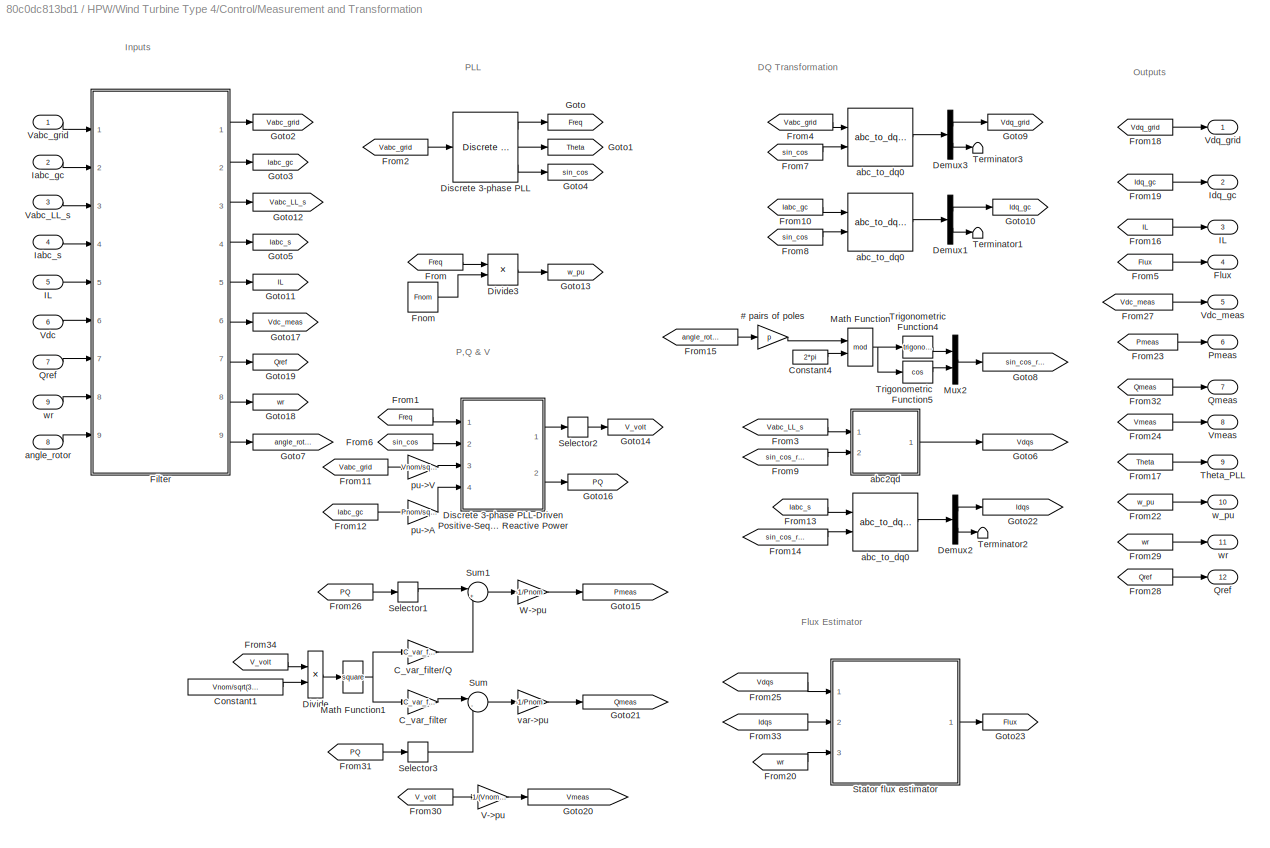
BLOCK [SubSystem] HPW/Wind Turbine Type 4/Control/Measurement and Transformation
  Ports = [9, 12]
  RequestExecContextInheritance = off
BLOCK [Reference] HPW/Wind Turbine Type 4/Control/Measurement and Transformation/   abc_to_dq0      REF=powerlib_extras/Measurements/abc_to_dq0
Transformation
  Ports = [2, 1]
  SourceBlock = powerlib_extras/Measurements/abc_to_dq0\nTransformation
  SourceProductBaseCode = PS
  SourceProductName = Simscape Electrical
  SourceType = abc to dq0 Transformation
BLOCK [Gain] HPW/Wind Turbine Type 4/Control/Measurement and Transformation/# pairs of poles
  Gain = p
BLOCK [Gain] HPW/Wind Turbine Type 4/Control/Measurement and Transformation/C_var_filter
  Gain = C_var_filter
BLOCK [Gain] HPW/Wind Turbine Type 4/Control/Measurement and Transformation/C_var_filter//Q
  Gain = C_var_filter/Q_filter
BLOCK [Constant] HPW/Wind Turbine Type 4/Control/Measurement and Transformation/Constant1
  Value = Vnom/sqrt(3)*sqrt(2)
BLOCK [Constant] HPW/Wind Turbine Type 4/Control/Measurement and Transformation/Constant4
  Value = 2*pi
BLOCK [Demux] HPW/Wind Turbine Type 4/Control/Measurement and Transformation/Demux1
  Outputs = [2 1]
  Ports = [1, 2]
BLOCK [Demux] HPW/Wind Turbine Type 4/Control/Measurement and Transformation/Demux2
  Outputs = [2 1]
  Ports = [1, 2]
BLOCK [Demux] HPW/Wind Turbine Type 4/Control/Measurement and Transformation/Demux3
  Outputs = [2 1]
  Ports = [1, 2]
BLOCK [Reference] HPW/Wind Turbine Type 4/Control/Measurement and Transformation/Discrete 3-phase PLL  REF=powerlib_extras/Discrete 
Control Blocks/Discrete
3-phase PLL
  Ports = [1, 3]
  SourceBlock = powerlib_extras/Discrete \nControl Blocks/Discrete\n3-phase PLL
  SourceProductBaseCode = PS
  SourceProductName = Simscape Electrical
  SourceType = Discrete 3-phase PLL
BLOCK [SubSystem] HPW/Wind Turbine Type 4/Control/Measurement and Transformation/Discrete 3-phase PLL-Driven Positive-Sequence Active & Reactive Power
  OpenFcn = power_openblockproxy();
  Ports = [4, 2]
  RequestExecContextInheritance = off
BLOCK [Gain] HPW/Wind Turbine Type 4/Control/Measurement and Transformation/Discrete 3-phase PLL-Driven Positive-Sequence Active & Reactive Power/Deg->Rad
  Gain = pi/180
BLOCK [SubSystem] HPW/Wind Turbine Type 4/Control/Measurement and Transformation/Discrete 3-phase PLL-Driven Positive-Sequence Active & Reactive Power/Discrete 3-phase PLL-Driven Positive-Sequence Fundamental Value
  OpenFcn = power_openblockproxy();
  Ports = [3, 2]
  RequestExecContextInheritance = off
BLOCK [Reference] HPW/Wind Turbine Type 4/Control/Measurement and Transformation/Discrete 3-phase PLL-Driven Positive-Sequence Active & Reactive Power/Discrete 3-phase PLL-Driven Positive-Sequence Fundamental Value/Cartesian to Polar  REF=simulink_extras/Transformations/Cartesian to
Polar
  Ports = [2, 2]
  SourceBlock = simulink_extras/Transformations/Cartesian to\nPolar
  SourceProductBaseCode = SL
  SourceProductName = Simulink
  SourceType = Cart2Polar
BLOCK [Demux] HPW/Wind Turbine Type 4/Control/Measurement and Transformation/Discrete 3-phase PLL-Driven Positive-Sequence Active & Reactive Power/Discrete 3-phase PLL-Driven Positive-Sequence Fundamental Value/Demux
  Outputs = 3
  Ports = [1, 3]
BLOCK [SubSystem] HPW/Wind Turbine Type 4/Control/Measurement and Transformation/Discrete 3-phase PLL-Driven Positive-Sequence Active & Reactive Power/Discrete 3-phase PLL-Driven Positive-Sequence Fundamental Value/Discrete Variable Frequency Mean value1
  OpenFcn = power_openblockproxy();
  Ports = [2, 1]
  RequestExecContextInheritance = off
BLOCK [SubSystem] HPW/Wind Turbine Type 4/Control/Measurement and Transformation/Discrete 3-phase PLL-Driven Positive-Sequence Active & Reactive Power/Discrete 3-phase PLL-Driven Positive-Sequence Fundamental Value/Discrete Variable Frequency Mean value1/Correction subsystem
  Ports = [3, 1]
  RequestExecContextInheritance = off
BLOCK [Inport] HPW/Wind Turbine Type 4/Control/Measurement and Transformation/Discrete 3-phase PLL-Driven Positive-Sequence Active & Reactive Power/Discrete 3-phase PLL-Driven Positive-Sequence Fundamental Value/Discrete Variable Frequency Mean value1/Correction subsystem/F
  IconDisplay = Port number
  Port = 2
BLOCK [Gain] HPW/Wind Turbine Type 4/Control/Measurement and Transformation/Discrete 3-phase PLL-Driven Positive-Sequence Active & Reactive Power/Discrete 3-phase PLL-Driven Positive-Sequence Fundamental Value/Discrete Variable Frequency Mean value1/Correction subsystem/Gain1
  Gain = 0.5
BLOCK [Inport] HPW/Wind Turbine Type 4/Control/Measurement and Transformation/Discrete 3-phase PLL-Driven Positive-Sequence Active & Reactive Power/Discrete 3-phase PLL-Driven Positive-Sequence Fundamental Value/Discrete Variable Frequency Mean value1/Correction subsystem/In
  IconDisplay = Port number
  Port = 3
BLOCK [Inport] HPW/Wind Turbine Type 4/Control/Measurement and Transformation/Discrete 3-phase PLL-Driven Positive-Sequence Active & Reactive Power/Discrete 3-phase PLL-Driven Positive-Sequence Fundamental Value/Discrete Variable Frequency Mean value1/Correction subsystem/N
  IconDisplay = Port number
BLOCK [Outport] HPW/Wind Turbine Type 4/Control/Measurement and Transformation/Discrete 3-phase PLL-Driven Positive-Sequence Active & Reactive Power/Discrete 3-phase PLL-Driven Positive-Sequence Fundamental Value/Discrete Variable Frequency Mean value1/Correction subsystem/Out
  IconDisplay = Port number
BLOCK [Product] HPW/Wind Turbine Type 4/Control/Measurement and Transformation/Discrete 3-phase PLL-Driven Positive-Sequence Active & Reactive Power/Discrete 3-phase PLL-Driven Positive-Sequence Fundamental Value/Discrete Variable Frequency Mean value1/Correction subsystem/Product2
  Inputs = */
  Ports = [2, 1]
  RndMeth = Floor
BLOCK [Product] HPW/Wind Turbine Type 4/Control/Measurement and Transformation/Discrete 3-phase PLL-Driven Positive-Sequence Active & Reactive Power/Discrete 3-phase PLL-Driven Positive-Sequence Fundamental Value/Discrete Variable Frequency Mean value1/Correction subsystem/Product4
  Inputs = **
  Ports = [2, 1]
  RndMeth = Floor
BLOCK [Product] HPW/Wind Turbine Type 4/Control/Measurement and Transformation/Discrete 3-phase PLL-Driven Positive-Sequence Active & Reactive Power/Discrete 3-phase PLL-Driven Positive-Sequence Fundamental Value/Discrete Variable Frequency Mean value1/Correction subsystem/Product5
  Inputs = **
  Ports = [2, 1]
  RndMeth = Floor
BLOCK [Sum] HPW/Wind Turbine Type 4/Control/Measurement and Transformation/Discrete 3-phase PLL-Driven Positive-Sequence Active & Reactive Power/Discrete 3-phase PLL-Driven Positive-Sequence Fundamental Value/Discrete Variable Frequency Mean value1/Correction subsystem/Sum1
  Inputs = +-
  Ports = [2, 1]
BLOCK [Sum] HPW/Wind Turbine Type 4/Control/Measurement and Transformation/Discrete 3-phase PLL-Driven Positive-Sequence Active & Reactive Power/Discrete 3-phase PLL-Driven Positive-Sequence Fundamental Value/Discrete Variable Frequency Mean value1/Correction subsystem/Sum4
  Ports = [2, 1]
BLOCK [Sum] HPW/Wind Turbine Type 4/Control/Measurement and Transformation/Discrete 3-phase PLL-Driven Positive-Sequence Active & Reactive Power/Discrete 3-phase PLL-Driven Positive-Sequence Fundamental Value/Discrete Variable Frequency Mean value1/Correction subsystem/Sum5
  Inputs = +-
  Ports = [2, 1]
BLOCK [UnitDelay] HPW/Wind Turbine Type 4/Control/Measurement and Transformation/Discrete 3-phase PLL-Driven Positive-Sequence Active & Reactive Power/Discrete 3-phase PLL-Driven Positive-Sequence Fundamental Value/Discrete Variable Frequency Mean value1/Correction subsystem/Unit Delay
  HasFrameUpgradeWarning = on
  SampleTime = Ts
BLOCK [SubSystem] HPW/Wind Turbine Type 4/Control/Measurement and Transformation/Discrete 3-phase PLL-Driven Positive-Sequence Active & Reactive Power/Discrete 3-phase PLL-Driven Positive-Sequence Fundamental Value/Discrete Variable Frequency Mean value1/Discrete Variable Transport Delay
  Ports = [2, 1]
  RequestExecContextInheritance = off
BLOCK [Inport] HPW/Wind Turbine Type 4/Control/Measurement and Transformation/Discrete 3-phase PLL-Driven Positive-Sequence Active & Reactive Power/Discrete 3-phase PLL-Driven Positive-Sequence Fundamental Value/Discrete Variable Frequency Mean value1/Discrete Variable Transport Delay/D
  IconDisplay = Port number
  Port = 2
BLOCK [Inport] HPW/Wind Turbine Type 4/Control/Measurement and Transformation/Discrete 3-phase PLL-Driven Positive-Sequence Active & Reactive Power/Discrete 3-phase PLL-Driven Positive-Sequence Fundamental Value/Discrete Variable Frequency Mean value1/Discrete Variable Transport Delay/In
  IconDisplay = Port number
BLOCK [Outport] HPW/Wind Turbine Type 4/Control/Measurement and Transformation/Discrete 3-phase PLL-Driven Positive-Sequence Active & Reactive Power/Discrete 3-phase PLL-Driven Positive-Sequence Fundamental Value/Discrete Variable Frequency Mean value1/Discrete Variable Transport Delay/Out
  IconDisplay = Port number
BLOCK [S-Function] HPW/Wind Turbine Type 4/Control/Measurement and Transformation/Discrete 3-phase PLL-Driven Positive-Sequence Active & Reactive Power/Discrete 3-phase PLL-Driven Positive-Sequence Fundamental Value/Discrete Variable Frequency Mean value1/Discrete Variable Transport Delay/S-Function 
  EnableBusSupport = off
  FunctionName = discreteVariableTransportDelay
  Parameters = MaxDelay,Ts,InitialValue
  Ports = [2, 1]
  SFcnIsStateOwnerBlock = off
  SFunctionDeploymentMode = off
BLOCK [Inport] HPW/Wind Turbine Type 4/Control/Measurement and Transformation/Discrete 3-phase PLL-Driven Positive-Sequence Active & Reactive Power/Discrete 3-phase PLL-Driven Positive-Sequence Fundamental Value/Discrete Variable Frequency Mean value1/Freq
  IconDisplay = Port number
  PortDimensions = 1
BLOCK [Gain] HPW/Wind Turbine Type 4/Control/Measurement and Transformation/Discrete 3-phase PLL-Driven Positive-Sequence Active & Reactive Power/Discrete 3-phase PLL-Driven Positive-Sequence Fundamental Value/Discrete Variable Frequency Mean value1/Gain
  Gain = Ts
BLOCK [Inport] HPW/Wind Turbine Type 4/Control/Measurement and Transformation/Discrete 3-phase PLL-Driven Positive-Sequence Active & Reactive Power/Discrete 3-phase PLL-Driven Positive-Sequence Fundamental Value/Discrete Variable Frequency Mean value1/In
  IconDisplay = Port number
  Port = 2
  PortDimensions = 1
BLOCK [DiscreteIntegrator] HPW/Wind Turbine Type 4/Control/Measurement and Transformation/Discrete 3-phase PLL-Driven Positive-Sequence Active & Reactive Power/Discrete 3-phase PLL-Driven Positive-Sequence Fundamental Value/Discrete Variable Frequency Mean value1/Integ4
  ICPrevOutput = DiscIntNeverNeededParam
  ICPrevScaledInput = DiscIntNeverNeededParam
  IntegratorMethod = Integration: Trapezoidal
  Ports = [1, 1]
  SampleTime = Ts
BLOCK [Outport] HPW/Wind Turbine Type 4/Control/Measurement and Transformation/Discrete 3-phase PLL-Driven Positive-Sequence Active & Reactive Power/Discrete 3-phase PLL-Driven Positive-Sequence Fundamental Value/Discrete Variable Frequency Mean value1/Mean
  IconDisplay = Port number
BLOCK [Fcn] HPW/Wind Turbine Type 4/Control/Measurement and Transformation/Discrete 3-phase PLL-Driven Positive-Sequence Active & Reactive Power/Discrete 3-phase PLL-Driven Positive-Sequence Fundamental Value/Discrete Variable Frequency Mean value1/Number of samples per cycle
  Expr = 1/u[1]/Ts
BLOCK [Product] HPW/Wind Turbine Type 4/Control/Measurement and Transformation/Discrete 3-phase PLL-Driven Positive-Sequence Active & Reactive Power/Discrete 3-phase PLL-Driven Positive-Sequence Fundamental Value/Discrete Variable Frequency Mean value1/Product
  Ports = [2, 1]
  RndMeth = Floor
BLOCK [Rounding] HPW/Wind Turbine Type 4/Control/Measurement and Transformation/Discrete 3-phase PLL-Driven Positive-Sequence Active & Reactive Power/Discrete 3-phase PLL-Driven Positive-Sequence Fundamental Value/Discrete Variable Frequency Mean value1/Rounding Function
  Operator = ceil
BLOCK [Step] HPW/Wind Turbine Type 4/Control/Measurement and Transformation/Discrete 3-phase PLL-Driven Positive-Sequence Active & Reactive Power/Discrete 3-phase PLL-Driven Positive-Sequence Fundamental Value/Discrete Variable Frequency Mean value1/Step
  SampleTime = Ts
  Time = 1/Finit
BLOCK [Sum] HPW/Wind Turbine Type 4/Control/Measurement and Transformation/Discrete 3-phase PLL-Driven Positive-Sequence Active & Reactive Power/Discrete 3-phase PLL-Driven Positive-Sequence Fundamental Value/Discrete Variable Frequency Mean value1/Sum5
  Ports = [2, 1]
BLOCK [Sum] HPW/Wind Turbine Type 4/Control/Measurement and Transformation/Discrete 3-phase PLL-Driven Positive-Sequence Active & Reactive Power/Discrete 3-phase PLL-Driven Positive-Sequence Fundamental Value/Discrete Variable Frequency Mean value1/Sum7
  Inputs = -+
  Ports = [2, 1]
BLOCK [Switch] HPW/Wind Turbine Type 4/Control/Measurement and Transformation/Discrete 3-phase PLL-Driven Positive-Sequence Active & Reactive Power/Discrete 3-phase PLL-Driven Positive-Sequence Fundamental Value/Discrete Variable Frequency Mean value1/Switch
  SaturateOnIntegerOverflow = off
  Threshold = 0.5
BLOCK [Saturate] HPW/Wind Turbine Type 4/Control/Measurement and Transformation/Discrete 3-phase PLL-Driven Positive-Sequence Active & Reactive Power/Discrete 3-phase PLL-Driven Positive-Sequence Fundamental Value/Discrete Variable Frequency Mean value1/To avoid division by zero
  InputPortMap = u0
  LowerLimit = 1e-6
  Ports = [1, 1]
  UpperLimit = 1e6
BLOCK [UnitDelay] HPW/Wind Turbine Type 4/Control/Measurement and Transformation/Discrete 3-phase PLL-Driven Positive-Sequence Active & Reactive Power/Discrete 3-phase PLL-Driven Positive-Sequence Fundamental Value/Discrete Variable Frequency Mean value1/Unit Delay
  HasFrameUpgradeWarning = on
  InitialCondition = Vinit
  SampleTime = Ts
BLOCK [SubSystem] HPW/Wind Turbine Type 4/Control/Measurement and Transformation/Discrete 3-phase PLL-Driven Positive-Sequence Active & Reactive Power/Discrete 3-phase PLL-Driven Positive-Sequence Fundamental Value/Discrete Variable Frequency Mean value2
  OpenFcn = power_openblockproxy();
  Ports = [2, 1]
  RequestExecContextInheritance = off
BLOCK [SubSystem] HPW/Wind Turbine Type 4/Control/Measurement and Transformation/Discrete 3-phase PLL-Driven Positive-Sequence Active & Reactive Power/Discrete 3-phase PLL-Driven Positive-Sequence Fundamental Value/Discrete Variable Frequency Mean value2/Correction subsystem
  Ports = [3, 1]
  RequestExecContextInheritance = off
BLOCK [Inport] HPW/Wind Turbine Type 4/Control/Measurement and Transformation/Discrete 3-phase PLL-Driven Positive-Sequence Active & Reactive Power/Discrete 3-phase PLL-Driven Positive-Sequence Fundamental Value/Discrete Variable Frequency Mean value2/Correction subsystem/F
  IconDisplay = Port number
  Port = 2
BLOCK [Gain] HPW/Wind Turbine Type 4/Control/Measurement and Transformation/Discrete 3-phase PLL-Driven Positive-Sequence Active & Reactive Power/Discrete 3-phase PLL-Driven Positive-Sequence Fundamental Value/Discrete Variable Frequency Mean value2/Correction subsystem/Gain1
  Gain = 0.5
BLOCK [Inport] HPW/Wind Turbine Type 4/Control/Measurement and Transformation/Discrete 3-phase PLL-Driven Positive-Sequence Active & Reactive Power/Discrete 3-phase PLL-Driven Positive-Sequence Fundamental Value/Discrete Variable Frequency Mean value2/Correction subsystem/In
  IconDisplay = Port number
  Port = 3
BLOCK [Inport] HPW/Wind Turbine Type 4/Control/Measurement and Transformation/Discrete 3-phase PLL-Driven Positive-Sequence Active & Reactive Power/Discrete 3-phase PLL-Driven Positive-Sequence Fundamental Value/Discrete Variable Frequency Mean value2/Correction subsystem/N
  IconDisplay = Port number
BLOCK [Outport] HPW/Wind Turbine Type 4/Control/Measurement and Transformation/Discrete 3-phase PLL-Driven Positive-Sequence Active & Reactive Power/Discrete 3-phase PLL-Driven Positive-Sequence Fundamental Value/Discrete Variable Frequency Mean value2/Correction subsystem/Out
  IconDisplay = Port number
BLOCK [Product] HPW/Wind Turbine Type 4/Control/Measurement and Transformation/Discrete 3-phase PLL-Driven Positive-Sequence Active & Reactive Power/Discrete 3-phase PLL-Driven Positive-Sequence Fundamental Value/Discrete Variable Frequency Mean value2/Correction subsystem/Product2
  Inputs = */
  Ports = [2, 1]
  RndMeth = Floor
BLOCK [Product] HPW/Wind Turbine Type 4/Control/Measurement and Transformation/Discrete 3-phase PLL-Driven Positive-Sequence Active & Reactive Power/Discrete 3-phase PLL-Driven Positive-Sequence Fundamental Value/Discrete Variable Frequency Mean value2/Correction subsystem/Product4
  Inputs = **
  Ports = [2, 1]
  RndMeth = Floor
BLOCK [Product] HPW/Wind Turbine Type 4/Control/Measurement and Transformation/Discrete 3-phase PLL-Driven Positive-Sequence Active & Reactive Power/Discrete 3-phase PLL-Driven Positive-Sequence Fundamental Value/Discrete Variable Frequency Mean value2/Correction subsystem/Product5
  Inputs = **
  Ports = [2, 1]
  RndMeth = Floor
BLOCK [Sum] HPW/Wind Turbine Type 4/Control/Measurement and Transformation/Discrete 3-phase PLL-Driven Positive-Sequence Active & Reactive Power/Discrete 3-phase PLL-Driven Positive-Sequence Fundamental Value/Discrete Variable Frequency Mean value2/Correction subsystem/Sum1
  Inputs = +-
  Ports = [2, 1]
BLOCK [Sum] HPW/Wind Turbine Type 4/Control/Measurement and Transformation/Discrete 3-phase PLL-Driven Positive-Sequence Active & Reactive Power/Discrete 3-phase PLL-Driven Positive-Sequence Fundamental Value/Discrete Variable Frequency Mean value2/Correction subsystem/Sum4
  Ports = [2, 1]
BLOCK [Sum] HPW/Wind Turbine Type 4/Control/Measurement and Transformation/Discrete 3-phase PLL-Driven Positive-Sequence Active & Reactive Power/Discrete 3-phase PLL-Driven Positive-Sequence Fundamental Value/Discrete Variable Frequency Mean value2/Correction subsystem/Sum5
  Inputs = +-
  Ports = [2, 1]
BLOCK [UnitDelay] HPW/Wind Turbine Type 4/Control/Measurement and Transformation/Discrete 3-phase PLL-Driven Positive-Sequence Active & Reactive Power/Discrete 3-phase PLL-Driven Positive-Sequence Fundamental Value/Discrete Variable Frequency Mean value2/Correction subsystem/Unit Delay
  HasFrameUpgradeWarning = on
  SampleTime = Ts
BLOCK [SubSystem] HPW/Wind Turbine Type 4/Control/Measurement and Transformation/Discrete 3-phase PLL-Driven Positive-Sequence Active & Reactive Power/Discrete 3-phase PLL-Driven Positive-Sequence Fundamental Value/Discrete Variable Frequency Mean value2/Discrete Variable Transport Delay
  Ports = [2, 1]
  RequestExecContextInheritance = off
BLOCK [Inport] HPW/Wind Turbine Type 4/Control/Measurement and Transformation/Discrete 3-phase PLL-Driven Positive-Sequence Active & Reactive Power/Discrete 3-phase PLL-Driven Positive-Sequence Fundamental Value/Discrete Variable Frequency Mean value2/Discrete Variable Transport Delay/D
  IconDisplay = Port number
  Port = 2
BLOCK [Inport] HPW/Wind Turbine Type 4/Control/Measurement and Transformation/Discrete 3-phase PLL-Driven Positive-Sequence Active & Reactive Power/Discrete 3-phase PLL-Driven Positive-Sequence Fundamental Value/Discrete Variable Frequency Mean value2/Discrete Variable Transport Delay/In
  IconDisplay = Port number
BLOCK [Outport] HPW/Wind Turbine Type 4/Control/Measurement and Transformation/Discrete 3-phase PLL-Driven Positive-Sequence Active & Reactive Power/Discrete 3-phase PLL-Driven Positive-Sequence Fundamental Value/Discrete Variable Frequency Mean value2/Discrete Variable Transport Delay/Out
  IconDisplay = Port number
BLOCK [S-Function] HPW/Wind Turbine Type 4/Control/Measurement and Transformation/Discrete 3-phase PLL-Driven Positive-Sequence Active & Reactive Power/Discrete 3-phase PLL-Driven Positive-Sequence Fundamental Value/Discrete Variable Frequency Mean value2/Discrete Variable Transport Delay/S-Function 
  EnableBusSupport = off
  FunctionName = discreteVariableTransportDelay
  Parameters = MaxDelay,Ts,InitialValue
  Ports = [2, 1]
  SFcnIsStateOwnerBlock = off
  SFunctionDeploymentMode = off
BLOCK [Inport] HPW/Wind Turbine Type 4/Control/Measurement and Transformation/Discrete 3-phase PLL-Driven Positive-Sequence Active & Reactive Power/Discrete 3-phase PLL-Driven Positive-Sequence Fundamental Value/Discrete Variable Frequency Mean value2/Freq
  IconDisplay = Port number
  PortDimensions = 1
BLOCK [Gain] HPW/Wind Turbine Type 4/Control/Measurement and Transformation/Discrete 3-phase PLL-Driven Positive-Sequence Active & Reactive Power/Discrete 3-phase PLL-Driven Positive-Sequence Fundamental Value/Discrete Variable Frequency Mean value2/Gain
  Gain = Ts
BLOCK [Inport] HPW/Wind Turbine Type 4/Control/Measurement and Transformation/Discrete 3-phase PLL-Driven Positive-Sequence Active & Reactive Power/Discrete 3-phase PLL-Driven Positive-Sequence Fundamental Value/Discrete Variable Frequency Mean value2/In
  IconDisplay = Port number
  Port = 2
  PortDimensions = 1
BLOCK [DiscreteIntegrator] HPW/Wind Turbine Type 4/Control/Measurement and Transformation/Discrete 3-phase PLL-Driven Positive-Sequence Active & Reactive Power/Discrete 3-phase PLL-Driven Positive-Sequence Fundamental Value/Discrete Variable Frequency Mean value2/Integ4
  ICPrevOutput = DiscIntNeverNeededParam
  ICPrevScaledInput = DiscIntNeverNeededParam
  IntegratorMethod = Integration: Trapezoidal
  Ports = [1, 1]
  SampleTime = Ts
BLOCK [Outport] HPW/Wind Turbine Type 4/Control/Measurement and Transformation/Discrete 3-phase PLL-Driven Positive-Sequence Active & Reactive Power/Discrete 3-phase PLL-Driven Positive-Sequence Fundamental Value/Discrete Variable Frequency Mean value2/Mean
  IconDisplay = Port number
BLOCK [Fcn] HPW/Wind Turbine Type 4/Control/Measurement and Transformation/Discrete 3-phase PLL-Driven Positive-Sequence Active & Reactive Power/Discrete 3-phase PLL-Driven Positive-Sequence Fundamental Value/Discrete Variable Frequency Mean value2/Number of samples per cycle
  Expr = 1/u[1]/Ts
BLOCK [Product] HPW/Wind Turbine Type 4/Control/Measurement and Transformation/Discrete 3-phase PLL-Driven Positive-Sequence Active & Reactive Power/Discrete 3-phase PLL-Driven Positive-Sequence Fundamental Value/Discrete Variable Frequency Mean value2/Product
  Ports = [2, 1]
  RndMeth = Floor
BLOCK [Rounding] HPW/Wind Turbine Type 4/Control/Measurement and Transformation/Discrete 3-phase PLL-Driven Positive-Sequence Active & Reactive Power/Discrete 3-phase PLL-Driven Positive-Sequence Fundamental Value/Discrete Variable Frequency Mean value2/Rounding Function
  Operator = ceil
BLOCK [Step] HPW/Wind Turbine Type 4/Control/Measurement and Transformation/Discrete 3-phase PLL-Driven Positive-Sequence Active & Reactive Power/Discrete 3-phase PLL-Driven Positive-Sequence Fundamental Value/Discrete Variable Frequency Mean value2/Step
  SampleTime = Ts
  Time = 1/Finit
BLOCK [Sum] HPW/Wind Turbine Type 4/Control/Measurement and Transformation/Discrete 3-phase PLL-Driven Positive-Sequence Active & Reactive Power/Discrete 3-phase PLL-Driven Positive-Sequence Fundamental Value/Discrete Variable Frequency Mean value2/Sum5
  Ports = [2, 1]
BLOCK [Sum] HPW/Wind Turbine Type 4/Control/Measurement and Transformation/Discrete 3-phase PLL-Driven Positive-Sequence Active & Reactive Power/Discrete 3-phase PLL-Driven Positive-Sequence Fundamental Value/Discrete Variable Frequency Mean value2/Sum7
  Inputs = -+
  Ports = [2, 1]
BLOCK [Switch] HPW/Wind Turbine Type 4/Control/Measurement and Transformation/Discrete 3-phase PLL-Driven Positive-Sequence Active & Reactive Power/Discrete 3-phase PLL-Driven Positive-Sequence Fundamental Value/Discrete Variable Frequency Mean value2/Switch
  SaturateOnIntegerOverflow = off
  Threshold = 0.5
BLOCK [Saturate] HPW/Wind Turbine Type 4/Control/Measurement and Transformation/Discrete 3-phase PLL-Driven Positive-Sequence Active & Reactive Power/Discrete 3-phase PLL-Driven Positive-Sequence Fundamental Value/Discrete Variable Frequency Mean value2/To avoid division by zero
  InputPortMap = u0
  LowerLimit = 1e-6
  Ports = [1, 1]
  UpperLimit = 1e6
BLOCK [UnitDelay] HPW/Wind Turbine Type 4/Control/Measurement and Transformation/Discrete 3-phase PLL-Driven Positive-Sequence Active & Reactive Power/Discrete 3-phase PLL-Driven Positive-Sequence Fundamental Value/Discrete Variable Frequency Mean value2/Unit Delay
  HasFrameUpgradeWarning = on
  InitialCondition = Vinit
  SampleTime = Ts
BLOCK [Inport] HPW/Wind Turbine Type 4/Control/Measurement and Transformation/Discrete 3-phase PLL-Driven Positive-Sequence Active & Reactive Power/Discrete 3-phase PLL-Driven Positive-Sequence Fundamental Value/Freq
  IconDisplay = Port number
BLOCK [Outport] HPW/Wind Turbine Type 4/Control/Measurement and Transformation/Discrete 3-phase PLL-Driven Positive-Sequence Active & Reactive Power/Discrete 3-phase PLL-Driven Positive-Sequence Fundamental Value/Mag
  IconDisplay = Port number
BLOCK [Outport] HPW/Wind Turbine Type 4/Control/Measurement and Transformation/Discrete 3-phase PLL-Driven Positive-Sequence Active & Reactive Power/Discrete 3-phase PLL-Driven Positive-Sequence Fundamental Value/Phase
  IconDisplay = Port number
  Port = 2
BLOCK [Gain] HPW/Wind Turbine Type 4/Control/Measurement and Transformation/Discrete 3-phase PLL-Driven Positive-Sequence Active & Reactive Power/Discrete 3-phase PLL-Driven Positive-Sequence Fundamental Value/Rad->Deg.
  Gain = 180/pi
BLOCK [Inport] HPW/Wind Turbine Type 4/Control/Measurement and Transformation/Discrete 3-phase PLL-Driven Positive-Sequence Active & Reactive Power/Discrete 3-phase PLL-Driven Positive-Sequence Fundamental Value/Sin_Cos
  IconDisplay = Port number
  Port = 2
  PortDimensions = 2
BLOCK [Terminator] HPW/Wind Turbine Type 4/Control/Measurement and Transformation/Discrete 3-phase PLL-Driven Positive-Sequence Active & Reactive Power/Discrete 3-phase PLL-Driven Positive-Sequence Fundamental Value/Terminator
BLOCK [Inport] HPW/Wind Turbine Type 4/Control/Measurement and Transformation/Discrete 3-phase PLL-Driven Positive-Sequence Active & Reactive Power/Discrete 3-phase PLL-Driven Positive-Sequence Fundamental Value/abc
  IconDisplay = Port number
  Port = 3
  PortDimensions = 3
BLOCK [Reference] HPW/Wind Turbine Type 4/Control/Measurement and Transformation/Discrete 3-phase PLL-Driven Positive-Sequence Active & Reactive Power/Discrete 3-phase PLL-Driven Positive-Sequence Fundamental Value/abc_to_dq0 Transformation  REF=powerlib_extras/Measurements/abc_to_dq0
Transformation
  Ports = [2, 1]
  SourceBlock = powerlib_extras/Measurements/abc_to_dq0\nTransformation
  SourceProductBaseCode = PS
  SourceProductName = Simscape Electrical
  SourceType = abc to dq0 Transformation
BLOCK [SubSystem] HPW/Wind Turbine Type 4/Control/Measurement and Transformation/Discrete 3-phase PLL-Driven Positive-Sequence Active & Reactive Power/Discrete 3-phase PLL-Driven Positive-Sequence Fundamental Value2
  OpenFcn = power_openblockproxy();
  Ports = [3, 2]
  RequestExecContextInheritance = off
BLOCK [Reference] HPW/Wind Turbine Type 4/Control/Measurement and Transformation/Discrete 3-phase PLL-Driven Positive-Sequence Active & Reactive Power/Discrete 3-phase PLL-Driven Positive-Sequence Fundamental Value2/Cartesian to Polar  REF=simulink_extras/Transformations/Cartesian to
Polar
  Ports = [2, 2]
  SourceBlock = simulink_extras/Transformations/Cartesian to\nPolar
  SourceProductBaseCode = SL
  SourceProductName = Simulink
  SourceType = Cart2Polar
BLOCK [Demux] HPW/Wind Turbine Type 4/Control/Measurement and Transformation/Discrete 3-phase PLL-Driven Positive-Sequence Active & Reactive Power/Discrete 3-phase PLL-Driven Positive-Sequence Fundamental Value2/Demux
  Outputs = 3
  Ports = [1, 3]
BLOCK [SubSystem] HPW/Wind Turbine Type 4/Control/Measurement and Transformation/Discrete 3-phase PLL-Driven Positive-Sequence Active & Reactive Power/Discrete 3-phase PLL-Driven Positive-Sequence Fundamental Value2/Discrete Variable Frequency Mean value1
  OpenFcn = power_openblockproxy();
  Ports = [2, 1]
  RequestExecContextInheritance = off
BLOCK [SubSystem] HPW/Wind Turbine Type 4/Control/Measurement and Transformation/Discrete 3-phase PLL-Driven Positive-Sequence Active & Reactive Power/Discrete 3-phase PLL-Driven Positive-Sequence Fundamental Value2/Discrete Variable Frequency Mean value1/Correction subsystem
  Ports = [3, 1]
  RequestExecContextInheritance = off
BLOCK [Inport] HPW/Wind Turbine Type 4/Control/Measurement and Transformation/Discrete 3-phase PLL-Driven Positive-Sequence Active & Reactive Power/Discrete 3-phase PLL-Driven Positive-Sequence Fundamental Value2/Discrete Variable Frequency Mean value1/Correction subsystem/F
  IconDisplay = Port number
  Port = 2
BLOCK [Gain] HPW/Wind Turbine Type 4/Control/Measurement and Transformation/Discrete 3-phase PLL-Driven Positive-Sequence Active & Reactive Power/Discrete 3-phase PLL-Driven Positive-Sequence Fundamental Value2/Discrete Variable Frequency Mean value1/Correction subsystem/Gain1
  Gain = 0.5
BLOCK [Inport] HPW/Wind Turbine Type 4/Control/Measurement and Transformation/Discrete 3-phase PLL-Driven Positive-Sequence Active & Reactive Power/Discrete 3-phase PLL-Driven Positive-Sequence Fundamental Value2/Discrete Variable Frequency Mean value1/Correction subsystem/In
  IconDisplay = Port number
  Port = 3
BLOCK [Inport] HPW/Wind Turbine Type 4/Control/Measurement and Transformation/Discrete 3-phase PLL-Driven Positive-Sequence Active & Reactive Power/Discrete 3-phase PLL-Driven Positive-Sequence Fundamental Value2/Discrete Variable Frequency Mean value1/Correction subsystem/N
  IconDisplay = Port number
BLOCK [Outport] HPW/Wind Turbine Type 4/Control/Measurement and Transformation/Discrete 3-phase PLL-Driven Positive-Sequence Active & Reactive Power/Discrete 3-phase PLL-Driven Positive-Sequence Fundamental Value2/Discrete Variable Frequency Mean value1/Correction subsystem/Out
  IconDisplay = Port number
BLOCK [Product] HPW/Wind Turbine Type 4/Control/Measurement and Transformation/Discrete 3-phase PLL-Driven Positive-Sequence Active & Reactive Power/Discrete 3-phase PLL-Driven Positive-Sequence Fundamental Value2/Discrete Variable Frequency Mean value1/Correction subsystem/Product2
  Inputs = */
  Ports = [2, 1]
  RndMeth = Floor
BLOCK [Product] HPW/Wind Turbine Type 4/Control/Measurement and Transformation/Discrete 3-phase PLL-Driven Positive-Sequence Active & Reactive Power/Discrete 3-phase PLL-Driven Positive-Sequence Fundamental Value2/Discrete Variable Frequency Mean value1/Correction subsystem/Product4
  Inputs = **
  Ports = [2, 1]
  RndMeth = Floor
BLOCK [Product] HPW/Wind Turbine Type 4/Control/Measurement and Transformation/Discrete 3-phase PLL-Driven Positive-Sequence Active & Reactive Power/Discrete 3-phase PLL-Driven Positive-Sequence Fundamental Value2/Discrete Variable Frequency Mean value1/Correction subsystem/Product5
  Inputs = **
  Ports = [2, 1]
  RndMeth = Floor
BLOCK [Sum] HPW/Wind Turbine Type 4/Control/Measurement and Transformation/Discrete 3-phase PLL-Driven Positive-Sequence Active & Reactive Power/Discrete 3-phase PLL-Driven Positive-Sequence Fundamental Value2/Discrete Variable Frequency Mean value1/Correction subsystem/Sum1
  Inputs = +-
  Ports = [2, 1]
BLOCK [Sum] HPW/Wind Turbine Type 4/Control/Measurement and Transformation/Discrete 3-phase PLL-Driven Positive-Sequence Active & Reactive Power/Discrete 3-phase PLL-Driven Positive-Sequence Fundamental Value2/Discrete Variable Frequency Mean value1/Correction subsystem/Sum4
  Ports = [2, 1]
BLOCK [Sum] HPW/Wind Turbine Type 4/Control/Measurement and Transformation/Discrete 3-phase PLL-Driven Positive-Sequence Active & Reactive Power/Discrete 3-phase PLL-Driven Positive-Sequence Fundamental Value2/Discrete Variable Frequency Mean value1/Correction subsystem/Sum5
  Inputs = +-
  Ports = [2, 1]
BLOCK [UnitDelay] HPW/Wind Turbine Type 4/Control/Measurement and Transformation/Discrete 3-phase PLL-Driven Positive-Sequence Active & Reactive Power/Discrete 3-phase PLL-Driven Positive-Sequence Fundamental Value2/Discrete Variable Frequency Mean value1/Correction subsystem/Unit Delay
  HasFrameUpgradeWarning = on
  SampleTime = Ts
BLOCK [SubSystem] HPW/Wind Turbine Type 4/Control/Measurement and Transformation/Discrete 3-phase PLL-Driven Positive-Sequence Active & Reactive Power/Discrete 3-phase PLL-Driven Positive-Sequence Fundamental Value2/Discrete Variable Frequency Mean value1/Discrete Variable Transport Delay
  Ports = [2, 1]
  RequestExecContextInheritance = off
BLOCK [Inport] HPW/Wind Turbine Type 4/Control/Measurement and Transformation/Discrete 3-phase PLL-Driven Positive-Sequence Active & Reactive Power/Discrete 3-phase PLL-Driven Positive-Sequence Fundamental Value2/Discrete Variable Frequency Mean value1/Discrete Variable Transport Delay/D
  IconDisplay = Port number
  Port = 2
BLOCK [Inport] HPW/Wind Turbine Type 4/Control/Measurement and Transformation/Discrete 3-phase PLL-Driven Positive-Sequence Active & Reactive Power/Discrete 3-phase PLL-Driven Positive-Sequence Fundamental Value2/Discrete Variable Frequency Mean value1/Discrete Variable Transport Delay/In
  IconDisplay = Port number
BLOCK [Outport] HPW/Wind Turbine Type 4/Control/Measurement and Transformation/Discrete 3-phase PLL-Driven Positive-Sequence Active & Reactive Power/Discrete 3-phase PLL-Driven Positive-Sequence Fundamental Value2/Discrete Variable Frequency Mean value1/Discrete Variable Transport Delay/Out
  IconDisplay = Port number
BLOCK [S-Function] HPW/Wind Turbine Type 4/Control/Measurement and Transformation/Discrete 3-phase PLL-Driven Positive-Sequence Active & Reactive Power/Discrete 3-phase PLL-Driven Positive-Sequence Fundamental Value2/Discrete Variable Frequency Mean value1/Discrete Variable Transport Delay/S-Function 
  EnableBusSupport = off
  FunctionName = discreteVariableTransportDelay
  Parameters = MaxDelay,Ts,InitialValue
  Ports = [2, 1]
  SFcnIsStateOwnerBlock = off
  SFunctionDeploymentMode = off
BLOCK [Inport] HPW/Wind Turbine Type 4/Control/Measurement and Transformation/Discrete 3-phase PLL-Driven Positive-Sequence Active & Reactive Power/Discrete 3-phase PLL-Driven Positive-Sequence Fundamental Value2/Discrete Variable Frequency Mean value1/Freq
  IconDisplay = Port number
  PortDimensions = 1
BLOCK [Gain] HPW/Wind Turbine Type 4/Control/Measurement and Transformation/Discrete 3-phase PLL-Driven Positive-Sequence Active & Reactive Power/Discrete 3-phase PLL-Driven Positive-Sequence Fundamental Value2/Discrete Variable Frequency Mean value1/Gain
  Gain = Ts
BLOCK [Inport] HPW/Wind Turbine Type 4/Control/Measurement and Transformation/Discrete 3-phase PLL-Driven Positive-Sequence Active & Reactive Power/Discrete 3-phase PLL-Driven Positive-Sequence Fundamental Value2/Discrete Variable Frequency Mean value1/In
  IconDisplay = Port number
  Port = 2
  PortDimensions = 1
BLOCK [DiscreteIntegrator] HPW/Wind Turbine Type 4/Control/Measurement and Transformation/Discrete 3-phase PLL-Driven Positive-Sequence Active & Reactive Power/Discrete 3-phase PLL-Driven Positive-Sequence Fundamental Value2/Discrete Variable Frequency Mean value1/Integ4
  ICPrevOutput = DiscIntNeverNeededParam
  ICPrevScaledInput = DiscIntNeverNeededParam
  IntegratorMethod = Integration: Trapezoidal
  Ports = [1, 1]
  SampleTime = Ts
BLOCK [Outport] HPW/Wind Turbine Type 4/Control/Measurement and Transformation/Discrete 3-phase PLL-Driven Positive-Sequence Active & Reactive Power/Discrete 3-phase PLL-Driven Positive-Sequence Fundamental Value2/Discrete Variable Frequency Mean value1/Mean
  IconDisplay = Port number
BLOCK [Fcn] HPW/Wind Turbine Type 4/Control/Measurement and Transformation/Discrete 3-phase PLL-Driven Positive-Sequence Active & Reactive Power/Discrete 3-phase PLL-Driven Positive-Sequence Fundamental Value2/Discrete Variable Frequency Mean value1/Number of samples per cycle
  Expr = 1/u[1]/Ts
BLOCK [Product] HPW/Wind Turbine Type 4/Control/Measurement and Transformation/Discrete 3-phase PLL-Driven Positive-Sequence Active & Reactive Power/Discrete 3-phase PLL-Driven Positive-Sequence Fundamental Value2/Discrete Variable Frequency Mean value1/Product
  Ports = [2, 1]
  RndMeth = Floor
BLOCK [Rounding] HPW/Wind Turbine Type 4/Control/Measurement and Transformation/Discrete 3-phase PLL-Driven Positive-Sequence Active & Reactive Power/Discrete 3-phase PLL-Driven Positive-Sequence Fundamental Value2/Discrete Variable Frequency Mean value1/Rounding Function
  Operator = ceil
BLOCK [Step] HPW/Wind Turbine Type 4/Control/Measurement and Transformation/Discrete 3-phase PLL-Driven Positive-Sequence Active & Reactive Power/Discrete 3-phase PLL-Driven Positive-Sequence Fundamental Value2/Discrete Variable Frequency Mean value1/Step
  SampleTime = Ts
  Time = 1/Finit
BLOCK [Sum] HPW/Wind Turbine Type 4/Control/Measurement and Transformation/Discrete 3-phase PLL-Driven Positive-Sequence Active & Reactive Power/Discrete 3-phase PLL-Driven Positive-Sequence Fundamental Value2/Discrete Variable Frequency Mean value1/Sum5
  Ports = [2, 1]
BLOCK [Sum] HPW/Wind Turbine Type 4/Control/Measurement and Transformation/Discrete 3-phase PLL-Driven Positive-Sequence Active & Reactive Power/Discrete 3-phase PLL-Driven Positive-Sequence Fundamental Value2/Discrete Variable Frequency Mean value1/Sum7
  Inputs = -+
  Ports = [2, 1]
BLOCK [Switch] HPW/Wind Turbine Type 4/Control/Measurement and Transformation/Discrete 3-phase PLL-Driven Positive-Sequence Active & Reactive Power/Discrete 3-phase PLL-Driven Positive-Sequence Fundamental Value2/Discrete Variable Frequency Mean value1/Switch
  SaturateOnIntegerOverflow = off
  Threshold = 0.5
BLOCK [Saturate] HPW/Wind Turbine Type 4/Control/Measurement and Transformation/Discrete 3-phase PLL-Driven Positive-Sequence Active & Reactive Power/Discrete 3-phase PLL-Driven Positive-Sequence Fundamental Value2/Discrete Variable Frequency Mean value1/To avoid division by zero
  InputPortMap = u0
  LowerLimit = 1e-6
  Ports = [1, 1]
  UpperLimit = 1e6
BLOCK [UnitDelay] HPW/Wind Turbine Type 4/Control/Measurement and Transformation/Discrete 3-phase PLL-Driven Positive-Sequence Active & Reactive Power/Discrete 3-phase PLL-Driven Positive-Sequence Fundamental Value2/Discrete Variable Frequency Mean value1/Unit Delay
  HasFrameUpgradeWarning = on
  InitialCondition = Vinit
  SampleTime = Ts
BLOCK [SubSystem] HPW/Wind Turbine Type 4/Control/Measurement and Transformation/Discrete 3-phase PLL-Driven Positive-Sequence Active & Reactive Power/Discrete 3-phase PLL-Driven Positive-Sequence Fundamental Value2/Discrete Variable Frequency Mean value2
  OpenFcn = power_openblockproxy();
  Ports = [2, 1]
  RequestExecContextInheritance = off
BLOCK [SubSystem] HPW/Wind Turbine Type 4/Control/Measurement and Transformation/Discrete 3-phase PLL-Driven Positive-Sequence Active & Reactive Power/Discrete 3-phase PLL-Driven Positive-Sequence Fundamental Value2/Discrete Variable Frequency Mean value2/Correction subsystem
  Ports = [3, 1]
  RequestExecContextInheritance = off
BLOCK [Inport] HPW/Wind Turbine Type 4/Control/Measurement and Transformation/Discrete 3-phase PLL-Driven Positive-Sequence Active & Reactive Power/Discrete 3-phase PLL-Driven Positive-Sequence Fundamental Value2/Discrete Variable Frequency Mean value2/Correction subsystem/F
  IconDisplay = Port number
  Port = 2
BLOCK [Gain] HPW/Wind Turbine Type 4/Control/Measurement and Transformation/Discrete 3-phase PLL-Driven Positive-Sequence Active & Reactive Power/Discrete 3-phase PLL-Driven Positive-Sequence Fundamental Value2/Discrete Variable Frequency Mean value2/Correction subsystem/Gain1
  Gain = 0.5
BLOCK [Inport] HPW/Wind Turbine Type 4/Control/Measurement and Transformation/Discrete 3-phase PLL-Driven Positive-Sequence Active & Reactive Power/Discrete 3-phase PLL-Driven Positive-Sequence Fundamental Value2/Discrete Variable Frequency Mean value2/Correction subsystem/In
  IconDisplay = Port number
  Port = 3
BLOCK [Inport] HPW/Wind Turbine Type 4/Control/Measurement and Transformation/Discrete 3-phase PLL-Driven Positive-Sequence Active & Reactive Power/Discrete 3-phase PLL-Driven Positive-Sequence Fundamental Value2/Discrete Variable Frequency Mean value2/Correction subsystem/N
  IconDisplay = Port number
BLOCK [Outport] HPW/Wind Turbine Type 4/Control/Measurement and Transformation/Discrete 3-phase PLL-Driven Positive-Sequence Active & Reactive Power/Discrete 3-phase PLL-Driven Positive-Sequence Fundamental Value2/Discrete Variable Frequency Mean value2/Correction subsystem/Out
  IconDisplay = Port number
BLOCK [Product] HPW/Wind Turbine Type 4/Control/Measurement and Transformation/Discrete 3-phase PLL-Driven Positive-Sequence Active & Reactive Power/Discrete 3-phase PLL-Driven Positive-Sequence Fundamental Value2/Discrete Variable Frequency Mean value2/Correction subsystem/Product2
  Inputs = */
  Ports = [2, 1]
  RndMeth = Floor
BLOCK [Product] HPW/Wind Turbine Type 4/Control/Measurement and Transformation/Discrete 3-phase PLL-Driven Positive-Sequence Active & Reactive Power/Discrete 3-phase PLL-Driven Positive-Sequence Fundamental Value2/Discrete Variable Frequency Mean value2/Correction subsystem/Product4
  Inputs = **
  Ports = [2, 1]
  RndMeth = Floor
BLOCK [Product] HPW/Wind Turbine Type 4/Control/Measurement and Transformation/Discrete 3-phase PLL-Driven Positive-Sequence Active & Reactive Power/Discrete 3-phase PLL-Driven Positive-Sequence Fundamental Value2/Discrete Variable Frequency Mean value2/Correction subsystem/Product5
  Inputs = **
  Ports = [2, 1]
  RndMeth = Floor
BLOCK [Sum] HPW/Wind Turbine Type 4/Control/Measurement and Transformation/Discrete 3-phase PLL-Driven Positive-Sequence Active & Reactive Power/Discrete 3-phase PLL-Driven Positive-Sequence Fundamental Value2/Discrete Variable Frequency Mean value2/Correction subsystem/Sum1
  Inputs = +-
  Ports = [2, 1]
BLOCK [Sum] HPW/Wind Turbine Type 4/Control/Measurement and Transformation/Discrete 3-phase PLL-Driven Positive-Sequence Active & Reactive Power/Discrete 3-phase PLL-Driven Positive-Sequence Fundamental Value2/Discrete Variable Frequency Mean value2/Correction subsystem/Sum4
  Ports = [2, 1]
BLOCK [Sum] HPW/Wind Turbine Type 4/Control/Measurement and Transformation/Discrete 3-phase PLL-Driven Positive-Sequence Active & Reactive Power/Discrete 3-phase PLL-Driven Positive-Sequence Fundamental Value2/Discrete Variable Frequency Mean value2/Correction subsystem/Sum5
  Inputs = +-
  Ports = [2, 1]
BLOCK [UnitDelay] HPW/Wind Turbine Type 4/Control/Measurement and Transformation/Discrete 3-phase PLL-Driven Positive-Sequence Active & Reactive Power/Discrete 3-phase PLL-Driven Positive-Sequence Fundamental Value2/Discrete Variable Frequency Mean value2/Correction subsystem/Unit Delay
  HasFrameUpgradeWarning = on
  SampleTime = Ts
BLOCK [SubSystem] HPW/Wind Turbine Type 4/Control/Measurement and Transformation/Discrete 3-phase PLL-Driven Positive-Sequence Active & Reactive Power/Discrete 3-phase PLL-Driven Positive-Sequence Fundamental Value2/Discrete Variable Frequency Mean value2/Discrete Variable Transport Delay
  Ports = [2, 1]
  RequestExecContextInheritance = off
BLOCK [Inport] HPW/Wind Turbine Type 4/Control/Measurement and Transformation/Discrete 3-phase PLL-Driven Positive-Sequence Active & Reactive Power/Discrete 3-phase PLL-Driven Positive-Sequence Fundamental Value2/Discrete Variable Frequency Mean value2/Discrete Variable Transport Delay/D
  IconDisplay = Port number
  Port = 2
BLOCK [Inport] HPW/Wind Turbine Type 4/Control/Measurement and Transformation/Discrete 3-phase PLL-Driven Positive-Sequence Active & Reactive Power/Discrete 3-phase PLL-Driven Positive-Sequence Fundamental Value2/Discrete Variable Frequency Mean value2/Discrete Variable Transport Delay/In
  IconDisplay = Port number
BLOCK [Outport] HPW/Wind Turbine Type 4/Control/Measurement and Transformation/Discrete 3-phase PLL-Driven Positive-Sequence Active & Reactive Power/Discrete 3-phase PLL-Driven Positive-Sequence Fundamental Value2/Discrete Variable Frequency Mean value2/Discrete Variable Transport Delay/Out
  IconDisplay = Port number
BLOCK [S-Function] HPW/Wind Turbine Type 4/Control/Measurement and Transformation/Discrete 3-phase PLL-Driven Positive-Sequence Active & Reactive Power/Discrete 3-phase PLL-Driven Positive-Sequence Fundamental Value2/Discrete Variable Frequency Mean value2/Discrete Variable Transport Delay/S-Function 
  EnableBusSupport = off
  FunctionName = discreteVariableTransportDelay
  Parameters = MaxDelay,Ts,InitialValue
  Ports = [2, 1]
  SFcnIsStateOwnerBlock = off
  SFunctionDeploymentMode = off
BLOCK [Inport] HPW/Wind Turbine Type 4/Control/Measurement and Transformation/Discrete 3-phase PLL-Driven Positive-Sequence Active & Reactive Power/Discrete 3-phase PLL-Driven Positive-Sequence Fundamental Value2/Discrete Variable Frequency Mean value2/Freq
  IconDisplay = Port number
  PortDimensions = 1
BLOCK [Gain] HPW/Wind Turbine Type 4/Control/Measurement and Transformation/Discrete 3-phase PLL-Driven Positive-Sequence Active & Reactive Power/Discrete 3-phase PLL-Driven Positive-Sequence Fundamental Value2/Discrete Variable Frequency Mean value2/Gain
  Gain = Ts
BLOCK [Inport] HPW/Wind Turbine Type 4/Control/Measurement and Transformation/Discrete 3-phase PLL-Driven Positive-Sequence Active & Reactive Power/Discrete 3-phase PLL-Driven Positive-Sequence Fundamental Value2/Discrete Variable Frequency Mean value2/In
  IconDisplay = Port number
  Port = 2
  PortDimensions = 1
BLOCK [DiscreteIntegrator] HPW/Wind Turbine Type 4/Control/Measurement and Transformation/Discrete 3-phase PLL-Driven Positive-Sequence Active & Reactive Power/Discrete 3-phase PLL-Driven Positive-Sequence Fundamental Value2/Discrete Variable Frequency Mean value2/Integ4
  ICPrevOutput = DiscIntNeverNeededParam
  ICPrevScaledInput = DiscIntNeverNeededParam
  IntegratorMethod = Integration: Trapezoidal
  Ports = [1, 1]
  SampleTime = Ts
BLOCK [Outport] HPW/Wind Turbine Type 4/Control/Measurement and Transformation/Discrete 3-phase PLL-Driven Positive-Sequence Active & Reactive Power/Discrete 3-phase PLL-Driven Positive-Sequence Fundamental Value2/Discrete Variable Frequency Mean value2/Mean
  IconDisplay = Port number
BLOCK [Fcn] HPW/Wind Turbine Type 4/Control/Measurement and Transformation/Discrete 3-phase PLL-Driven Positive-Sequence Active & Reactive Power/Discrete 3-phase PLL-Driven Positive-Sequence Fundamental Value2/Discrete Variable Frequency Mean value2/Number of samples per cycle
  Expr = 1/u[1]/Ts
BLOCK [Product] HPW/Wind Turbine Type 4/Control/Measurement and Transformation/Discrete 3-phase PLL-Driven Positive-Sequence Active & Reactive Power/Discrete 3-phase PLL-Driven Positive-Sequence Fundamental Value2/Discrete Variable Frequency Mean value2/Product
  Ports = [2, 1]
  RndMeth = Floor
BLOCK [Rounding] HPW/Wind Turbine Type 4/Control/Measurement and Transformation/Discrete 3-phase PLL-Driven Positive-Sequence Active & Reactive Power/Discrete 3-phase PLL-Driven Positive-Sequence Fundamental Value2/Discrete Variable Frequency Mean value2/Rounding Function
  Operator = ceil
BLOCK [Step] HPW/Wind Turbine Type 4/Control/Measurement and Transformation/Discrete 3-phase PLL-Driven Positive-Sequence Active & Reactive Power/Discrete 3-phase PLL-Driven Positive-Sequence Fundamental Value2/Discrete Variable Frequency Mean value2/Step
  SampleTime = Ts
  Time = 1/Finit
BLOCK [Sum] HPW/Wind Turbine Type 4/Control/Measurement and Transformation/Discrete 3-phase PLL-Driven Positive-Sequence Active & Reactive Power/Discrete 3-phase PLL-Driven Positive-Sequence Fundamental Value2/Discrete Variable Frequency Mean value2/Sum5
  Ports = [2, 1]
BLOCK [Sum] HPW/Wind Turbine Type 4/Control/Measurement and Transformation/Discrete 3-phase PLL-Driven Positive-Sequence Active & Reactive Power/Discrete 3-phase PLL-Driven Positive-Sequence Fundamental Value2/Discrete Variable Frequency Mean value2/Sum7
  Inputs = -+
  Ports = [2, 1]
BLOCK [Switch] HPW/Wind Turbine Type 4/Control/Measurement and Transformation/Discrete 3-phase PLL-Driven Positive-Sequence Active & Reactive Power/Discrete 3-phase PLL-Driven Positive-Sequence Fundamental Value2/Discrete Variable Frequency Mean value2/Switch
  SaturateOnIntegerOverflow = off
  Threshold = 0.5
BLOCK [Saturate] HPW/Wind Turbine Type 4/Control/Measurement and Transformation/Discrete 3-phase PLL-Driven Positive-Sequence Active & Reactive Power/Discrete 3-phase PLL-Driven Positive-Sequence Fundamental Value2/Discrete Variable Frequency Mean value2/To avoid division by zero
  InputPortMap = u0
  LowerLimit = 1e-6
  Ports = [1, 1]
  UpperLimit = 1e6
BLOCK [UnitDelay] HPW/Wind Turbine Type 4/Control/Measurement and Transformation/Discrete 3-phase PLL-Driven Positive-Sequence Active & Reactive Power/Discrete 3-phase PLL-Driven Positive-Sequence Fundamental Value2/Discrete Variable Frequency Mean value2/Unit Delay
  HasFrameUpgradeWarning = on
  InitialCondition = Vinit
  SampleTime = Ts
BLOCK [Inport] HPW/Wind Turbine Type 4/Control/Measurement and Transformation/Discrete 3-phase PLL-Driven Positive-Sequence Active & Reactive Power/Discrete 3-phase PLL-Driven Positive-Sequence Fundamental Value2/Freq
  IconDisplay = Port number
BLOCK [Outport] HPW/Wind Turbine Type 4/Control/Measurement and Transformation/Discrete 3-phase PLL-Driven Positive-Sequence Active & Reactive Power/Discrete 3-phase PLL-Driven Positive-Sequence Fundamental Value2/Mag
  IconDisplay = Port number
BLOCK [Outport] HPW/Wind Turbine Type 4/Control/Measurement and Transformation/Discrete 3-phase PLL-Driven Positive-Sequence Active & Reactive Power/Discrete 3-phase PLL-Driven Positive-Sequence Fundamental Value2/Phase
  IconDisplay = Port number
  Port = 2
BLOCK [Gain] HPW/Wind Turbine Type 4/Control/Measurement and Transformation/Discrete 3-phase PLL-Driven Positive-Sequence Active & Reactive Power/Discrete 3-phase PLL-Driven Positive-Sequence Fundamental Value2/Rad->Deg.
  Gain = 180/pi
BLOCK [Inport] HPW/Wind Turbine Type 4/Control/Measurement and Transformation/Discrete 3-phase PLL-Driven Positive-Sequence Active & Reactive Power/Discrete 3-phase PLL-Driven Positive-Sequence Fundamental Value2/Sin_Cos
  IconDisplay = Port number
  Port = 2
  PortDimensions = 2
BLOCK [Terminator] HPW/Wind Turbine Type 4/Control/Measurement and Transformation/Discrete 3-phase PLL-Driven Positive-Sequence Active & Reactive Power/Discrete 3-phase PLL-Driven Positive-Sequence Fundamental Value2/Terminator
BLOCK [Inport] HPW/Wind Turbine Type 4/Control/Measurement and Transformation/Discrete 3-phase PLL-Driven Positive-Sequence Active & Reactive Power/Discrete 3-phase PLL-Driven Positive-Sequence Fundamental Value2/abc
  IconDisplay = Port number
  Port = 3
  PortDimensions = 3
BLOCK [Reference] HPW/Wind Turbine Type 4/Control/Measurement and Transformation/Discrete 3-phase PLL-Driven Positive-Sequence Active & Reactive Power/Discrete 3-phase PLL-Driven Positive-Sequence Fundamental Value2/abc_to_dq0 Transformation  REF=powerlib_extras/Measurements/abc_to_dq0
Transformation
  Ports = [2, 1]
  SourceBlock = powerlib_extras/Measurements/abc_to_dq0\nTransformation
  SourceProductBaseCode = PS
  SourceProductName = Simscape Electrical
  SourceType = abc to dq0 Transformation
BLOCK [Inport] HPW/Wind Turbine Type 4/Control/Measurement and Transformation/Discrete 3-phase PLL-Driven Positive-Sequence Active & Reactive Power/Freq
  IconDisplay = Port number
  PortDimensions = 1
BLOCK [Gain] HPW/Wind Turbine Type 4/Control/Measurement and Transformation/Discrete 3-phase PLL-Driven Positive-Sequence Active & Reactive Power/Gain1
  Gain = 3/2
BLOCK [Inport] HPW/Wind Turbine Type 4/Control/Measurement and Transformation/Discrete 3-phase PLL-Driven Positive-Sequence Active & Reactive Power/Iabc
  IconDisplay = Port number
  Port = 4
  PortDimensions = 3
BLOCK [Outport] HPW/Wind Turbine Type 4/Control/Measurement and Transformation/Discrete 3-phase PLL-Driven Positive-Sequence Active & Reactive Power/Mag_V_I
  IconDisplay = Port number
BLOCK [Mux] HPW/Wind Turbine Type 4/Control/Measurement and Transformation/Discrete 3-phase PLL-Driven Positive-Sequence Active & Reactive Power/Mux2
  DisplayOption = bar
  Inputs = 2
  Ports = [2, 1]
BLOCK [Mux] HPW/Wind Turbine Type 4/Control/Measurement and Transformation/Discrete 3-phase PLL-Driven Positive-Sequence Active & Reactive Power/Mux3
  DisplayOption = bar
  Inputs = 2
  Ports = [2, 1]
BLOCK [Outport] HPW/Wind Turbine Type 4/Control/Measurement and Transformation/Discrete 3-phase PLL-Driven Positive-Sequence Active & Reactive Power/P_Q
  IconDisplay = Port number
  Port = 2
BLOCK [Product] HPW/Wind Turbine Type 4/Control/Measurement and Transformation/Discrete 3-phase PLL-Driven Positive-Sequence Active & Reactive Power/Product
  Ports = [2, 1]
  RndMeth = Floor
BLOCK [Product] HPW/Wind Turbine Type 4/Control/Measurement and Transformation/Discrete 3-phase PLL-Driven Positive-Sequence Active & Reactive Power/Product1
  Ports = [2, 1]
  RndMeth = Floor
BLOCK [Product] HPW/Wind Turbine Type 4/Control/Measurement and Transformation/Discrete 3-phase PLL-Driven Positive-Sequence Active & Reactive Power/Product2
  Ports = [2, 1]
  RndMeth = Floor
BLOCK [Inport] HPW/Wind Turbine Type 4/Control/Measurement and Transformation/Discrete 3-phase PLL-Driven Positive-Sequence Active & Reactive Power/Sin_Cos
  IconDisplay = Port number
  Port = 2
  PortDimensions = 2
BLOCK [Sum] HPW/Wind Turbine Type 4/Control/Measurement and Transformation/Discrete 3-phase PLL-Driven Positive-Sequence Active & Reactive Power/Sum
  Inputs = +-
  Ports = [2, 1]
BLOCK [Trigonometry] HPW/Wind Turbine Type 4/Control/Measurement and Transformation/Discrete 3-phase PLL-Driven Positive-Sequence Active & Reactive Power/Trigonometric Function
  Ports = [1, 1]
BLOCK [Trigonometry] HPW/Wind Turbine Type 4/Control/Measurement and Transformation/Discrete 3-phase PLL-Driven Positive-Sequence Active & Reactive Power/Trigonometric Function1
  Operator = cos
  Ports = [1, 1]
BLOCK [Inport] HPW/Wind Turbine Type 4/Control/Measurement and Transformation/Discrete 3-phase PLL-Driven Positive-Sequence Active & Reactive Power/Vabc
  IconDisplay = Port number
  Port = 3
  PortDimensions = 3
BLOCK [Product] HPW/Wind Turbine Type 4/Control/Measurement and Transformation/Divide
  InputSameDT = off
  Inputs = */
  OutDataTypeStr = Inherit: Inherit via internal rule
  Ports = [2, 1]
  RndMeth = Floor
  SaturateOnIntegerOverflow = off
BLOCK [Product] HPW/Wind Turbine Type 4/Control/Measurement and Transformation/Divide3
  InputSameDT = off
  Inputs = */
  OutDataTypeStr = Inherit: Inherit via internal rule
  Ports = [2, 1]
  RndMeth = Floor
  SaturateOnIntegerOverflow = off
BLOCK [SubSystem] HPW/Wind Turbine Type 4/Control/Measurement and Transformation/Filter
  Ports = [9, 9]
  RequestExecContextInheritance = off
BLOCK [Demux] HPW/Wind Turbine Type 4/Control/Measurement and Transformation/Filter/Demux
  Outputs = 3
  Ports = [1, 3]
BLOCK [Demux] HPW/Wind Turbine Type 4/Control/Measurement and Transformation/Filter/Demux1
  Outputs = 3
  Ports = [1, 3]
BLOCK [Demux] HPW/Wind Turbine Type 4/Control/Measurement and Transformation/Filter/Demux2
  Outputs = 3
  Ports = [1, 3]
BLOCK [Demux] HPW/Wind Turbine Type 4/Control/Measurement and Transformation/Filter/Demux3
  Outputs = 3
  Ports = [1, 3]
BLOCK [Reference] HPW/Wind Turbine Type 4/Control/Measurement and Transformation/Filter/Discrete 2nd-Order Filter1  REF=powerlib_extras/Discrete 
Control Blocks/Discrete 
2nd-Order
Filter
  Ports = [1, 1]
  SourceBlock = powerlib_extras/Discrete \nControl Blocks/Discrete \n2nd-Order\nFilter
  SourceProductBaseCode = PS
  SourceProductName = Simscape Electrical
  SourceType = Discrete 2nd-Order Filter
BLOCK [Reference] HPW/Wind Turbine Type 4/Control/Measurement and Transformation/Filter/Discrete 2nd-Order Filter10  REF=powerlib_extras/Discrete 
Control Blocks/Discrete 
2nd-Order
Filter
  Ports = [1, 1]
  SourceBlock = powerlib_extras/Discrete \nControl Blocks/Discrete \n2nd-Order\nFilter
  SourceProductBaseCode = PS
  SourceProductName = Simscape Electrical
  SourceType = Discrete 2nd-Order Filter
BLOCK [Reference] HPW/Wind Turbine Type 4/Control/Measurement and Transformation/Filter/Discrete 2nd-Order Filter11  REF=powerlib_extras/Discrete 
Control Blocks/Discrete 
2nd-Order
Filter
  Ports = [1, 1]
  SourceBlock = powerlib_extras/Discrete \nControl Blocks/Discrete \n2nd-Order\nFilter
  SourceProductBaseCode = PS
  SourceProductName = Simscape Electrical
  SourceType = Discrete 2nd-Order Filter
BLOCK [Reference] HPW/Wind Turbine Type 4/Control/Measurement and Transformation/Filter/Discrete 2nd-Order Filter12  REF=powerlib_extras/Discrete 
Control Blocks/Discrete 
2nd-Order
Filter
  Ports = [1, 1]
  SourceBlock = powerlib_extras/Discrete \nControl Blocks/Discrete \n2nd-Order\nFilter
  SourceProductBaseCode = PS
  SourceProductName = Simscape Electrical
  SourceType = Discrete 2nd-Order Filter
BLOCK [Reference] HPW/Wind Turbine Type 4/Control/Measurement and Transformation/Filter/Discrete 2nd-Order Filter13  REF=powerlib_extras/Discrete 
Control Blocks/Discrete 
2nd-Order
Filter
  Ports = [1, 1]
  SourceBlock = powerlib_extras/Discrete \nControl Blocks/Discrete \n2nd-Order\nFilter
  SourceProductBaseCode = PS
  SourceProductName = Simscape Electrical
  SourceType = Discrete 2nd-Order Filter
BLOCK [Reference] HPW/Wind Turbine Type 4/Control/Measurement and Transformation/Filter/Discrete 2nd-Order Filter14  REF=powerlib_extras/Discrete 
Control Blocks/Discrete 
2nd-Order
Filter
  Ports = [1, 1]
  SourceBlock = powerlib_extras/Discrete \nControl Blocks/Discrete \n2nd-Order\nFilter
  SourceProductBaseCode = PS
  SourceProductName = Simscape Electrical
  SourceType = Discrete 2nd-Order Filter
BLOCK [Reference] HPW/Wind Turbine Type 4/Control/Measurement and Transformation/Filter/Discrete 2nd-Order Filter15  REF=powerlib_extras/Discrete 
Control Blocks/Discrete 
2nd-Order
Filter
  Ports = [1, 1]
  SourceBlock = powerlib_extras/Discrete \nControl Blocks/Discrete \n2nd-Order\nFilter
  SourceProductBaseCode = PS
  SourceProductName = Simscape Electrical
  SourceType = Discrete 2nd-Order Filter
BLOCK [Reference] HPW/Wind Turbine Type 4/Control/Measurement and Transformation/Filter/Discrete 2nd-Order Filter16  REF=powerlib_extras/Discrete 
Control Blocks/Discrete 
2nd-Order
Filter
  Ports = [1, 1]
  SourceBlock = powerlib_extras/Discrete \nControl Blocks/Discrete \n2nd-Order\nFilter
  SourceProductBaseCode = PS
  SourceProductName = Simscape Electrical
  SourceType = Discrete 2nd-Order Filter
BLOCK [Reference] HPW/Wind Turbine Type 4/Control/Measurement and Transformation/Filter/Discrete 2nd-Order Filter17  REF=powerlib_extras/Discrete 
Control Blocks/Discrete 
2nd-Order
Filter
  Ports = [1, 1]
  SourceBlock = powerlib_extras/Discrete \nControl Blocks/Discrete \n2nd-Order\nFilter
  SourceProductBaseCode = PS
  SourceProductName = Simscape Electrical
  SourceType = Discrete 2nd-Order Filter
BLOCK [Reference] HPW/Wind Turbine Type 4/Control/Measurement and Transformation/Filter/Discrete 2nd-Order Filter2  REF=powerlib_extras/Discrete 
Control Blocks/Discrete 
2nd-Order
Filter
  Ports = [1, 1]
  SourceBlock = powerlib_extras/Discrete \nControl Blocks/Discrete \n2nd-Order\nFilter
  SourceProductBaseCode = PS
  SourceProductName = Simscape Electrical
  SourceType = Discrete 2nd-Order Filter
BLOCK [Reference] HPW/Wind Turbine Type 4/Control/Measurement and Transformation/Filter/Discrete 2nd-Order Filter3  REF=powerlib_extras/Discrete 
Control Blocks/Discrete 
2nd-Order
Filter
  Ports = [1, 1]
  SourceBlock = powerlib_extras/Discrete \nControl Blocks/Discrete \n2nd-Order\nFilter
  SourceProductBaseCode = PS
  SourceProductName = Simscape Electrical
  SourceType = Discrete 2nd-Order Filter
BLOCK [Reference] HPW/Wind Turbine Type 4/Control/Measurement and Transformation/Filter/Discrete 2nd-Order Filter4  REF=powerlib_extras/Discrete 
Control Blocks/Discrete 
2nd-Order
Filter
  Ports = [1, 1]
  SourceBlock = powerlib_extras/Discrete \nControl Blocks/Discrete \n2nd-Order\nFilter
  SourceProductBaseCode = PS
  SourceProductName = Simscape Electrical
  SourceType = Discrete 2nd-Order Filter
BLOCK [Reference] HPW/Wind Turbine Type 4/Control/Measurement and Transformation/Filter/Discrete 2nd-Order Filter5  REF=powerlib_extras/Discrete 
Control Blocks/Discrete 
2nd-Order
Filter
  Ports = [1, 1]
  SourceBlock = powerlib_extras/Discrete \nControl Blocks/Discrete \n2nd-Order\nFilter
  SourceProductBaseCode = PS
  SourceProductName = Simscape Electrical
  SourceType = Discrete 2nd-Order Filter
BLOCK [Reference] HPW/Wind Turbine Type 4/Control/Measurement and Transformation/Filter/Discrete 2nd-Order Filter6  REF=powerlib_extras/Discrete 
Control Blocks/Discrete 
2nd-Order
Filter
  Ports = [1, 1]
  SourceBlock = powerlib_extras/Discrete \nControl Blocks/Discrete \n2nd-Order\nFilter
  SourceProductBaseCode = PS
  SourceProductName = Simscape Electrical
  SourceType = Discrete 2nd-Order Filter
BLOCK [Reference] HPW/Wind Turbine Type 4/Control/Measurement and Transformation/Filter/Discrete 2nd-Order Filter7  REF=powerlib_extras/Discrete 
Control Blocks/Discrete 
2nd-Order
Filter
  Ports = [1, 1]
  SourceBlock = powerlib_extras/Discrete \nControl Blocks/Discrete \n2nd-Order\nFilter
  SourceProductBaseCode = PS
  SourceProductName = Simscape Electrical
  SourceType = Discrete 2nd-Order Filter
BLOCK [Reference] HPW/Wind Turbine Type 4/Control/Measurement and Transformation/Filter/Discrete 2nd-Order Filter8  REF=powerlib_extras/Discrete 
Control Blocks/Discrete 
2nd-Order
Filter
  Ports = [1, 1]
  SourceBlock = powerlib_extras/Discrete \nControl Blocks/Discrete \n2nd-Order\nFilter
  SourceProductBaseCode = PS
  SourceProductName = Simscape Electrical
  SourceType = Discrete 2nd-Order Filter
BLOCK [Reference] HPW/Wind Turbine Type 4/Control/Measurement and Transformation/Filter/Discrete 2nd-Order Filter9  REF=powerlib_extras/Discrete 
Control Blocks/Discrete 
2nd-Order
Filter
  Ports = [1, 1]
  SourceBlock = powerlib_extras/Discrete \nControl Blocks/Discrete \n2nd-Order\nFilter
  SourceProductBaseCode = PS
  SourceProductName = Simscape Electrical
  SourceType = Discrete 2nd-Order Filter
BLOCK [Inport] HPW/Wind Turbine Type 4/Control/Measurement and Transformation/Filter/IL
  IconDisplay = Port number
  Port = 5
BLOCK [Outport] HPW/Wind Turbine Type 4/Control/Measurement and Transformation/Filter/IL 
  IconDisplay = Port number
  Port = 5
BLOCK [Inport] HPW/Wind Turbine Type 4/Control/Measurement and Transformation/Filter/Iabc_grid_conv
  IconDisplay = Port number
  Port = 2
BLOCK [Outport] HPW/Wind Turbine Type 4/Control/Measurement and Transformation/Filter/Iabc_grid_conv 
  IconDisplay = Port number
  Port = 2
BLOCK [Inport] HPW/Wind Turbine Type 4/Control/Measurement and Transformation/Filter/Iabc_stator
  IconDisplay = Port number
  Port = 4
BLOCK [Outport] HPW/Wind Turbine Type 4/Control/Measurement and Transformation/Filter/Iabc_stator 
  IconDisplay = Port number
  Port = 4
BLOCK [Mux] HPW/Wind Turbine Type 4/Control/Measurement and Transformation/Filter/Mux
  DisplayOption = bar
  Inputs = 3
  Ports = [3, 1]
BLOCK [Mux] HPW/Wind Turbine Type 4/Control/Measurement and Transformation/Filter/Mux1
  DisplayOption = bar
  Inputs = 3
  Ports = [3, 1]
BLOCK [Mux] HPW/Wind Turbine Type 4/Control/Measurement and Transformation/Filter/Mux2
  DisplayOption = bar
  Inputs = 3
  Ports = [3, 1]
BLOCK [Mux] HPW/Wind Turbine Type 4/Control/Measurement and Transformation/Filter/Mux3
  DisplayOption = bar
  Inputs = 3
  Ports = [3, 1]
BLOCK [Inport] HPW/Wind Turbine Type 4/Control/Measurement and Transformation/Filter/Qref
  IconDisplay = Port number
  Port = 7
BLOCK [Outport] HPW/Wind Turbine Type 4/Control/Measurement and Transformation/Filter/Qref 
  IconDisplay = Port number
  Port = 7
BLOCK [Inport] HPW/Wind Turbine Type 4/Control/Measurement and Transformation/Filter/Vabc_LL_s
  IconDisplay = Port number
  Port = 3
BLOCK [Outport] HPW/Wind Turbine Type 4/Control/Measurement and Transformation/Filter/Vabc_LL_s 
  IconDisplay = Port number
  Port = 3
BLOCK [Inport] HPW/Wind Turbine Type 4/Control/Measurement and Transformation/Filter/Vabc_grid
  IconDisplay = Port number
BLOCK [Outport] HPW/Wind Turbine Type 4/Control/Measurement and Transformation/Filter/Vabc_grid 
  IconDisplay = Port number
BLOCK [Inport] HPW/Wind Turbine Type 4/Control/Measurement and Transformation/Filter/Vdc
  IconDisplay = Port number
  Port = 6
BLOCK [Outport] HPW/Wind Turbine Type 4/Control/Measurement and Transformation/Filter/Vdc 
  IconDisplay = Port number
  Port = 6
BLOCK [Inport] HPW/Wind Turbine Type 4/Control/Measurement and Transformation/Filter/angle_rotor
  IconDisplay = Port number
  Port = 9
BLOCK [Outport] HPW/Wind Turbine Type 4/Control/Measurement and Transformation/Filter/angle_rotor 
  IconDisplay = Port number
  Port = 9
BLOCK [Inport] HPW/Wind Turbine Type 4/Control/Measurement and Transformation/Filter/wr
  IconDisplay = Port number
  Port = 8
BLOCK [Outport] HPW/Wind Turbine Type 4/Control/Measurement and Transformation/Filter/wr 
  IconDisplay = Port number
  Port = 8
BLOCK [Outport] HPW/Wind Turbine Type 4/Control/Measurement and Transformation/Flux
  IconDisplay = Port number
  Port = 4
BLOCK [Constant] HPW/Wind Turbine Type 4/Control/Measurement and Transformation/Fnom
  Value = Fnom
BLOCK [From] HPW/Wind Turbine Type 4/Control/Measurement and Transformation/From
  CloseFcn = tagdialog Close
  GotoTag = Freq
BLOCK [From] HPW/Wind Turbine Type 4/Control/Measurement and Transformation/From1
  CloseFcn = tagdialog Close
  GotoTag = Freq
BLOCK [From] HPW/Wind Turbine Type 4/Control/Measurement and Transformation/From10
  CloseFcn = tagdialog Close
  GotoTag = Iabc_gc
BLOCK [From] HPW/Wind Turbine Type 4/Control/Measurement and Transformation/From11
  CloseFcn = tagdialog Close
  GotoTag = Vabc_grid
BLOCK [From] HPW/Wind Turbine Type 4/Control/Measurement and Transformation/From12
  CloseFcn = tagdialog Close
  GotoTag = Iabc_gc
BLOCK [From] HPW/Wind Turbine Type 4/Control/Measurement and Transformation/From13
  CloseFcn = tagdialog Close
  GotoTag = Iabc_s
BLOCK [From] HPW/Wind Turbine Type 4/Control/Measurement and Transformation/From14
  CloseFcn = tagdialog Close
  GotoTag = sin_cos_rotor
BLOCK [From] HPW/Wind Turbine Type 4/Control/Measurement and Transformation/From15
  CloseFcn = tagdialog Close
  GotoTag = angle_rotor
BLOCK [From] HPW/Wind Turbine Type 4/Control/Measurement and Transformation/From16
  CloseFcn = tagdialog Close
  GotoTag = IL
BLOCK [From] HPW/Wind Turbine Type 4/Control/Measurement and Transformation/From17
  CloseFcn = tagdialog Close
  GotoTag = Theta
BLOCK [From] HPW/Wind Turbine Type 4/Control/Measurement and Transformation/From18
  CloseFcn = tagdialog Close
  GotoTag = Vdq_grid
BLOCK [From] HPW/Wind Turbine Type 4/Control/Measurement and Transformation/From19
  CloseFcn = tagdialog Close
  GotoTag = Idq_gc
BLOCK [From] HPW/Wind Turbine Type 4/Control/Measurement and Transformation/From2
  CloseFcn = tagdialog Close
  GotoTag = Vabc_grid
BLOCK [From] HPW/Wind Turbine Type 4/Control/Measurement and Transformation/From20
  CloseFcn = tagdialog Close
  GotoTag = wr
BLOCK [From] HPW/Wind Turbine Type 4/Control/Measurement and Transformation/From22
  CloseFcn = tagdialog Close
  GotoTag = w_pu
BLOCK [From] HPW/Wind Turbine Type 4/Control/Measurement and Transformation/From23
  CloseFcn = tagdialog Close
  GotoTag = Pmeas
BLOCK [From] HPW/Wind Turbine Type 4/Control/Measurement and Transformation/From24
  CloseFcn = tagdialog Close
  GotoTag = Vmeas
BLOCK [From] HPW/Wind Turbine Type 4/Control/Measurement and Transformation/From25
  CloseFcn = tagdialog Close
  GotoTag = Vdqs
BLOCK [From] HPW/Wind Turbine Type 4/Control/Measurement and Transformation/From26
  CloseFcn = tagdialog Close
  GotoTag = PQ
BLOCK [From] HPW/Wind Turbine Type 4/Control/Measurement and Transformation/From27
  CloseFcn = tagdialog Close
  GotoTag = Vdc_meas
BLOCK [From] HPW/Wind Turbine Type 4/Control/Measurement and Transformation/From28
  CloseFcn = tagdialog Close
  GotoTag = Qref
BLOCK [From] HPW/Wind Turbine Type 4/Control/Measurement and Transformation/From29
  CloseFcn = tagdialog Close
  GotoTag = wr
BLOCK [From] HPW/Wind Turbine Type 4/Control/Measurement and Transformation/From3
  CloseFcn = tagdialog Close
  GotoTag = Vabc_LL_s
BLOCK [From] HPW/Wind Turbine Type 4/Control/Measurement and Transformation/From30
  CloseFcn = tagdialog Close
  GotoTag = V_volt
BLOCK [From] HPW/Wind Turbine Type 4/Control/Measurement and Transformation/From31
  CloseFcn = tagdialog Close
  GotoTag = PQ
BLOCK [From] HPW/Wind Turbine Type 4/Control/Measurement and Transformation/From32
  CloseFcn = tagdialog Close
  GotoTag = Qmeas
BLOCK [From] HPW/Wind Turbine Type 4/Control/Measurement and Transformation/From33
  CloseFcn = tagdialog Close
  GotoTag = Idqs
BLOCK [From] HPW/Wind Turbine Type 4/Control/Measurement and Transformation/From34
  CloseFcn = tagdialog Close
  GotoTag = V_volt
BLOCK [From] HPW/Wind Turbine Type 4/Control/Measurement and Transformation/From4
  CloseFcn = tagdialog Close
  GotoTag = Vabc_grid
BLOCK [From] HPW/Wind Turbine Type 4/Control/Measurement and Transformation/From5
  CloseFcn = tagdialog Close
  GotoTag = Flux
BLOCK [From] HPW/Wind Turbine Type 4/Control/Measurement and Transformation/From6
  CloseFcn = tagdialog Close
  GotoTag = sin_cos
BLOCK [From] HPW/Wind Turbine Type 4/Control/Measurement and Transformation/From7
  CloseFcn = tagdialog Close
  GotoTag = sin_cos
BLOCK [From] HPW/Wind Turbine Type 4/Control/Measurement and Transformation/From8
  CloseFcn = tagdialog Close
  GotoTag = sin_cos
BLOCK [From] HPW/Wind Turbine Type 4/Control/Measurement and Transformation/From9
  CloseFcn = tagdialog Close
  GotoTag = sin_cos_rotor
BLOCK [Goto] HPW/Wind Turbine Type 4/Control/Measurement and Transformation/Goto
  GotoTag = Freq
BLOCK [Goto] HPW/Wind Turbine Type 4/Control/Measurement and Transformation/Goto1
  GotoTag = Theta
BLOCK [Goto] HPW/Wind Turbine Type 4/Control/Measurement and Transformation/Goto10
  GotoTag = Idq_gc
BLOCK [Goto] HPW/Wind Turbine Type 4/Control/Measurement and Transformation/Goto11
  GotoTag = IL
BLOCK [Goto] HPW/Wind Turbine Type 4/Control/Measurement and Transformation/Goto12
  GotoTag = Vabc_LL_s
BLOCK [Goto] HPW/Wind Turbine Type 4/Control/Measurement and Transformation/Goto13
  GotoTag = w_pu
BLOCK [Goto] HPW/Wind Turbine Type 4/Control/Measurement and Transformation/Goto14
  GotoTag = V_volt
BLOCK [Goto] HPW/Wind Turbine Type 4/Control/Measurement and Transformation/Goto15
  GotoTag = Pmeas
BLOCK [Goto] HPW/Wind Turbine Type 4/Control/Measurement and Transformation/Goto16
  GotoTag = PQ
BLOCK [Goto] HPW/Wind Turbine Type 4/Control/Measurement and Transformation/Goto17
  GotoTag = Vdc_meas
BLOCK [Goto] HPW/Wind Turbine Type 4/Control/Measurement and Transformation/Goto18
  GotoTag = wr
BLOCK [Goto] HPW/Wind Turbine Type 4/Control/Measurement and Transformation/Goto19
  GotoTag = Qref
BLOCK [Goto] HPW/Wind Turbine Type 4/Control/Measurement and Transformation/Goto2
  GotoTag = Vabc_grid
BLOCK [Goto] HPW/Wind Turbine Type 4/Control/Measurement and Transformation/Goto20
  GotoTag = Vmeas
BLOCK [Goto] HPW/Wind Turbine Type 4/Control/Measurement and Transformation/Goto21
  GotoTag = Qmeas
BLOCK [Goto] HPW/Wind Turbine Type 4/Control/Measurement and Transformation/Goto22
  GotoTag = Idqs
BLOCK [Goto] HPW/Wind Turbine Type 4/Control/Measurement and Transformation/Goto23
  GotoTag = Flux
BLOCK [Goto] HPW/Wind Turbine Type 4/Control/Measurement and Transformation/Goto3
  GotoTag = Iabc_gc
BLOCK [Goto] HPW/Wind Turbine Type 4/Control/Measurement and Transformation/Goto4
  GotoTag = sin_cos
BLOCK [Goto] HPW/Wind Turbine Type 4/Control/Measurement and Transformation/Goto5
  GotoTag = Iabc_s
BLOCK [Goto] HPW/Wind Turbine Type 4/Control/Measurement and Transformation/Goto6
  GotoTag = Vdqs
BLOCK [Goto] HPW/Wind Turbine Type 4/Control/Measurement and Transformation/Goto7
  GotoTag = angle_rotor
BLOCK [Goto] HPW/Wind Turbine Type 4/Control/Measurement and Transformation/Goto8
  GotoTag = sin_cos_rotor
BLOCK [Goto] HPW/Wind Turbine Type 4/Control/Measurement and Transformation/Goto9
  GotoTag = Vdq_grid
BLOCK [Inport] HPW/Wind Turbine Type 4/Control/Measurement and Transformation/IL
  IconDisplay = Port number
  Port = 5
BLOCK [Outport] HPW/Wind Turbine Type 4/Control/Measurement and Transformation/IL 
  IconDisplay = Port number
  Port = 3
BLOCK [Inport] HPW/Wind Turbine Type 4/Control/Measurement and Transformation/Iabc_gc
  IconDisplay = Port number
  Port = 2
BLOCK [Inport] HPW/Wind Turbine Type 4/Control/Measurement and Transformation/Iabc_s
  IconDisplay = Port number
  Port = 4
BLOCK [Outport] HPW/Wind Turbine Type 4/Control/Measurement and Transformation/Idq_gc
  IconDisplay = Port number
  Port = 2
BLOCK [Math] HPW/Wind Turbine Type 4/Control/Measurement and Transformation/Math Function
  Operator = mod
  Ports = [2, 1]
BLOCK [Math] HPW/Wind Turbine Type 4/Control/Measurement and Transformation/Math Function1
  Operator = square
  Ports = [1, 1]
BLOCK [Mux] HPW/Wind Turbine Type 4/Control/Measurement and Transformation/Mux2
  DisplayOption = bar
  Inputs = 2
  Ports = [2, 1]
BLOCK [Outport] HPW/Wind Turbine Type 4/Control/Measurement and Transformation/Pmeas
  IconDisplay = Port number
  Port = 6
BLOCK [Outport] HPW/Wind Turbine Type 4/Control/Measurement and Transformation/Qmeas
  IconDisplay = Port number
  Port = 7
BLOCK [Inport] HPW/Wind Turbine Type 4/Control/Measurement and Transformation/Qref
  IconDisplay = Port number
  Port = 7
BLOCK [Outport] HPW/Wind Turbine Type 4/Control/Measurement and Transformation/Qref 
  IconDisplay = Port number
  Port = 12
BLOCK [Selector] HPW/Wind Turbine Type 4/Control/Measurement and Transformation/Selector1
  IndexOptions = Index vector (dialog)
  Indices = 1
  InputPortWidth = 2
  OutputSizes = 1
  Ports = [1, 1]
BLOCK [Selector] HPW/Wind Turbine Type 4/Control/Measurement and Transformation/Selector2
  IndexOptions = Index vector (dialog)
  Indices = 1
  InputPortWidth = 2
  OutputSizes = 1
  Ports = [1, 1]
BLOCK [Selector] HPW/Wind Turbine Type 4/Control/Measurement and Transformation/Selector3
  IndexOptions = Index vector (dialog)
  Indices = 2
  InputPortWidth = 2
  OutputSizes = 1
  Ports = [1, 1]
BLOCK [SubSystem] HPW/Wind Turbine Type 4/Control/Measurement and Transformation/Stator flux estimator
  Ports = [3, 1]
  RequestExecContextInheritance = off
BLOCK [Product] HPW/Wind Turbine Type 4/Control/Measurement and Transformation/Stator flux estimator/Divide2
  InputSameDT = off
  Inputs = **
  OutDataTypeStr = Inherit: Inherit via internal rule
  Ports = [2, 1]
  RndMeth = Floor
  SaturateOnIntegerOverflow = off
BLOCK [Product] HPW/Wind Turbine Type 4/Control/Measurement and Transformation/Stator flux estimator/Divide4
  InputSameDT = off
  Inputs = */
  OutDataTypeStr = Inherit: Inherit via internal rule
  Ports = [2, 1]
  RndMeth = Floor
  SaturateOnIntegerOverflow = off
BLOCK [Product] HPW/Wind Turbine Type 4/Control/Measurement and Transformation/Stator flux estimator/Divide7
  InputSameDT = off
  Inputs = **
  OutDataTypeStr = Inherit: Inherit via internal rule
  Ports = [2, 1]
  RndMeth = Floor
  SaturateOnIntegerOverflow = off
BLOCK [Product] HPW/Wind Turbine Type 4/Control/Measurement and Transformation/Stator flux estimator/Divide8
  InputSameDT = off
  Inputs = */
  OutDataTypeStr = Inherit: Inherit via internal rule
  Ports = [2, 1]
  RndMeth = Floor
  SaturateOnIntegerOverflow = off
BLOCK [Outport] HPW/Wind Turbine Type 4/Control/Measurement and Transformation/Stator flux estimator/Flux
  IconDisplay = Port number
BLOCK [Gain] HPW/Wind Turbine Type 4/Control/Measurement and Transformation/Stator flux estimator/Gain
  Gain = -1
  OutDataTypeStr = Inherit: Inherit via internal rule
  ParamDataTypeStr = Inherit: Inherit via internal rule
  SaturateOnIntegerOverflow = off
BLOCK [Inport] HPW/Wind Turbine Type 4/Control/Measurement and Transformation/Stator flux estimator/Idqs
  IconDisplay = Port number
  Port = 2
BLOCK [Reference] HPW/Wind Turbine Type 4/Control/Measurement and Transformation/Stator flux estimator/Lowpass  REF=powerlib_extras/Discrete 
Control Blocks/Discrete
1st-Order
Filter
  Ports = [1, 1]
  SourceBlock = powerlib_extras/Discrete \nControl Blocks/Discrete\n1st-Order\nFilter
  SourceProductBaseCode = PS
  SourceProductName = Simscape Electrical
  SourceType = Discrete 1st-Order Filter
BLOCK [Fcn] HPW/Wind Turbine Type 4/Control/Measurement and Transformation/Stator flux estimator/Magnitude of flux
  Expr = sqrt(u(1)^2+u(2)^2)
BLOCK [Mux] HPW/Wind Turbine Type 4/Control/Measurement and Transformation/Stator flux estimator/Mux1
  DisplayOption = bar
  Inputs = 2
  Ports = [2, 1]
BLOCK [Constant] HPW/Wind Turbine Type 4/Control/Measurement and Transformation/Stator flux estimator/Rs2
  Value = Resistance
BLOCK [Constant] HPW/Wind Turbine Type 4/Control/Measurement and Transformation/Stator flux estimator/Rs4
  Value = Resistance
BLOCK [Selector] HPW/Wind Turbine Type 4/Control/Measurement and Transformation/Stator flux estimator/Selector1
  IndexOptions = Index vector (dialog)
  Indices = 2
  InputPortWidth = 2
  OutputSizes = 1
  Ports = [1, 1]
BLOCK [Selector] HPW/Wind Turbine Type 4/Control/Measurement and Transformation/Stator flux estimator/Selector3
  IndexOptions = Index vector (dialog)
  Indices = 2
  InputPortWidth = 2
  OutputSizes = 1
  Ports = [1, 1]
BLOCK [Selector] HPW/Wind Turbine Type 4/Control/Measurement and Transformation/Stator flux estimator/Selector7
  IndexOptions = Index vector (dialog)
  Indices = 1
  InputPortWidth = 2
  OutputSizes = 1
  Ports = [1, 1]
BLOCK [Selector] HPW/Wind Turbine Type 4/Control/Measurement and Transformation/Stator flux estimator/Selector8
  IndexOptions = Index vector (dialog)
  Indices = 1
  InputPortWidth = 2
  OutputSizes = 1
  Ports = [1, 1]
BLOCK [Sum] HPW/Wind Turbine Type 4/Control/Measurement and Transformation/Stator flux estimator/Sum2
  IconShape = round
  InputSameDT = off
  Inputs = |+-
  OutDataTypeStr = Inherit: Inherit via internal rule
  Ports = [2, 1]
  SaturateOnIntegerOverflow = off
BLOCK [Sum] HPW/Wind Turbine Type 4/Control/Measurement and Transformation/Stator flux estimator/Sum4
  IconShape = round
  InputSameDT = off
  Inputs = |+-
  OutDataTypeStr = Inherit: Inherit via internal rule
  Ports = [2, 1]
  SaturateOnIntegerOverflow = off
BLOCK [Inport] HPW/Wind Turbine Type 4/Control/Measurement and Transformation/Stator flux estimator/Vdqs
  IconDisplay = Port number
BLOCK [Saturate] HPW/Wind Turbine Type 4/Control/Measurement and Transformation/Stator flux estimator/avoid division by 0
  InputPortMap = u0
  LowerLimit = 1e-6
  Ports = [1, 1]
  UpperLimit = inf
BLOCK [Inport] HPW/Wind Turbine Type 4/Control/Measurement and Transformation/Stator flux estimator/wr
  IconDisplay = Port number
  Port = 3
BLOCK [Sum] HPW/Wind Turbine Type 4/Control/Measurement and Transformation/Sum
  IconShape = round
  InputSameDT = off
  Inputs = |-+
  OutDataTypeStr = Inherit: Inherit via internal rule
  Ports = [2, 1]
  SaturateOnIntegerOverflow = off
BLOCK [Sum] HPW/Wind Turbine Type 4/Control/Measurement and Transformation/Sum1
  IconShape = round
  InputSameDT = off
  Inputs = |++
  OutDataTypeStr = Inherit: Inherit via internal rule
  Ports = [2, 1]
  SaturateOnIntegerOverflow = off
BLOCK [Terminator] HPW/Wind Turbine Type 4/Control/Measurement and Transformation/Terminator1
BLOCK [Terminator] HPW/Wind Turbine Type 4/Control/Measurement and Transformation/Terminator2
BLOCK [Terminator] HPW/Wind Turbine Type 4/Control/Measurement and Transformation/Terminator3
BLOCK [Outport] HPW/Wind Turbine Type 4/Control/Measurement and Transformation/Theta_PLL
  IconDisplay = Port number
  Port = 9
BLOCK [Trigonometry] HPW/Wind Turbine Type 4/Control/Measurement and Transformation/Trigonometric Function4
  Ports = [1, 1]
BLOCK [Trigonometry] HPW/Wind Turbine Type 4/Control/Measurement and Transformation/Trigonometric Function5
  Operator = cos
  Ports = [1, 1]
BLOCK [Gain] HPW/Wind Turbine Type 4/Control/Measurement and Transformation/V->pu
  Gain = 1/(Vnom/sqrt(3)*sqrt(2))
BLOCK [Inport] HPW/Wind Turbine Type 4/Control/Measurement and Transformation/Vabc_LL_s
  IconDisplay = Port number
  Port = 3
BLOCK [Inport] HPW/Wind Turbine Type 4/Control/Measurement and Transformation/Vabc_grid
  IconDisplay = Port number
BLOCK [Inport] HPW/Wind Turbine Type 4/Control/Measurement and Transformation/Vdc
  IconDisplay = Port number
  Port = 6
BLOCK [Outport] HPW/Wind Turbine Type 4/Control/Measurement and Transformation/Vdc_meas
  IconDisplay = Port number
  Port = 5
BLOCK [Outport] HPW/Wind Turbine Type 4/Control/Measurement and Transformation/Vdq_grid
  IconDisplay = Port number
BLOCK [Outport] HPW/Wind Turbine Type 4/Control/Measurement and Transformation/Vmeas
  IconDisplay = Port number
  Port = 8
BLOCK [Gain] HPW/Wind Turbine Type 4/Control/Measurement and Transformation/W->pu
  Gain = -1/Pnom
BLOCK [SubSystem] HPW/Wind Turbine Type 4/Control/Measurement and Transformation/abc2qd
  Ports = [2, 1]
  RequestExecContextInheritance = off
BLOCK [Fcn] HPW/Wind Turbine Type 4/Control/Measurement and Transformation/abc2qd/Fcn2
  Expr = (u[4]*(2*u[1]+u[2]) + (sqrt(3)*u[2]*u[3])) * 1/3
BLOCK [Fcn] HPW/Wind Turbine Type 4/Control/Measurement and Transformation/abc2qd/Fcn3
  Expr = (u[3]*(2*u[1]+u[2]) + (-sqrt(3)*u[2]*u[4])) * 1/3
BLOCK [Mux] HPW/Wind Turbine Type 4/Control/Measurement and Transformation/abc2qd/Mux
  DisplayOption = bar
  Inputs = 2
  Ports = [2, 1]
BLOCK [Mux] HPW/Wind Turbine Type 4/Control/Measurement and Transformation/abc2qd/Mux1
  Inputs = [ 2 2 ]
  Ports = [2, 1]
BLOCK [Selector] HPW/Wind Turbine Type 4/Control/Measurement and Transformation/abc2qd/Selector
  IndexOptions = Index vector (dialog)
  Indices = [1 2]
  InputPortWidth = 3
  OutputSizes = 1
  Ports = [1, 1]
BLOCK [Inport] HPW/Wind Turbine Type 4/Control/Measurement and Transformation/abc2qd/Vabc_LL
  IconDisplay = Port number
BLOCK [Outport] HPW/Wind Turbine Type 4/Control/Measurement and Transformation/abc2qd/Vdq
  IconDisplay = Port number
  InitialOutput = 0
BLOCK [Inport] HPW/Wind Turbine Type 4/Control/Measurement and Transformation/abc2qd/sin_cos
  IconDisplay = Port number
  Port = 2
BLOCK [Reference] HPW/Wind Turbine Type 4/Control/Measurement and Transformation/abc_to_dq0  REF=powerlib_extras/Measurements/abc_to_dq0
Transformation
  Ports = [2, 1]
  SourceBlock = powerlib_extras/Measurements/abc_to_dq0\nTransformation
  SourceProductBaseCode = PS
  SourceProductName = Simscape Electrical
  SourceType = abc to dq0 Transformation
BLOCK [Reference] HPW/Wind Turbine Type 4/Control/Measurement and Transformation/abc_to_dq0    REF=powerlib_extras/Measurements/abc_to_dq0
Transformation
  Ports = [2, 1]
  SourceBlock = powerlib_extras/Measurements/abc_to_dq0\nTransformation
  SourceProductBaseCode = PS
  SourceProductName = Simscape Electrical
  SourceType = abc to dq0 Transformation
BLOCK [Inport] HPW/Wind Turbine Type 4/Control/Measurement and Transformation/angle_rotor
  IconDisplay = Port number
  Port = 8
BLOCK [Gain] HPW/Wind Turbine Type 4/Control/Measurement and Transformation/pu->A
  Gain = Pnom/sqrt(3)/Vnom*sqrt(2)
BLOCK [Gain] HPW/Wind Turbine Type 4/Control/Measurement and Transformation/pu->V
  Gain = Vnom/sqrt(3)*sqrt(2)
BLOCK [Gain] HPW/Wind Turbine Type 4/Control/Measurement and Transformation/var->pu 
  Gain = -1/Pnom
BLOCK [Outport] HPW/Wind Turbine Type 4/Control/Measurement and Transformation/w_pu
  IconDisplay = Port number
  Port = 10
BLOCK [Inport] HPW/Wind Turbine Type 4/Control/Measurement and Transformation/wr
  IconDisplay = Port number
  Port = 9
BLOCK [Outport] HPW/Wind Turbine Type 4/Control/Measurement and Transformation/wr 
  IconDisplay = Port number
  Port = 11
BLOCK [Outport] HPW/Wind Turbine Type 4/Control/PQ_pu
  IconDisplay = Port number
  Port = 5
BLOCK [Outport] HPW/Wind Turbine Type 4/Control/Pitch_angle
  IconDisplay = Port number
  Port = 3
BLOCK [SubSystem] HPW/Wind Turbine Type 4/Control/Pulse Generator
  Ports = [1, 1]
  RequestExecContextInheritance = off
BLOCK [Sum] HPW/Wind Turbine Type 4/Control/Pulse Generator/Add
  InputSameDT = off
  Inputs = -+
  OutDataTypeStr = Inherit: Inherit via internal rule
  Ports = [2, 1]
  SaturateOnIntegerOverflow = off
BLOCK [Constant] HPW/Wind Turbine Type 4/Control/Pulse Generator/Constant3
BLOCK [Constant] HPW/Wind Turbine Type 4/Control/Pulse Generator/Constant4
  Value = 0
BLOCK [DigitalClock] HPW/Wind Turbine Type 4/Control/Pulse Generator/Digital Clock
  SampleTime = Ts
BLOCK [Product] HPW/Wind Turbine Type 4/Control/Pulse Generator/Divide2
  InputSameDT = off
  Inputs = **
  OutDataTypeStr = Inherit: Inherit via internal rule
  Ports = [2, 1]
  RndMeth = Floor
  SaturateOnIntegerOverflow = off
BLOCK [Product] HPW/Wind Turbine Type 4/Control/Pulse Generator/Divide3
  InputSameDT = off
  Inputs = **
  OutDataTypeStr = Inherit: Inherit via internal rule
  Ports = [2, 1]
  RndMeth = Floor
  SaturateOnIntegerOverflow = off
BLOCK [Inport] HPW/Wind Turbine Type 4/Control/Pulse Generator/Duty_Cycle
  IconDisplay = Port number
BLOCK [Math] HPW/Wind Turbine Type 4/Control/Pulse Generator/Math Function
  Operator = mod
  Ports = [2, 1]
BLOCK [Constant] HPW/Wind Turbine Type 4/Control/Pulse Generator/Nb_of_samples_by_cycle
  Value = 1/Freq_sawtooth/Ts
BLOCK [Outport] HPW/Wind Turbine Type 4/Control/Pulse Generator/Pulse
  IconDisplay = Port number
BLOCK [RelationalOperator] HPW/Wind Turbine Type 4/Control/Pulse Generator/Relational Operator1
  InputSameDT = off
  Operator = >
  OutDataTypeStr = boolean
  Ports = [2, 1]
BLOCK [Rounding] HPW/Wind Turbine Type 4/Control/Pulse Generator/Rounding Function1
  Operator = round
BLOCK [Switch] HPW/Wind Turbine Type 4/Control/Pulse Generator/Switch
  InputSameDT = off
  SaturateOnIntegerOverflow = off
  Threshold = 0.5
BLOCK [Constant] HPW/Wind Turbine Type 4/Control/Pulse Generator/Ts
  Value = Ts
BLOCK [Inport] HPW/Wind Turbine Type 4/Control/Qref
  IconDisplay = Port number
  Port = 7
BLOCK [SubSystem] HPW/Wind Turbine Type 4/Control/Speed & Pitch Control
  Ports = [3, 2]
  RequestExecContextInheritance = off
BLOCK [Saturate] HPW/Wind Turbine Type 4/Control/Speed & Pitch Control/0-inf
  InputPortMap = u0
  LowerLimit = 0
  Ports = [1, 1]
  UpperLimit = inf
BLOCK [Saturate] HPW/Wind Turbine Type 4/Control/Speed & Pitch Control/0-pitch_max
  InputPortMap = u0
  LowerLimit = 0
  Ports = [1, 1]
  UpperLimit = pitch_max
BLOCK [Saturate] HPW/Wind Turbine Type 4/Control/Speed & Pitch Control/0-pitch_max 
  InputPortMap = u0
  LowerLimit = 0
  Ports = [1, 1]
  UpperLimit = pitch_max
BLOCK [Constant] HPW/Wind Turbine Type 4/Control/Speed & Pitch Control/Constant2
BLOCK [Reference] HPW/Wind Turbine Type 4/Control/Speed & Pitch Control/Discrete PI Controller  REF=powerlib_extras/Discrete 
Control Blocks/Discrete
PI Controller
  Ports = [1, 1]
  SourceBlock = powerlib_extras/Discrete \nControl Blocks/Discrete\nPI Controller
  SourceProductBaseCode = PS
  SourceProductName = Simscape Electrical
  SourceType = Discrete PI Controller
BLOCK [Reference] HPW/Wind Turbine Type 4/Control/Speed & Pitch Control/Discrete PI Controller1  REF=powerlib_extras/Discrete 
Control Blocks/Discrete
PI Controller
  Ports = [1, 1]
  SourceBlock = powerlib_extras/Discrete \nControl Blocks/Discrete\nPI Controller
  SourceProductBaseCode = PS
  SourceProductName = Simscape Electrical
  SourceType = Discrete PI Controller
BLOCK [Reference] HPW/Wind Turbine Type 4/Control/Speed & Pitch Control/Discrete PI Controller2  REF=powerlib_extras/Discrete 
Control Blocks/Discrete
PI Controller
  Ports = [1, 1]
  SourceBlock = powerlib_extras/Discrete \nControl Blocks/Discrete\nPI Controller
  SourceProductBaseCode = PS
  SourceProductName = Simscape Electrical
  SourceType = Discrete PI Controller
BLOCK [Outport] HPW/Wind Turbine Type 4/Control/Speed & Pitch Control/Duty_Cycle
  IconDisplay = Port number
BLOCK [Gain] HPW/Wind Turbine Type 4/Control/Speed & Pitch Control/Gain2
  Gain = Kp_pitch
BLOCK [Inport] HPW/Wind Turbine Type 4/Control/Speed & Pitch Control/IL
  IconDisplay = Port number
  Port = 3
BLOCK [Outport] HPW/Wind Turbine Type 4/Control/Speed & Pitch Control/Pitch (deg)
  IconDisplay = Port number
  Port = 2
BLOCK [Inport] HPW/Wind Turbine Type 4/Control/Speed & Pitch Control/Pmeas
  IconDisplay = Port number
  Port = 2
BLOCK [RateLimiter] HPW/Wind Turbine Type 4/Control/Speed & Pitch Control/Rate Limiter   1
  FallingSlewLimit = -pitch_rate
  RisingSlewLimit = pitch_rate
BLOCK [Sum] HPW/Wind Turbine Type 4/Control/Speed & Pitch Control/Sum
  IconShape = round
  InputSameDT = off
  Inputs = -+
  OutDataTypeStr = Inherit: Inherit via internal rule
  Ports = [2, 1]
BLOCK [Sum] HPW/Wind Turbine Type 4/Control/Speed & Pitch Control/Sum1
  IconShape = round
  InputSameDT = off
  Inputs = |+-
  OutDataTypeStr = Inherit: Inherit via internal rule
  Ports = [2, 1]
  SaturateOnIntegerOverflow = off
BLOCK [Sum] HPW/Wind Turbine Type 4/Control/Speed & Pitch Control/Sum2
  IconShape = round
  InputSameDT = off
  Inputs = |+-
  OutDataTypeStr = Inherit: Inherit via internal rule
  Ports = [2, 1]
BLOCK [Sum] HPW/Wind Turbine Type 4/Control/Speed & Pitch Control/Sum3
  IconShape = round
  InputSameDT = off
  Inputs = |++
  OutDataTypeStr = Inherit: Inherit via internal rule
  Ports = [2, 1]
  SaturateOnIntegerOverflow = off
BLOCK [Sum] HPW/Wind Turbine Type 4/Control/Speed & Pitch Control/Sum4
  IconShape = round
  InputSameDT = off
  Inputs = |+-
  OutDataTypeStr = Inherit: Inherit via internal rule
  Ports = [2, 1]
  SaturateOnIntegerOverflow = off
BLOCK [Switch] HPW/Wind Turbine Type 4/Control/Speed & Pitch Control/Switch
  InputSameDT = off
  SaturateOnIntegerOverflow = off
  Threshold = 0.75
BLOCK [Fcn] HPW/Wind Turbine Type 4/Control/Speed & Pitch Control/Tracking Curve
  Expr = -0.5551*u(1)^2+1.183*u(1)+0.425
BLOCK [Gain] HPW/Wind Turbine Type 4/Control/Speed & Pitch Control/pu_elec->pu_mec
  Gain = Pnom/Pmec
  OutDataTypeStr = Inherit: Inherit via internal rule
  ParamDataTypeStr = Inherit: Inherit via internal rule
  SaturateOnIntegerOverflow = off
BLOCK [Reference] HPW/Wind Turbine Type 4/Control/Speed & Pitch Control/t=Pitch_time_constant  REF=powerlib_extras/Discrete 
Control Blocks/Discrete
1st-Order
Filter
  Ports = [1, 1]
  SourceBlock = powerlib_extras/Discrete \nControl Blocks/Discrete\n1st-Order\nFilter
  SourceProductBaseCode = PS
  SourceProductName = Simscape Electrical
  SourceType = Discrete 1st-Order Filter
BLOCK [Reference] HPW/Wind Turbine Type 4/Control/Speed & Pitch Control/t=T_speed  REF=powerlib_extras/Discrete 
Control Blocks/Discrete
1st-Order
Filter
  Ports = [1, 1]
  SourceBlock = powerlib_extras/Discrete \nControl Blocks/Discrete\n1st-Order\nFilter
  SourceProductBaseCode = PS
  SourceProductName = Simscape Electrical
  SourceType = Discrete 1st-Order Filter
BLOCK [Inport] HPW/Wind Turbine Type 4/Control/Speed & Pitch Control/wr
  IconDisplay = Port number
BLOCK [Constant] HPW/Wind Turbine Type 4/Control/Speed & Pitch Control/wref
BLOCK [Terminator] HPW/Wind Turbine Type 4/Control/Terminator3
BLOCK [UnitDelay] HPW/Wind Turbine Type 4/Control/Unit Delay1
  HasFrameUpgradeWarning = on
  SampleTime = Ts
BLOCK [UnitDelay] HPW/Wind Turbine Type 4/Control/Unit Delay2
  HasFrameUpgradeWarning = on
  SampleTime = Ts
BLOCK [UnitDelay] HPW/Wind Turbine Type 4/Control/Unit Delay3
  HasFrameUpgradeWarning = on
  SampleTime = Ts
BLOCK [UnitDelay] HPW/Wind Turbine Type 4/Control/Unit Delay4
  HasFrameUpgradeWarning = on
  SampleTime = Ts
BLOCK [UnitDelay] HPW/Wind Turbine Type 4/Control/Unit Delay6
  HasFrameUpgradeWarning = on
  SampleTime = Ts
BLOCK [UnitDelay] HPW/Wind Turbine Type 4/Control/Unit Delay7
  HasFrameUpgradeWarning = on
  SampleTime = Ts
BLOCK [Inport] HPW/Wind Turbine Type 4/Control/Vabc_LL_stator
  IconDisplay = Port number
  Port = 3
BLOCK [Inport] HPW/Wind Turbine Type 4/Control/Vabc_grid
  IconDisplay = Port number
BLOCK [Inport] HPW/Wind Turbine Type 4/Control/Vdc
  IconDisplay = Port number
  Port = 6
BLOCK [Outport] HPW/Wind Turbine Type 4/Control/Vf
  IconDisplay = Port number
  Port = 4
BLOCK [Inport] HPW/Wind Turbine Type 4/Control/angle_rotor
  IconDisplay = Port number
  Port = 8
BLOCK [Inport] HPW/Wind Turbine Type 4/Control/wr
  IconDisplay = Port number
  Port = 9
BLOCK [Reference] HPW/Wind Turbine Type 4/Diode  REF=powerlib/Power
Electronics/Diode
  Ports = [0, 0, 0, 0, 0, 1, 1]
  SourceBlock = powerlib/Power\nElectronics/Diode
  SourceProductBaseCode = PS
  SourceProductName = Simscape Electrical
  SourceType = Diode
BLOCK [SubSystem] HPW/Wind Turbine Type 4/Drive Train
  Ports = [2, 2]
  RequestExecContextInheritance = off
BLOCK [Gain] HPW/Wind Turbine Type 4/Drive Train/1_2H_WT
  Gain = 1/(2*H_WT)
BLOCK [DiscreteIntegrator] HPW/Wind Turbine Type 4/Drive Train/Discrete-Time Integrator
  ICPrevOutput = DiscIntNeverNeededParam
  ICPrevScaledInput = DiscIntNeverNeededParam
  InitialCondition = w_wt0
  Ports = [1, 1]
  SampleTime = Ts
BLOCK [DiscreteIntegrator] HPW/Wind Turbine Type 4/Drive Train/Discrete-Time Integrator1
  ICPrevOutput = DiscIntNeverNeededParam
  ICPrevScaledInput = DiscIntNeverNeededParam
  InitialCondition = torque0/Ksh
  Ports = [1, 1]
  SampleTime = Ts
BLOCK [Inport] HPW/Wind Turbine Type 4/Drive Train/Generator speed (pu)
  IconDisplay = Port number
  Port = 2
BLOCK [Gain] HPW/Wind Turbine Type 4/Drive Train/Mutual damping
  Gain = D_mutual
BLOCK [Gain] HPW/Wind Turbine Type 4/Drive Train/Stiffness
  Gain = Ksh
BLOCK [Sum] HPW/Wind Turbine Type 4/Drive Train/Sum
  Inputs = +-
  Ports = [2, 1]
BLOCK [Sum] HPW/Wind Turbine Type 4/Drive Train/Sum1
  Inputs = +-
  Ports = [2, 1]
BLOCK [Sum] HPW/Wind Turbine Type 4/Drive Train/Sum2
  Ports = [2, 1]
BLOCK [Outport] HPW/Wind Turbine Type 4/Drive Train/T_shaft (pu)
  IconDisplay = Port number
  Port = 2
BLOCK [Inport] HPW/Wind Turbine Type 4/Drive Train/T_wt (pu)
  IconDisplay = Port number
BLOCK [Outport] HPW/Wind Turbine Type 4/Drive Train/W_wt (pu)
  IconDisplay = Port number
BLOCK [Gain] HPW/Wind Turbine Type 4/Drive Train/wbase
  Gain = wbase
BLOCK [Reference] HPW/Wind Turbine Type 4/Filter Q=50  REF=powerlib/Elements/Three-Phase
Series RLC Load
  AttributesFormatString = \n
  Ports = [0, 0, 0, 0, 0, 3]
  SourceBlock = powerlib/Elements/Three-Phase\nSeries RLC Load
  SourceProductBaseCode = PS
  SourceProductName = Simscape Electrical
  SourceType = Three-Phase Series RLC Load
BLOCK [From] HPW/Wind Turbine Type 4/From
  CloseFcn = tagdialog Close
  GotoTag = wr
BLOCK [From] HPW/Wind Turbine Type 4/From1
  CloseFcn = tagdialog Close
  GotoTag = Vabc_LL_stator
BLOCK [From] HPW/Wind Turbine Type 4/From10
  CloseFcn = tagdialog Close
  GotoTag = Vf
BLOCK [From] HPW/Wind Turbine Type 4/From11
  CloseFcn = tagdialog Close
  GotoTag = angle_rotor
BLOCK [From] HPW/Wind Turbine Type 4/From12
  CloseFcn = tagdialog Close
  GotoTag = Pitch
BLOCK [From] HPW/Wind Turbine Type 4/From13
  CloseFcn = tagdialog Close
  GotoTag = wr
BLOCK [From] HPW/Wind Turbine Type 4/From14
  CloseFcn = tagdialog Close
  GotoTag = Tm
BLOCK [From] HPW/Wind Turbine Type 4/From15
  CloseFcn = tagdialog Close
  GotoTag = Vdc
BLOCK [From] HPW/Wind Turbine Type 4/From16
  CloseFcn = tagdialog Close
  GotoTag = wr
BLOCK [From] HPW/Wind Turbine Type 4/From17
  CloseFcn = tagdialog Close
  GotoTag = Inverter_Pulses
BLOCK [From] HPW/Wind Turbine Type 4/From18
  CloseFcn = tagdialog Close
  GotoTag = Boost_Pulse
BLOCK [From] HPW/Wind Turbine Type 4/From19
  CloseFcn = tagdialog Close
  GotoTag = PQ_pu
BLOCK [From] HPW/Wind Turbine Type 4/From2
  CloseFcn = tagdialog Close
  GotoTag = Vabc_grid
BLOCK [From] HPW/Wind Turbine Type 4/From20
  CloseFcn = tagdialog Close
  GotoTag = IL
BLOCK [From] HPW/Wind Turbine Type 4/From21
  CloseFcn = tagdialog Close
  GotoTag = wr
BLOCK [From] HPW/Wind Turbine Type 4/From22
  CloseFcn = tagdialog Close
  GotoTag = Vabc_grid_conv
BLOCK [From] HPW/Wind Turbine Type 4/From23
  CloseFcn = tagdialog Close
  GotoTag = Vf
BLOCK [From] HPW/Wind Turbine Type 4/From25
  CloseFcn = tagdialog Close
  GotoTag = Vabc_grid
BLOCK [From] HPW/Wind Turbine Type 4/From26
  CloseFcn = tagdialog Close
  GotoTag = Iabc_stator
BLOCK [From] HPW/Wind Turbine Type 4/From3
  CloseFcn = tagdialog Close
  GotoTag = Iabc_grid_conv
BLOCK [From] HPW/Wind Turbine Type 4/From4
  CloseFcn = tagdialog Close
  GotoTag = Pm_gen
BLOCK [From] HPW/Wind Turbine Type 4/From5
  CloseFcn = tagdialog Close
  GotoTag = Vabc_LL_stator
BLOCK [From] HPW/Wind Turbine Type 4/From6
  CloseFcn = tagdialog Close
  GotoTag = Iabc_grid_conv
BLOCK [From] HPW/Wind Turbine Type 4/From7
  CloseFcn = tagdialog Close
  GotoTag = Pitch
BLOCK [From] HPW/Wind Turbine Type 4/From8
  CloseFcn = tagdialog Close
  GotoTag = Iabc_stator
BLOCK [From] HPW/Wind Turbine Type 4/From9
  CloseFcn = tagdialog Close
  GotoTag = Vdc
BLOCK [Goto] HPW/Wind Turbine Type 4/Goto1
  GotoTag = wr
BLOCK [Goto] HPW/Wind Turbine Type 4/Goto10
  GotoTag = Vabc_LL_stator
BLOCK [Goto] HPW/Wind Turbine Type 4/Goto11
  GotoTag = Inverter_Pulses
BLOCK [Goto] HPW/Wind Turbine Type 4/Goto12
  GotoTag = Iabc_stator
BLOCK [Goto] HPW/Wind Turbine Type 4/Goto13
  GotoTag = Vabc_grid_conv
BLOCK [Goto] HPW/Wind Turbine Type 4/Goto14
  GotoTag = PQ_pu
BLOCK [Goto] HPW/Wind Turbine Type 4/Goto15
  GotoTag = Pm_gen
BLOCK [Goto] HPW/Wind Turbine Type 4/Goto2
  GotoTag = Boost_Pulse
BLOCK [Goto] HPW/Wind Turbine Type 4/Goto3
  GotoTag = Pitch
BLOCK [Goto] HPW/Wind Turbine Type 4/Goto4
  GotoTag = Tm
BLOCK [Goto] HPW/Wind Turbine Type 4/Goto5
  GotoTag = Vf
BLOCK [Goto] HPW/Wind Turbine Type 4/Goto7
  GotoTag = Vabc_grid
BLOCK [Goto] HPW/Wind Turbine Type 4/Goto8
  GotoTag = angle_rotor
BLOCK [Goto] HPW/Wind Turbine Type 4/Goto9
  GotoTag = Iabc_grid_conv
BLOCK [Reference] HPW/Wind Turbine Type 4/Ideal Switch  REF=powerlib/Power
Electronics/Ideal Switch
  Ports = [1, 0, 0, 0, 0, 1, 1]
  SourceBlock = powerlib/Power\nElectronics/Ideal Switch
  SourceProductBaseCode = PS
  SourceProductName = Simscape Electrical
  SourceType = Ideal Switch
BLOCK [Gain] HPW/Wind Turbine Type 4/Power base for the Generator
  Gain = Pmec/Pnom
BLOCK [Product] HPW/Wind Turbine Type 4/Product
  InputSameDT = off
  OutDataTypeStr = Inherit: Inherit via internal rule
  Ports = [2, 1]
  SaturateOnIntegerOverflow = off
BLOCK [Inport] HPW/Wind Turbine Type 4/Qref_pu
  IconDisplay = Port number
  Port = 2
BLOCK [Reference] HPW/Wind Turbine Type 4/Series RLC Branch1  REF=powerlib/Elements/Series RLC Branch
  Ports = [0, 0, 0, 0, 0, 1, 1]
  SourceBlock = powerlib/Elements/Series RLC Branch
  SourceProductBaseCode = PS
  SourceProductName = Simscape Electrical
  SourceType = Series RLC Branch
BLOCK [Reference] HPW/Wind Turbine Type 4/Synchronous Machine pu Standard  REF=powerlib/Machines/Synchronous Machine
pu Standard
  Ports = [2, 1, 0, 0, 0, 0, 3]
  SourceBlock = powerlib/Machines/Synchronous Machine\npu Standard
  SourceProductBaseCode = PS
  SourceProductName = Simscape Electrical
  SourceType = Synchronous Machine
BLOCK [Reference] HPW/Wind Turbine Type 4/Universal Bridge  REF=powerlib/Power
Electronics/Universal Bridge
  Ports = [0, 0, 0, 0, 0, 3, 2]
  SourceBlock = powerlib/Power\nElectronics/Universal Bridge
  SourceProductBaseCode = PS
  SourceProductName = Simscape Electrical
  SourceType = Universal Bridge
BLOCK [Reference] HPW/Wind Turbine Type 4/Universal Bridge1  REF=powerlib/Power
Electronics/Universal Bridge
  Ports = [1, 0, 0, 0, 0, 3, 2]
  SourceBlock = powerlib/Power\nElectronics/Universal Bridge
  SourceProductBaseCode = PS
  SourceProductName = Simscape Electrical
  SourceType = Universal Bridge
BLOCK [Inport] HPW/Wind Turbine Type 4/Wind (m//s) 
  IconDisplay = Port number
BLOCK [SubSystem] HPW/Wind Turbine Type 4/Wind Turbine
  OpenFcn = power_openblockproxy();
  Ports = [3, 1]
  RequestExecContextInheritance = off
BLOCK [Gain] HPW/Wind Turbine Type 4/Wind Turbine/->pu
  Gain = 1/Prated
  OutDataTypeStr = Inherit: Inherit via internal rule
  ParamDataTypeStr = Inherit: Inherit via internal rule
  SaturateOnIntegerOverflow = off
BLOCK [Saturate] HPW/Wind Turbine Type 4/Wind Turbine/Avoid div. by zero
  InputPortMap = u0
  LowerLimit = eps
  Ports = [1, 1]
  UpperLimit = inf
BLOCK [Saturate] HPW/Wind Turbine Type 4/Wind Turbine/Avoid div. by zero 
  InputPortMap = u0
  LowerLimit = eps
  Ports = [1, 1]
  UpperLimit = inf
BLOCK [Fcn] HPW/Wind Turbine Type 4/Wind Turbine/Fcn1
  Expr = K1*u[2]/u[1]
BLOCK [Fcn] HPW/Wind Turbine Type 4/Wind Turbine/Fcn2
  Expr = c1*(c6*u[1] + (-c4 - c3*(2.5 + u[2]) + c2*(1/(u[1] + c7*(2.5 + u[2])) -c8/(1 + (2.5 + u[2])^3)))/exp(c5*(1/(u[1] + c7*(2.5 + u[2])) - c8/(1 + (2.5 + u[2])^3))))
BLOCK [Fcn] HPW/Wind Turbine Type 4/Wind Turbine/K2*Cp*wind^3 
  Expr = K2*u[1]^3*u[2]
BLOCK [Mux] HPW/Wind Turbine Type 4/Wind Turbine/Mux
  DisplayOption = bar
  Inputs = 2
  Ports = [2, 1]
BLOCK [Mux] HPW/Wind Turbine Type 4/Wind Turbine/Mux1
  DisplayOption = bar
  Inputs = 2
  Ports = [2, 1]
BLOCK [Mux] HPW/Wind Turbine Type 4/Wind Turbine/Mux2
  DisplayOption = bar
  Inputs = 2
  Ports = [2, 1]
BLOCK [Inport] HPW/Wind Turbine Type 4/Wind Turbine/Pitch angle (deg)
  IconDisplay = Port number
  Port = 2
BLOCK [Product] HPW/Wind Turbine Type 4/Wind Turbine/Product2
  Inputs = */
  Ports = [2, 1]
  RndMeth = Floor
BLOCK [Outport] HPW/Wind Turbine Type 4/Wind Turbine/Tt (pu)
  IconDisplay = Port number
BLOCK [Inport] HPW/Wind Turbine Type 4/Wind Turbine/W_wt (pu)
  IconDisplay = Port number
BLOCK [Inport] HPW/Wind Turbine Type 4/Wind Turbine/Wind speed (m//s)
  IconDisplay = Port number
  Port = 3
BLOCK [Gain] HPW/Wind Turbine Type 4/deg->rd
  Gain = pi/180
BLOCK [Outport] HPW/Wind Turbine Type 4/m
  IconDisplay = Port number
BLOCK [PMIOPort] HPW/Y
  Port = 2
  Side = Right
BLOCK [Reference] L 1  REF=powerlib/Elements/Three-Phase
Series RLC Load
  AttributesFormatString = \n
  Ports = [0, 0, 0, 0, 0, 3]
  SourceBlock = powerlib/Elements/Three-Phase\nSeries RLC Load
  SourceProductBaseCode = PS
  SourceProductName = Simscape Electrical
  SourceType = Three-Phase Series RLC Load
BLOCK [Reference] Load Flow Bus  REF=powerlib/Measurements/Load Flow Bus
  AttributesFormatString = %<ID>\n%<Vbase>V\n%<VLF>pu\n%<angleLF>deg.
  Ports = [0, 0, 0, 0, 0, 1]
  SourceBlock = powerlib/Measurements/Load Flow Bus
  SourceProductBaseCode = PS
  SourceProductName = Simscape Electrical
  SourceType = Load Flow Bus
BLOCK [Reference] Load Flow Bus1  REF=powerlib/Measurements/Load Flow Bus
  AttributesFormatString = %<ID>\n%<Vbase>V\n%<VLF>pu\n%<angleLF>deg.
  Ports = [0, 0, 0, 0, 0, 1]
  SourceBlock = powerlib/Measurements/Load Flow Bus
  SourceProductBaseCode = PS
  SourceProductName = Simscape Electrical
  SourceType = Load Flow Bus
BLOCK [Reference] Load Flow Bus2  REF=powerlib/Measurements/Load Flow Bus
  AttributesFormatString = %<ID>\n%<Vbase>V\n%<VLF>pu\n%<angleLF>deg.
  Ports = [0, 0, 0, 0, 0, 1]
  SourceBlock = powerlib/Measurements/Load Flow Bus
  SourceProductBaseCode = PS
  SourceProductName = Simscape Electrical
  SourceType = Load Flow Bus
BLOCK [Scope] Scope1
  Floating = off
  NumInputPorts = 2
  Ports = [2]
  ScopeSpecificationString = C++SS(StrPVP('Location','[199, 163, 1109, 721]'),StrPVP('Open','off'),MxPVP('AxesTitles',54,'struct(''axes1'',''Power Transmission Voltage '',''axes2'',''%<SignalLabel>'')'),MxPVP('ScopeGraphics',57,'struct(''FigureColor'',''[1 1 1]'',''AxesColor'',''[1 1 1]'',''AxesTickColor'',''[0 0 0]'',''LineColors'',''[1 1 0;1 0 1;0 1 1;1 0 0;0 1 0;0 0 1]'',''LineStyles'',''-|-|-|-|-|-'',''LineWidths'',''[0.5...<+385ch>
BLOCK [Scope] Scope2
  Floating = off
  NumInputPorts = 2
  Ports = [2]
  ScopeSpecificationString = C++SS(StrPVP('Location','[199, 163, 1109, 721]'),StrPVP('Open','off'),MxPVP('AxesTitles',54,'struct(''axes1'',''Power Transmission Voltage '',''axes2'',''%<SignalLabel>'')'),MxPVP('ScopeGraphics',57,'struct(''FigureColor'',''[1 1 1]'',''AxesColor'',''[1 1 1]'',''AxesTickColor'',''[0 0 0]'',''LineColors'',''[1 1 0;1 0 1;0 1 1;1 0 0;0 1 0;0 0 1]'',''LineStyles'',''-|-|-|-|-|-'',''LineWidths'',''[0.5...<+385ch>
BLOCK [Scope] Scope3
  Floating = off
  NumInputPorts = 2
  Ports = [2]
  ScopeSpecificationString = C++SS(StrPVP('Location','[5, 48, 1367, 727]'),StrPVP('Open','off'),StrPVP('ZoomMode','yonly'),MxPVP('AxesTitles',54,'struct(''axes1'',''Power Transmission Voltage '',''axes2'',''Current '')'),MxPVP('ScopeGraphics',57,'struct(''FigureColor'',''[1 1 1]'',''AxesColor'',''[1 1 1]'',''AxesTickColor'',''[0 0 0]'',''LineColors'',''[0.0784313725490196 0.168627450980392 0.549019607843137;1 0 1;0 1 1;1 0 0;...<+494ch>
BLOCK [Scope] Scope4
  Floating = off
  NumInputPorts = 2
  Ports = [2]
  ScopeSpecificationString = C++SS(StrPVP('Location','[199, 163, 1109, 721]'),StrPVP('Open','off'),StrPVP('ZoomMode','xonly'),MxPVP('AxesTitles',54,'struct(''axes1'',''Power Transmission Voltage '',''axes2'',''%<SignalLabel>'')'),MxPVP('ScopeGraphics',57,'struct(''FigureColor'',''[1 1 1]'',''AxesColor'',''[1 1 1]'',''AxesTickColor'',''[0 0 0]'',''LineColors'',''[1 1 0;1 0 1;0 1 1;1 0 0;0 1 0;0 0 1]'',''LineStyles'',''-|-|-|-|...<+418ch>
BLOCK [Reference] Three-Phase Breaker1  REF=powerlib/Elements/Three-Phase Breaker
  Ports = [0, 0, 0, 0, 0, 3, 3]
  SourceBlock = powerlib/Elements/Three-Phase Breaker
  SourceProductBaseCode = PS
  SourceProductName = Simscape Electrical
  SourceType = Three-Phase Breaker
BLOCK [Reference] Three-Phase Source  REF=powerlib/Electrical
Sources/Three-Phase Source
  Ports = [0, 0, 0, 0, 0, 0, 3]
  SourceBlock = powerlib/Electrical\nSources/Three-Phase Source
  SourceProductBaseCode = PS
  SourceProductName = Simscape Electrical
  SourceType = Three-Phase Source
BLOCK [Reference] Three-Phase Transformer Inductance Matrix Type (Two Windings)1  REF=powerlib/Elements/Three-Phase Transformer
Inductance Matrix Type
(Two Windings)
  Ports = [0, 0, 0, 0, 0, 3, 3]
  SourceBlock = powerlib/Elements/Three-Phase Transformer\nInductance Matrix Type\n(Two Windings)
  SourceProductBaseCode = PS
  SourceProductName = Simscape Electrical
  SourceType = Three-Phase Transformer Inductance MatrixType (Two Windings)
BLOCK [Reference] Three-Phase Transformer Inductance Matrix Type (Two Windings)2  REF=powerlib/Elements/Three-Phase Transformer
Inductance Matrix Type
(Two Windings)
  Ports = [0, 0, 0, 0, 0, 3, 3]
  SourceBlock = powerlib/Elements/Three-Phase Transformer\nInductance Matrix Type\n(Two Windings)
  SourceProductBaseCode = PS
  SourceProductName = Simscape Electrical
  SourceType = Three-Phase Transformer Inductance MatrixType (Two Windings)
BLOCK [Reference] Three-Phase V-I Measurement  REF=powerlib/Measurements/Three-Phase
V-I Measurement
  Ports = [0, 2, 0, 0, 0, 3, 3]
  SourceBlock = powerlib/Measurements/Three-Phase\nV-I Measurement
  SourceProductBaseCode = PS
  SourceProductName = Simscape Electrical
  SourceType = Three-Phase VI Measurement
BLOCK [Reference] Three-Phase V-I Measurement1  REF=powerlib/Measurements/Three-Phase
V-I Measurement
  Ports = [0, 2, 0, 0, 0, 3, 3]
  SourceBlock = powerlib/Measurements/Three-Phase\nV-I Measurement
  SourceProductBaseCode = PS
  SourceProductName = Simscape Electrical
  SourceType = Three-Phase VI Measurement
BLOCK [Reference] Three-Phase V-I Measurement2  REF=powerlib/Measurements/Three-Phase
V-I Measurement
  Ports = [0, 2, 0, 0, 0, 3, 3]
  SourceBlock = powerlib/Measurements/Three-Phase\nV-I Measurement
  SourceProductBaseCode = PS
  SourceProductName = Simscape Electrical
  SourceType = Three-Phase VI Measurement
BLOCK [Reference] Three-Phase V-I Measurement3  REF=powerlib/Measurements/Three-Phase
V-I Measurement
  Ports = [0, 2, 0, 0, 0, 3, 3]
  SourceBlock = powerlib/Measurements/Three-Phase\nV-I Measurement
  SourceProductBaseCode = PS
  SourceProductName = Simscape Electrical
  SourceType = Three-Phase VI Measurement
BLOCK [Reference] powergui  REF=powerlib/powergui
  Ports = []
  Priority = 1
  SourceBlock = powerlib/powergui
  SourceProductBaseCode = PS
  SourceProductName = Simscape Electrical
  SourceType = PSB option menu block
ANNOTATION (root): M.Venkateshkumar
ANNOTATION HPW/VSC1 Control: VSC Main Controller
ANNOTATION HPW/VSC1 Control/Current Regulator: (Vd_prim - Vd_conv) ~= + Iq * Ltot
ANNOTATION HPW/VSC1 Control/Current Regulator: (Vq_prim - Vq_conv) ~ = - Id * Ltot
ANNOTATION HPW/VSC1 Control/Current Regulator: Current Regulator (with feedforward)
ANNOTATION HPW/VSC1 Control/Current Regulator: For Ltot >> Rtot :
ANNOTATION HPW/VSC1 Control/Current Regulator: Id positive --> The converter generates active power ("Inverter mode") = Active Power P positive
ANNOTATION HPW/VSC1 Control/Current Regulator: Iq positive --> The converter absorbs reactive power ("Inductive mode") = Reactive Power Q negative
ANNOTATION HPW/VSC1 Control/Current Regulator: Ltot = Lxfo + Lchoke Rtot = Rxfo + Rchoke
ANNOTATION HPW/VSC1 Control/Current Regulator: Sign Convention: Current going out of the converter = positive current
ANNOTATION HPW/VSC1 Control/Current Regulator: Vd_mes + Id*R - Iq*L + deriv(Id)*L= Vd_conv
ANNOTATION HPW/VSC1 Control/Current Regulator: Vq_mes + Id*L + Iq*R + deriv(Iq)*L= Vq_conv
ANNOTATION HPW/VSC1 Control/Current Regulator: harmonic filter neglected
ANNOTATION HPW/VSC1 Control/Uabc_ref Generation max (m) = 1: (Correction for delai of Ts_Control)
ANNOTATION HPW/VSC1 Control/Uabc_ref Generation max (m) = 1: (Correction for transformer D1 connection)
ANNOTATION HPW/Wind Turbine Type 4: Control
ANNOTATION HPW/Wind Turbine Type 4: DC-DC Boost Converter
ANNOTATION HPW/Wind Turbine Type 4: Inverter
ANNOTATION HPW/Wind Turbine Type 4: Output
ANNOTATION HPW/Wind Turbine Type 4: Turbine and Drive Train
ANNOTATION HPW/Wind Turbine Type 4/Control: Excitation Control system
ANNOTATION HPW/Wind Turbine Type 4/Control: Grid-Side Converter Control System
ANNOTATION HPW/Wind Turbine Type 4/Control: Inputs
ANNOTATION HPW/Wind Turbine Type 4/Control: Speed Regulator & Pitch Control
ANNOTATION HPW/Wind Turbine Type 4/Control/Discrete 3-phase PWM Generator: (Bridge 1)
ANNOTATION HPW/Wind Turbine Type 4/Control/Discrete 3-phase PWM Generator: (Bridge 2)
ANNOTATION HPW/Wind Turbine Type 4/Control/Discrete 3-phase PWM Generator: 2- or 3-level, 3-phase (single and twin configuration) PWM Modulator
ANNOTATION HPW/Wind Turbine Type 4/Control/Discrete 3-phase PWM Generator: P.Dahler ABB Industrie AG
ANNOTATION HPW/Wind Turbine Type 4/Control/Discrete 3-phase PWM Generator: Pierre Giroux, Gilbert Sybille Power System Laboratory, IREQ Hydro-Quebec
ANNOTATION HPW/Wind Turbine Type 4/Control/Discrete 3-phase PWM Generator/3-level Type/State-to-Pulses Decoder: + Vdc --------------------------
ANNOTATION HPW/Wind Turbine Type 4/Control/Discrete 3-phase PWM Generator/3-level Type/State-to-Pulses Decoder: - Vdc--------------------------
ANNOTATION HPW/Wind Turbine Type 4/Control/Discrete 3-phase PWM Generator/3-level Type/State-to-Pulses Decoder: ---------- A
ANNOTATION HPW/Wind Turbine Type 4/Control/Discrete 3-phase PWM Generator/3-level Type/State-to-Pulses Decoder: --------------------------------------------------------------
ANNOTATION HPW/Wind Turbine Type 4/Control/Discrete 3-phase PWM Generator/3-level Type/State-to-Pulses Decoder: ----------[D]---------
ANNOTATION HPW/Wind Turbine Type 4/Control/Discrete 3-phase PWM Generator/3-level Type/State-to-Pulses Decoder: -1
ANNOTATION HPW/Wind Turbine Type 4/Control/Discrete 3-phase PWM Generator/3-level Type/State-to-Pulses Decoder: 0
ANNOTATION HPW/Wind Turbine Type 4/Control/Discrete 3-phase PWM Generator/3-level Type/State-to-Pulses Decoder: 1
ANNOTATION HPW/Wind Turbine Type 4/Control/Discrete 3-phase PWM Generator/3-level Type/State-to-Pulses Decoder: 3-phase State-to-Pulses Decoder
ANNOTATION HPW/Wind Turbine Type 4/Control/Discrete 3-phase PWM Generator/3-level Type/State-to-Pulses Decoder: Firing pulses
ANNOTATION HPW/Wind Turbine Type 4/Control/Discrete 3-phase PWM Generator/3-level Type/State-to-Pulses Decoder: N -----------
ANNOTATION HPW/Wind Turbine Type 4/Control/Discrete 3-phase PWM Generator/3-level Type/State-to-Pulses Decoder: Phase A: 1 to 4
ANNOTATION HPW/Wind Turbine Type 4/Control/Discrete 3-phase PWM Generator/3-level Type/State-to-Pulses Decoder: Phase B: 5 to 8
ANNOTATION HPW/Wind Turbine Type 4/Control/Discrete 3-phase PWM Generator/3-level Type/State-to-Pulses Decoder: Phase C: 9 to 12
ANNOTATION HPW/Wind Turbine Type 4/Control/Discrete 3-phase PWM Generator/3-level Type/State-to-Pulses Decoder: Q1
ANNOTATION HPW/Wind Turbine Type 4/Control/Discrete 3-phase PWM Generator/3-level Type/State-to-Pulses Decoder: Q2
ANNOTATION HPW/Wind Turbine Type 4/Control/Discrete 3-phase PWM Generator/3-level Type/State-to-Pulses Decoder: Q3
ANNOTATION HPW/Wind Turbine Type 4/Control/Discrete 3-phase PWM Generator/3-level Type/State-to-Pulses Decoder: Q4
ANNOTATION HPW/Wind Turbine Type 4/Control/Discrete 3-phase PWM Generator/3-level Type/State-to-Pulses Decoder: State
ANNOTATION HPW/Wind Turbine Type 4/Control/Discrete 3-phase PWM Generator/3-level Type/State-to-Pulses Decoder: | | [Q2] | |
ANNOTATION HPW/Wind Turbine Type 4/Control/Discrete 3-phase PWM Generator/3-level Type/State-to-Pulses Decoder: | | [Q3] | |
ANNOTATION HPW/Wind Turbine Type 4/Control/Discrete 3-phase PWM Generator/3-level Type/State-to-Pulses Decoder: | | [Q4] | | |
ANNOTATION HPW/Wind Turbine Type 4/Control/Discrete 3-phase PWM Generator/3-level Type/State-to-Pulses Decoder: | | | [Q1] | |
ANNOTATION HPW/Wind Turbine Type 4/Control/Discrete 3-phase PWM Generator/3-level Type/State-to-Pulses Decoder: | | | | | | | | |
ANNOTATION HPW/Wind Turbine Type 4/Control/Discrete 3-phase PWM Generator/3-level Type/State-to-Pulses Decoder: | | | | | | | | | | |
ANNOTATION HPW/Wind Turbine Type 4/Control/Discrete 3-phase PWM Generator/3-level Type/State-to-Pulses Decoder1: + Vdc --------------------------
ANNOTATION HPW/Wind Turbine Type 4/Control/Discrete 3-phase PWM Generator/3-level Type/State-to-Pulses Decoder1: - Vdc--------------------------
ANNOTATION HPW/Wind Turbine Type 4/Control/Discrete 3-phase PWM Generator/3-level Type/State-to-Pulses Decoder1: ---------- A
ANNOTATION HPW/Wind Turbine Type 4/Control/Discrete 3-phase PWM Generator/3-level Type/State-to-Pulses Decoder1: --------------------------------------------------------------
ANNOTATION HPW/Wind Turbine Type 4/Control/Discrete 3-phase PWM Generator/3-level Type/State-to-Pulses Decoder1: ----------[D]---------
ANNOTATION HPW/Wind Turbine Type 4/Control/Discrete 3-phase PWM Generator/3-level Type/State-to-Pulses Decoder1: -1
ANNOTATION HPW/Wind Turbine Type 4/Control/Discrete 3-phase PWM Generator/3-level Type/State-to-Pulses Decoder1: 0
ANNOTATION HPW/Wind Turbine Type 4/Control/Discrete 3-phase PWM Generator/3-level Type/State-to-Pulses Decoder1: 1
ANNOTATION HPW/Wind Turbine Type 4/Control/Discrete 3-phase PWM Generator/3-level Type/State-to-Pulses Decoder1: 3-phase State-to-Pulses Decoder
ANNOTATION HPW/Wind Turbine Type 4/Control/Discrete 3-phase PWM Generator/3-level Type/State-to-Pulses Decoder1: Firing pulses
ANNOTATION HPW/Wind Turbine Type 4/Control/Discrete 3-phase PWM Generator/3-level Type/State-to-Pulses Decoder1: N -----------
ANNOTATION HPW/Wind Turbine Type 4/Control/Discrete 3-phase PWM Generator/3-level Type/State-to-Pulses Decoder1: Phase A: 1 to 4
ANNOTATION HPW/Wind Turbine Type 4/Control/Discrete 3-phase PWM Generator/3-level Type/State-to-Pulses Decoder1: Phase B: 5 to 8
ANNOTATION HPW/Wind Turbine Type 4/Control/Discrete 3-phase PWM Generator/3-level Type/State-to-Pulses Decoder1: Phase C: 9 to 12
ANNOTATION HPW/Wind Turbine Type 4/Control/Discrete 3-phase PWM Generator/3-level Type/State-to-Pulses Decoder1: Q1
ANNOTATION HPW/Wind Turbine Type 4/Control/Discrete 3-phase PWM Generator/3-level Type/State-to-Pulses Decoder1: Q2
ANNOTATION HPW/Wind Turbine Type 4/Control/Discrete 3-phase PWM Generator/3-level Type/State-to-Pulses Decoder1: Q3
ANNOTATION HPW/Wind Turbine Type 4/Control/Discrete 3-phase PWM Generator/3-level Type/State-to-Pulses Decoder1: Q4
ANNOTATION HPW/Wind Turbine Type 4/Control/Discrete 3-phase PWM Generator/3-level Type/State-to-Pulses Decoder1: State
ANNOTATION HPW/Wind Turbine Type 4/Control/Discrete 3-phase PWM Generator/3-level Type/State-to-Pulses Decoder1: | | [Q2] | |
ANNOTATION HPW/Wind Turbine Type 4/Control/Discrete 3-phase PWM Generator/3-level Type/State-to-Pulses Decoder1: | | [Q3] | |
ANNOTATION HPW/Wind Turbine Type 4/Control/Discrete 3-phase PWM Generator/3-level Type/State-to-Pulses Decoder1: | | [Q4] | | |
ANNOTATION HPW/Wind Turbine Type 4/Control/Discrete 3-phase PWM Generator/3-level Type/State-to-Pulses Decoder1: | | | [Q1] | |
ANNOTATION HPW/Wind Turbine Type 4/Control/Discrete 3-phase PWM Generator/3-level Type/State-to-Pulses Decoder1: | | | | | | | | |
ANNOTATION HPW/Wind Turbine Type 4/Control/Discrete 3-phase PWM Generator/3-level Type/State-to-Pulses Decoder1: | | | | | | | | | | |
ANNOTATION HPW/Wind Turbine Type 4/Control/Discrete 3-phase PWM Generator/SubSystem: (or B or C)
ANNOTATION HPW/Wind Turbine Type 4/Control/Discrete 3-phase PWM Generator/SubSystem: + Vdc --------------------------
ANNOTATION HPW/Wind Turbine Type 4/Control/Discrete 3-phase PWM Generator/SubSystem: - Vdc--------------------------
ANNOTATION HPW/Wind Turbine Type 4/Control/Discrete 3-phase PWM Generator/SubSystem: ---------- A
ANNOTATION HPW/Wind Turbine Type 4/Control/Discrete 3-phase PWM Generator/SubSystem: ------------ A
ANNOTATION HPW/Wind Turbine Type 4/Control/Discrete 3-phase PWM Generator/SubSystem: ----------[D]---------
ANNOTATION HPW/Wind Turbine Type 4/Control/Discrete 3-phase PWM Generator/SubSystem: 0 -------------------------
ANNOTATION HPW/Wind Turbine Type 4/Control/Discrete 3-phase PWM Generator/SubSystem: 10: Q2 (phase C)
ANNOTATION HPW/Wind Turbine Type 4/Control/Discrete 3-phase PWM Generator/SubSystem: 11: Q3 (phase C)
ANNOTATION HPW/Wind Turbine Type 4/Control/Discrete 3-phase PWM Generator/SubSystem: 12: Q4 (phase C)
ANNOTATION HPW/Wind Turbine Type 4/Control/Discrete 3-phase PWM Generator/SubSystem: 1: Q1 (phase A )
ANNOTATION HPW/Wind Turbine Type 4/Control/Discrete 3-phase PWM Generator/SubSystem: 2-level
ANNOTATION HPW/Wind Turbine Type 4/Control/Discrete 3-phase PWM Generator/SubSystem: 2: Q2 (phase A)
ANNOTATION HPW/Wind Turbine Type 4/Control/Discrete 3-phase PWM Generator/SubSystem: 3-level
ANNOTATION HPW/Wind Turbine Type 4/Control/Discrete 3-phase PWM Generator/SubSystem: 3: Q1 (phase B)
ANNOTATION HPW/Wind Turbine Type 4/Control/Discrete 3-phase PWM Generator/SubSystem: 3: Q3 (phase A)
ANNOTATION HPW/Wind Turbine Type 4/Control/Discrete 3-phase PWM Generator/SubSystem: 4: Q2 (phase B)
ANNOTATION HPW/Wind Turbine Type 4/Control/Discrete 3-phase PWM Generator/SubSystem: 4: Q4 (phase A)
ANNOTATION HPW/Wind Turbine Type 4/Control/Discrete 3-phase PWM Generator/SubSystem: 5: Q1 (phase B )
ANNOTATION HPW/Wind Turbine Type 4/Control/Discrete 3-phase PWM Generator/SubSystem: 5: Q1 (phase C)
ANNOTATION HPW/Wind Turbine Type 4/Control/Discrete 3-phase PWM Generator/SubSystem: 6: Q2 (phase B)
ANNOTATION HPW/Wind Turbine Type 4/Control/Discrete 3-phase PWM Generator/SubSystem: 6: Q2 (phase C)
ANNOTATION HPW/Wind Turbine Type 4/Control/Discrete 3-phase PWM Generator/SubSystem: 7: Q3 (phase B)
ANNOTATION HPW/Wind Turbine Type 4/Control/Discrete 3-phase PWM Generator/SubSystem: 8: Q4 (phase B)
ANNOTATION HPW/Wind Turbine Type 4/Control/Discrete 3-phase PWM Generator/SubSystem: 9: Q1 (phase C )
ANNOTATION HPW/Wind Turbine Type 4/Control/Discrete 3-phase PWM Generator/SubSystem: Bridge 1
ANNOTATION HPW/Wind Turbine Type 4/Control/Discrete 3-phase PWM Generator/SubSystem: Bridge 2
ANNOTATION HPW/Wind Turbine Type 4/Control/Discrete 3-phase PWM Generator/SubSystem: N -----------
ANNOTATION HPW/Wind Turbine Type 4/Control/Discrete 3-phase PWM Generator/SubSystem: Pulse pattern identical to Bridge 1
ANNOTATION HPW/Wind Turbine Type 4/Control/Discrete 3-phase PWM Generator/SubSystem: Pulses P1 -->
ANNOTATION HPW/Wind Turbine Type 4/Control/Discrete 3-phase PWM Generator/SubSystem: Pulses P2 -->
ANNOTATION HPW/Wind Turbine Type 4/Control/Discrete 3-phase PWM Generator/SubSystem: Vdc --------------------
ANNOTATION HPW/Wind Turbine Type 4/Control/Discrete 3-phase PWM Generator/SubSystem: | | [Q2] | |
ANNOTATION HPW/Wind Turbine Type 4/Control/Discrete 3-phase PWM Generator/SubSystem: | | [Q3] | |
ANNOTATION HPW/Wind Turbine Type 4/Control/Discrete 3-phase PWM Generator/SubSystem: | | [Q4] | | |
ANNOTATION HPW/Wind Turbine Type 4/Control/Discrete 3-phase PWM Generator/SubSystem: | | | [Q1] | |
ANNOTATION HPW/Wind Turbine Type 4/Control/Discrete 3-phase PWM Generator/SubSystem: | | | | | [Q1] | | | |
ANNOTATION HPW/Wind Turbine Type 4/Control/Discrete 3-phase PWM Generator/SubSystem: | | | | | [Q2] | | | |
ANNOTATION HPW/Wind Turbine Type 4/Control/Discrete 3-phase PWM Generator/SubSystem: | | | | | | | | | | |
ANNOTATION HPW/Wind Turbine Type 4/Control/Discrete 3-phase PWM Generator/SubSystem: | | | | | | | | | | | | | | | | | | | | | | | | | | | |
ANNOTATION HPW/Wind Turbine Type 4/Control/Grid-side converter Control system: Current regulator
ANNOTATION HPW/Wind Turbine Type 4/Control/Grid-side converter Control system: Grid-side converter control system
ANNOTATION HPW/Wind Turbine Type 4/Control/Grid-side converter Control system: Id ref
ANNOTATION HPW/Wind Turbine Type 4/Control/Grid-side converter Control system: Iq ref
ANNOTATION HPW/Wind Turbine Type 4/Control/Grid-side converter Control system: Iq_ref limit
ANNOTATION HPW/Wind Turbine Type 4/Control/Grid-side converter Control system: Modulation index and phase
ANNOTATION HPW/Wind Turbine Type 4/Control/Grid-side converter Control system: Note : The var/volt control system is based on the report: Dynamic Modeling of GE 1.5 and 3.6 Wind Turbine-Generators; Prepared by: Nicholas W. Miller, William W. Price, Juan J. Sanchez-Gasca; October 27, 2003, Version 3.0 GE-Power Systems Energy Consulting <copyright redacted>
ANNOTATION HPW/Wind Turbine Type 4/Control/Grid-side converter Control system: Required value for modulation index "m" to obtain 1 pu generated voltage by the converter:
ANNOTATION HPW/Wind Turbine Type 4/Control/Grid-side converter Control system: Uctrl inverter
ANNOTATION HPW/Wind Turbine Type 4/Control/Grid-side converter Control system: Vdc regulator
ANNOTATION HPW/Wind Turbine Type 4/Control/Grid-side converter Control system: Voltage regulator
ANNOTATION HPW/Wind Turbine Type 4/Control/Grid-side converter Control system: Where Vnom = RMS ph-ph nominal voltage
ANNOTATION HPW/Wind Turbine Type 4/Control/Grid-side converter Control system: m = Vnom * 2*sqrt(2/3) / Vdc
ANNOTATION HPW/Wind Turbine Type 4/Control/Grid-side converter Control system: var regulator
ANNOTATION HPW/Wind Turbine Type 4/Control/Grid-side converter Control system/INT: INTEGRATOR (Trapezoidal) with External limits & Reset & Hold
ANNOTATION HPW/Wind Turbine Type 4/Control/Grid-side converter Control system/INT/S6: Limiter with external limits
ANNOTATION HPW/Wind Turbine Type 4/Control/Measurement and Transformation: DQ Transformation
ANNOTATION HPW/Wind Turbine Type 4/Control/Measurement and Transformation: Flux Estimator
ANNOTATION HPW/Wind Turbine Type 4/Control/Measurement and Transformation: Inputs
ANNOTATION HPW/Wind Turbine Type 4/Control/Measurement and Transformation: Outputs
ANNOTATION HPW/Wind Turbine Type 4/Control/Measurement and Transformation: P,Q & V
ANNOTATION HPW/Wind Turbine Type 4/Control/Measurement and Transformation: PLL
ANNOTATION HPW/Wind Turbine Type 4/Control/Measurement and Transformation/Discrete 3-phase PLL-Driven Positive-Sequence Active & Reactive Power: Discrete 3-phase PLL-driven Positive-Sequence Active & Reactive Power
ANNOTATION HPW/Wind Turbine Type 4/Control/Measurement and Transformation/Discrete 3-phase PLL-Driven Positive-Sequence Active & Reactive Power: Pierre Giroux, Gilbert Sybille Power System Simulation Laboratory IREQ, Hydro-Quebc
ANNOTATION HPW/Wind Turbine Type 4/Control/Measurement and Transformation/Discrete 3-phase PLL-Driven Positive-Sequence Active & Reactive Power/Discrete 3-phase PLL-Driven Positive-Sequence Fundamental Value: Discrete 3-phase PLL-Driven Positive-Sequence Fundamental Value
ANNOTATION HPW/Wind Turbine Type 4/Control/Measurement and Transformation/Discrete 3-phase PLL-Driven Positive-Sequence Active & Reactive Power/Discrete 3-phase PLL-Driven Positive-Sequence Fundamental Value: Pierre Giroux, Gilbert Sybille Power System Simulation Laboratory IREQ, Hydro-Quebc
ANNOTATION HPW/Wind Turbine Type 4/Control/Measurement and Transformation/Discrete 3-phase PLL-Driven Positive-Sequence Active & Reactive Power/Discrete 3-phase PLL-Driven Positive-Sequence Fundamental Value/Discrete Variable Frequency Mean value1: Pierre Giroux, Gilbert Sybille, Richard Gagnon Power System Simulation Laboratory IREQ, Hydro-Quebc
ANNOTATION HPW/Wind Turbine Type 4/Control/Measurement and Transformation/Discrete 3-phase PLL-Driven Positive-Sequence Active & Reactive Power/Discrete 3-phase PLL-Driven Positive-Sequence Fundamental Value/Discrete Variable Frequency Mean value1: Variable frequency - Discrete Mean Value
ANNOTATION HPW/Wind Turbine Type 4/Control/Measurement and Transformation/Discrete 3-phase PLL-Driven Positive-Sequence Active & Reactive Power/Discrete 3-phase PLL-Driven Positive-Sequence Fundamental Value/Discrete Variable Frequency Mean value2: Pierre Giroux, Gilbert Sybille, Richard Gagnon Power System Simulation Laboratory IREQ, Hydro-Quebc
ANNOTATION HPW/Wind Turbine Type 4/Control/Measurement and Transformation/Discrete 3-phase PLL-Driven Positive-Sequence Active & Reactive Power/Discrete 3-phase PLL-Driven Positive-Sequence Fundamental Value/Discrete Variable Frequency Mean value2: Variable frequency - Discrete Mean Value
ANNOTATION HPW/Wind Turbine Type 4/Control/Measurement and Transformation/Discrete 3-phase PLL-Driven Positive-Sequence Active & Reactive Power/Discrete 3-phase PLL-Driven Positive-Sequence Fundamental Value2: Discrete 3-phase PLL-Driven Positive-Sequence Fundamental Value
ANNOTATION HPW/Wind Turbine Type 4/Control/Measurement and Transformation/Discrete 3-phase PLL-Driven Positive-Sequence Active & Reactive Power/Discrete 3-phase PLL-Driven Positive-Sequence Fundamental Value2: Pierre Giroux, Gilbert Sybille Power System Simulation Laboratory IREQ, Hydro-Quebc
ANNOTATION HPW/Wind Turbine Type 4/Control/Measurement and Transformation/Discrete 3-phase PLL-Driven Positive-Sequence Active & Reactive Power/Discrete 3-phase PLL-Driven Positive-Sequence Fundamental Value2/Discrete Variable Frequency Mean value1: Pierre Giroux, Gilbert Sybille, Richard Gagnon Power System Simulation Laboratory IREQ, Hydro-Quebc
ANNOTATION HPW/Wind Turbine Type 4/Control/Measurement and Transformation/Discrete 3-phase PLL-Driven Positive-Sequence Active & Reactive Power/Discrete 3-phase PLL-Driven Positive-Sequence Fundamental Value2/Discrete Variable Frequency Mean value1: Variable frequency - Discrete Mean Value
ANNOTATION HPW/Wind Turbine Type 4/Control/Measurement and Transformation/Discrete 3-phase PLL-Driven Positive-Sequence Active & Reactive Power/Discrete 3-phase PLL-Driven Positive-Sequence Fundamental Value2/Discrete Variable Frequency Mean value2: Pierre Giroux, Gilbert Sybille, Richard Gagnon Power System Simulation Laboratory IREQ, Hydro-Quebc
ANNOTATION HPW/Wind Turbine Type 4/Control/Measurement and Transformation/Discrete 3-phase PLL-Driven Positive-Sequence Active & Reactive Power/Discrete 3-phase PLL-Driven Positive-Sequence Fundamental Value2/Discrete Variable Frequency Mean value2: Variable frequency - Discrete Mean Value
ANNOTATION HPW/Wind Turbine Type 4/Control/Measurement and Transformation/Stator flux estimator: Quasi steady state flux at generator stator
ANNOTATION HPW/Wind Turbine Type 4/Control/Measurement and Transformation/abc2qd: This subsystem converts Vab and Vbc to Vd,Vq. The sine and cosine com- puted here are sent to the inverse transformation subsystem qd/abc.
ANNOTATION HPW/Wind Turbine Type 4/Control/Speed & Pitch Control: Current Regulator
ANNOTATION HPW/Wind Turbine Type 4/Control/Speed & Pitch Control: IL ref
ANNOTATION HPW/Wind Turbine Type 4/Control/Speed & Pitch Control: Note : This control system is based on the report: Dynamic Modeling of GE 1.5 and 3.6 Wind Turbine-Generators; Prepared by: Nicholas W. Miller, William W. Price, Juan J. Sanchez-Gasca; October 27, 2003, Version 3.0 GE-Power Systems Energy Consulting <copyright redacted>
ANNOTATION HPW/Wind Turbine Type 4/Control/Speed & Pitch Control: Pitch Compensation
ANNOTATION HPW/Wind Turbine Type 4/Control/Speed & Pitch Control: Pitch Control
ANNOTATION HPW/Wind Turbine Type 4/Control/Speed & Pitch Control: Speed Regulator
ANNOTATION HPW/Wind Turbine Type 4/Drive Train: Shaft
ANNOTATION HPW/Wind Turbine Type 4/Drive Train: Turbine
ANNOTATION HPW/Wind Turbine Type 4/Drive Train: Wind turbine drive train based on a 2-masse model
LINE HPW/Bus Selector:1 -> HPW/Goto2:1
LINE HPW/Bus Selector:2 -> HPW/Goto3:1
LINE HPW/Bus Selector:3 -> HPW/Goto1:1
LINE HPW/Bus Selector:4 -> HPW/Goto5:1
LINE HPW/Constant1:1 -> HPW/Wind Turbine Type 4:1
LINE HPW/Constant2:1 -> HPW/Wind Turbine Type 4:2
LINE HPW/Constant:1 -> HPW/VSC1 Control:3
LINE HPW/From10:1 -> HPW/VSC1 Control:1
LINE HPW/From9:1 -> HPW/VSC1 Control:2
NET HPW/PV array1/CM:1 -> HPW/PV array1/Divide1:2, HPW/PV array1/Goto1:1
LINE HPW/PV array1/Divide1:1 -> HPW/PV array1/Goto2:1
LINE HPW/PV array1/Im:1 -> HPW/PV array1/Subsystem1:6
LINE HPW/PV array1/Isc:1 -> HPW/PV array1/Subsystem1:4
LINE HPW/PV array1/Saturation1:1 -> HPW/PV array1/CCS:1
LINE HPW/PV array1/Saturation:1 -> HPW/PV array1/Subsystem1:1
LINE HPW/PV array1/Subsystem1/Constant1:1 -> HPW/PV array1/Subsystem1/Subtract1:2
LINE HPW/PV array1/Subsystem1/Constant:1 -> HPW/PV array1/Subsystem1/Subtract:1
LINE HPW/PV array1/Subsystem1/Divide:1 -> HPW/PV array1/Subsystem1/Math Function:1
LINE HPW/PV array1/Subsystem1/Im:1 -> HPW/PV array1/Subsystem1/Subsystem2:1
LINE HPW/PV array1/Subsystem1/Isc:1 -> HPW/PV array1/Subsystem1/Subsystem:1
LINE HPW/PV array1/Subsystem1/Math Function:1 -> HPW/PV array1/Subsystem1/Subtract1:1
LINE HPW/PV array1/Subsystem1/Product1:1 -> HPW/PV array1/Subsystem1/Subtract:2
LINE HPW/PV array1/Subsystem1/Product2:1 -> HPW/PV array1/Subsystem1/Ipv:1
LINE HPW/PV array1/Subsystem1/Product:1 -> HPW/PV array1/Subsystem1/Divide:2
NET HPW/PV array1/Subsystem1/S:1 -> HPW/PV array1/Subsystem1/Subsystem1:1, HPW/PV array1/Subsystem1/Subsystem2:2, HPW/PV array1/Subsystem1/Subsystem3:1, HPW/PV array1/Subsystem1/Subsystem:2
LINE HPW/PV array1/Subsystem1/Subsystem/Add1:1 -> HPW/PV array1/Subsystem1/Subsystem/Subtract:1
LINE HPW/PV array1/Subsystem1/Subsystem/Add:1 -> HPW/PV array1/Subsystem1/Subsystem/Product2:2
LINE HPW/PV array1/Subsystem1/Subsystem/Constant1:1 -> HPW/PV array1/Subsystem1/Subsystem/Add:2
LINE HPW/PV array1/Subsystem1/Subsystem/Constant2:1 -> HPW/PV array1/Subsystem1/Subsystem/Product3:2
LINE HPW/PV array1/Subsystem1/Subsystem/Divide:1 -> HPW/PV array1/Subsystem1/Subsystem/Isc':1
LINE HPW/PV array1/Subsystem1/Subsystem/Isc:1 -> HPW/PV array1/Subsystem1/Subsystem/Product1:1
LINE HPW/PV array1/Subsystem1/Subsystem/Product1:1 -> HPW/PV array1/Subsystem1/Subsystem/Product2:1
LINE HPW/PV array1/Subsystem1/Subsystem/Product2:1 -> HPW/PV array1/Subsystem1/Subsystem/Divide:1
LINE HPW/PV array1/Subsystem1/Subsystem/Product3:1 -> HPW/PV array1/Subsystem1/Subsystem/Add1:1
LINE HPW/PV array1/Subsystem1/Subsystem/Product:1 -> HPW/PV array1/Subsystem1/Subsystem/Add:1
NET HPW/PV array1/Subsystem1/Subsystem/S:1 -> HPW/PV array1/Subsystem1/Subsystem/Product1:2, HPW/PV array1/Subsystem1/Subsystem/Product3:1
LINE HPW/PV array1/Subsystem1/Subsystem/Sref:1 -> HPW/PV array1/Subsystem1/Subsystem/Divide:2
LINE HPW/PV array1/Subsystem1/Subsystem/Subtract:1 -> HPW/PV array1/Subsystem1/Subsystem/Product:2
LINE HPW/PV array1/Subsystem1/Subsystem/Tamb:1 -> HPW/PV array1/Subsystem1/Subsystem/Add1:2
LINE HPW/PV array1/Subsystem1/Subsystem/Tref:1 -> HPW/PV array1/Subsystem1/Subsystem/Subtract:2
LINE HPW/PV array1/Subsystem1/Subsystem/a:1 -> HPW/PV array1/Subsystem1/Subsystem/Product:1
LINE HPW/PV array1/Subsystem1/Subsystem1/Add1:1 -> HPW/PV array1/Subsystem1/Subsystem1/Subtract:1
LINE HPW/PV array1/Subsystem1/Subsystem1/Add:1 -> HPW/PV array1/Subsystem1/Subsystem1/Product2:1
LINE HPW/PV array1/Subsystem1/Subsystem1/Constant1:1 -> HPW/PV array1/Subsystem1/Subsystem1/Subtract1:1
LINE HPW/PV array1/Subsystem1/Subsystem1/Constant2:1 -> HPW/PV array1/Subsystem1/Subsystem1/Add:1
LINE HPW/PV array1/Subsystem1/Subsystem1/Constant3:1 -> HPW/PV array1/Subsystem1/Subsystem1/Subtract2:2
LINE HPW/PV array1/Subsystem1/Subsystem1/Constant4:1 -> HPW/PV array1/Subsystem1/Subsystem1/Product4:2
LINE HPW/PV array1/Subsystem1/Subsystem1/Constant5:1 -> HPW/PV array1/Subsystem1/Subsystem1/Product1:1
LINE HPW/PV array1/Subsystem1/Subsystem1/Divide:1 -> HPW/PV array1/Subsystem1/Subsystem1/Subtract2:1
LINE HPW/PV array1/Subsystem1/Subsystem1/Product1:1 -> HPW/PV array1/Subsystem1/Subsystem1/Add:2
LINE HPW/PV array1/Subsystem1/Subsystem1/Product2:1 -> HPW/PV array1/Subsystem1/Subsystem1/Product3:1
LINE HPW/PV array1/Subsystem1/Subsystem1/Product3:1 -> HPW/PV array1/Subsystem1/Subsystem1/Voc':1
LINE HPW/PV array1/Subsystem1/Subsystem1/Product4:1 -> HPW/PV array1/Subsystem1/Subsystem1/Add1:1
LINE HPW/PV array1/Subsystem1/Subsystem1/Product:1 -> HPW/PV array1/Subsystem1/Subsystem1/Subtract1:2
NET HPW/PV array1/Subsystem1/Subsystem1/S:1 -> HPW/PV array1/Subsystem1/Subsystem1/Divide:1, HPW/PV array1/Subsystem1/Subsystem1/Product4:1
LINE HPW/PV array1/Subsystem1/Subsystem1/Sref:1 -> HPW/PV array1/Subsystem1/Subsystem1/Divide:2
LINE HPW/PV array1/Subsystem1/Subsystem1/Subtract1:1 -> HPW/PV array1/Subsystem1/Subsystem1/Product2:2
LINE HPW/PV array1/Subsystem1/Subsystem1/Subtract2:1 -> HPW/PV array1/Subsystem1/Subsystem1/Product1:2
LINE HPW/PV array1/Subsystem1/Subsystem1/Subtract:1 -> HPW/PV array1/Subsystem1/Subsystem1/Product:2
LINE HPW/PV array1/Subsystem1/Subsystem1/Tamb:1 -> HPW/PV array1/Subsystem1/Subsystem1/Add1:2
LINE HPW/PV array1/Subsystem1/Subsystem1/Tref:1 -> HPW/PV array1/Subsystem1/Subsystem1/Subtract:2
LINE HPW/PV array1/Subsystem1/Subsystem1/Voc:1 -> HPW/PV array1/Subsystem1/Subsystem1/Product3:2
LINE HPW/PV array1/Subsystem1/Subsystem1/c:1 -> HPW/PV array1/Subsystem1/Subsystem1/Product:1
NET HPW/PV array1/Subsystem1/Subsystem1:1 -> HPW/PV array1/Subsystem1/Product:1, HPW/PV array1/Subsystem1/Subsystem5:3, HPW/PV array1/Subsystem1/Subsystem6:4
LINE HPW/PV array1/Subsystem1/Subsystem2/Add1:1 -> HPW/PV array1/Subsystem1/Subsystem2/Subtract:1
LINE HPW/PV array1/Subsystem1/Subsystem2/Add:1 -> HPW/PV array1/Subsystem1/Subsystem2/Product2:2
LINE HPW/PV array1/Subsystem1/Subsystem2/Constant1:1 -> HPW/PV array1/Subsystem1/Subsystem2/Add:2
LINE HPW/PV array1/Subsystem1/Subsystem2/Constant2:1 -> HPW/PV array1/Subsystem1/Subsystem2/Product3:2
LINE HPW/PV array1/Subsystem1/Subsystem2/Divide:1 -> HPW/PV array1/Subsystem1/Subsystem2/Im':1
LINE HPW/PV array1/Subsystem1/Subsystem2/Im:1 -> HPW/PV array1/Subsystem1/Subsystem2/Product1:1
LINE HPW/PV array1/Subsystem1/Subsystem2/Product1:1 -> HPW/PV array1/Subsystem1/Subsystem2/Product2:1
LINE HPW/PV array1/Subsystem1/Subsystem2/Product2:1 -> HPW/PV array1/Subsystem1/Subsystem2/Divide:1
LINE HPW/PV array1/Subsystem1/Subsystem2/Product3:1 -> HPW/PV array1/Subsystem1/Subsystem2/Add1:1
LINE HPW/PV array1/Subsystem1/Subsystem2/Product:1 -> HPW/PV array1/Subsystem1/Subsystem2/Add:1
NET HPW/PV array1/Subsystem1/Subsystem2/S:1 -> HPW/PV array1/Subsystem1/Subsystem2/Product1:2, HPW/PV array1/Subsystem1/Subsystem2/Product3:1
LINE HPW/PV array1/Subsystem1/Subsystem2/Sref:1 -> HPW/PV array1/Subsystem1/Subsystem2/Divide:2
LINE HPW/PV array1/Subsystem1/Subsystem2/Subtract:1 -> HPW/PV array1/Subsystem1/Subsystem2/Product:2
LINE HPW/PV array1/Subsystem1/Subsystem2/Tamb:1 -> HPW/PV array1/Subsystem1/Subsystem2/Add1:2
LINE HPW/PV array1/Subsystem1/Subsystem2/Tref:1 -> HPW/PV array1/Subsystem1/Subsystem2/Subtract:2
LINE HPW/PV array1/Subsystem1/Subsystem2/a:1 -> HPW/PV array1/Subsystem1/Subsystem2/Product:1
NET HPW/PV array1/Subsystem1/Subsystem2:1 -> HPW/PV array1/Subsystem1/Subsystem5:4, HPW/PV array1/Subsystem1/Subsystem6:1
LINE HPW/PV array1/Subsystem1/Subsystem3/Add1:1 -> HPW/PV array1/Subsystem1/Subsystem3/Subtract:1
LINE HPW/PV array1/Subsystem1/Subsystem3/Add:1 -> HPW/PV array1/Subsystem1/Subsystem3/Product2:1
LINE HPW/PV array1/Subsystem1/Subsystem3/Constant1:1 -> HPW/PV array1/Subsystem1/Subsystem3/Subtract1:1
LINE HPW/PV array1/Subsystem1/Subsystem3/Constant2:1 -> HPW/PV array1/Subsystem1/Subsystem3/Add:1
LINE HPW/PV array1/Subsystem1/Subsystem3/Constant3:1 -> HPW/PV array1/Subsystem1/Subsystem3/Subtract2:2
LINE HPW/PV array1/Subsystem1/Subsystem3/Constant4:1 -> HPW/PV array1/Subsystem1/Subsystem3/Product4:2
LINE HPW/PV array1/Subsystem1/Subsystem3/Constant5:1 -> HPW/PV array1/Subsystem1/Subsystem3/Product1:1
LINE HPW/PV array1/Subsystem1/Subsystem3/Divide:1 -> HPW/PV array1/Subsystem1/Subsystem3/Subtract2:1
LINE HPW/PV array1/Subsystem1/Subsystem3/Product1:1 -> HPW/PV array1/Subsystem1/Subsystem3/Add:2
LINE HPW/PV array1/Subsystem1/Subsystem3/Product2:1 -> HPW/PV array1/Subsystem1/Subsystem3/Product3:1
LINE HPW/PV array1/Subsystem1/Subsystem3/Product3:1 -> HPW/PV array1/Subsystem1/Subsystem3/Vm':1
LINE HPW/PV array1/Subsystem1/Subsystem3/Product4:1 -> HPW/PV array1/Subsystem1/Subsystem3/Add1:1
LINE HPW/PV array1/Subsystem1/Subsystem3/Product:1 -> HPW/PV array1/Subsystem1/Subsystem3/Subtract1:2
NET HPW/PV array1/Subsystem1/Subsystem3/S:1 -> HPW/PV array1/Subsystem1/Subsystem3/Divide:1, HPW/PV array1/Subsystem1/Subsystem3/Product4:1
LINE HPW/PV array1/Subsystem1/Subsystem3/Sref:1 -> HPW/PV array1/Subsystem1/Subsystem3/Divide:2
LINE HPW/PV array1/Subsystem1/Subsystem3/Subtract1:1 -> HPW/PV array1/Subsystem1/Subsystem3/Product2:2
LINE HPW/PV array1/Subsystem1/Subsystem3/Subtract2:1 -> HPW/PV array1/Subsystem1/Subsystem3/Product1:2
LINE HPW/PV array1/Subsystem1/Subsystem3/Subtract:1 -> HPW/PV array1/Subsystem1/Subsystem3/Product:2
LINE HPW/PV array1/Subsystem1/Subsystem3/Tamb:1 -> HPW/PV array1/Subsystem1/Subsystem3/Add1:2
LINE HPW/PV array1/Subsystem1/Subsystem3/Tref:1 -> HPW/PV array1/Subsystem1/Subsystem3/Subtract:2
LINE HPW/PV array1/Subsystem1/Subsystem3/Vm:1 -> HPW/PV array1/Subsystem1/Subsystem3/Product3:2
LINE HPW/PV array1/Subsystem1/Subsystem3/c:1 -> HPW/PV array1/Subsystem1/Subsystem3/Product:1
NET HPW/PV array1/Subsystem1/Subsystem3:1 -> HPW/PV array1/Subsystem1/Subsystem5:2, HPW/PV array1/Subsystem1/Subsystem6:3
LINE HPW/PV array1/Subsystem1/Subsystem5/C2:1 -> HPW/PV array1/Subsystem1/Subsystem5/Product:1
LINE HPW/PV array1/Subsystem1/Subsystem5/Constant1:1 -> HPW/PV array1/Subsystem1/Subsystem5/Product1:1
LINE HPW/PV array1/Subsystem1/Subsystem5/Constant:1 -> HPW/PV array1/Subsystem1/Subsystem5/Subtract:1
LINE HPW/PV array1/Subsystem1/Subsystem5/Divide1:1 -> HPW/PV array1/Subsystem1/Subsystem5/Product1:2
LINE HPW/PV array1/Subsystem1/Subsystem5/Divide:1 -> HPW/PV array1/Subsystem1/Subsystem5/Subtract:2
LINE HPW/PV array1/Subsystem1/Subsystem5/Im:1 -> HPW/PV array1/Subsystem1/Subsystem5/Divide:1
LINE HPW/PV array1/Subsystem1/Subsystem5/Isc:1 -> HPW/PV array1/Subsystem1/Subsystem5/Divide:2
LINE HPW/PV array1/Subsystem1/Subsystem5/Math Function:1 -> HPW/PV array1/Subsystem1/Subsystem5/Product2:1
LINE HPW/PV array1/Subsystem1/Subsystem5/Product1:1 -> HPW/PV array1/Subsystem1/Subsystem5/Math Function:1
LINE HPW/PV array1/Subsystem1/Subsystem5/Product2:1 -> HPW/PV array1/Subsystem1/Subsystem5/C1:1
LINE HPW/PV array1/Subsystem1/Subsystem5/Product:1 -> HPW/PV array1/Subsystem1/Subsystem5/Divide1:2
LINE HPW/PV array1/Subsystem1/Subsystem5/Subtract:1 -> HPW/PV array1/Subsystem1/Subsystem5/Product2:2
LINE HPW/PV array1/Subsystem1/Subsystem5/Vm:1 -> HPW/PV array1/Subsystem1/Subsystem5/Divide1:1
LINE HPW/PV array1/Subsystem1/Subsystem5/Voc:1 -> HPW/PV array1/Subsystem1/Subsystem5/Product:2
LINE HPW/PV array1/Subsystem1/Subsystem5:1 -> HPW/PV array1/Subsystem1/Product1:2
LINE HPW/PV array1/Subsystem1/Subsystem6/Constant1:1 -> HPW/PV array1/Subsystem1/Subsystem6/Subtract1:1
LINE HPW/PV array1/Subsystem1/Subsystem6/Constant:1 -> HPW/PV array1/Subsystem1/Subsystem6/Subtract:2
LINE HPW/PV array1/Subsystem1/Subsystem6/Divide1:1 -> HPW/PV array1/Subsystem1/Subsystem6/Subtract1:2
LINE HPW/PV array1/Subsystem1/Subsystem6/Divide2:1 -> HPW/PV array1/Subsystem1/Subsystem6/C2:1
LINE HPW/PV array1/Subsystem1/Subsystem6/Divide:1 -> HPW/PV array1/Subsystem1/Subsystem6/Subtract:1
LINE HPW/PV array1/Subsystem1/Subsystem6/Im:1 -> HPW/PV array1/Subsystem1/Subsystem6/Divide1:1
LINE HPW/PV array1/Subsystem1/Subsystem6/Isc:1 -> HPW/PV array1/Subsystem1/Subsystem6/Divide1:2
LINE HPW/PV array1/Subsystem1/Subsystem6/Math Function:1 -> HPW/PV array1/Subsystem1/Subsystem6/Divide2:2
LINE HPW/PV array1/Subsystem1/Subsystem6/Subtract1:1 -> HPW/PV array1/Subsystem1/Subsystem6/Math Function:1
LINE HPW/PV array1/Subsystem1/Subsystem6/Subtract:1 -> HPW/PV array1/Subsystem1/Subsystem6/Divide2:1
LINE HPW/PV array1/Subsystem1/Subsystem6/Vm:1 -> HPW/PV array1/Subsystem1/Subsystem6/Divide:1
LINE HPW/PV array1/Subsystem1/Subsystem6/Voc:1 -> HPW/PV array1/Subsystem1/Subsystem6/Divide:2
NET HPW/PV array1/Subsystem1/Subsystem6:1 -> HPW/PV array1/Subsystem1/Product:2, HPW/PV array1/Subsystem1/Subsystem5:1
NET HPW/PV array1/Subsystem1/Subsystem:1 -> HPW/PV array1/Subsystem1/Product2:1, HPW/PV array1/Subsystem1/Subsystem5:5, HPW/PV array1/Subsystem1/Subsystem6:2
LINE HPW/PV array1/Subsystem1/Subtract1:1 -> HPW/PV array1/Subsystem1/Product1:1
LINE HPW/PV array1/Subsystem1/Subtract:1 -> HPW/PV array1/Subsystem1/Product2:2
NET HPW/PV array1/Subsystem1/Tamb:1 -> HPW/PV array1/Subsystem1/Subsystem1:2, HPW/PV array1/Subsystem1/Subsystem2:3, HPW/PV array1/Subsystem1/Subsystem3:2, HPW/PV array1/Subsystem1/Subsystem:3
NET HPW/PV array1/Subsystem1/Tref:1 -> HPW/PV array1/Subsystem1/Subsystem1:3, HPW/PV array1/Subsystem1/Subsystem2:4, HPW/PV array1/Subsystem1/Subsystem3:3, HPW/PV array1/Subsystem1/Subsystem:4
LINE HPW/PV array1/Subsystem1/Vm:1 -> HPW/PV array1/Subsystem1/Subsystem3:4
LINE HPW/PV array1/Subsystem1/Voc:1 -> HPW/PV array1/Subsystem1/Subsystem1:4
LINE HPW/PV array1/Subsystem1/Vpv:1 -> HPW/PV array1/Subsystem1/Divide:1
LINE HPW/PV array1/Subsystem1:1 -> HPW/PV array1/Saturation1:1
LINE HPW/PV array1/Tamb:1 -> HPW/PV array1/Subsystem1:3
LINE HPW/PV array1/Tref:1 -> HPW/PV array1/Subsystem1:8
NET HPW/PV array1/VM1:1 -> HPW/PV array1/Divide1:1, HPW/PV array1/Goto:1, HPW/PV array1/Saturation:1
LINE HPW/PV array1/Vm:1 -> HPW/PV array1/Subsystem1:7
LINE HPW/PV array1/Voc:1 -> HPW/PV array1/Subsystem1:5
LINE HPW/PV array1/irradiance:1 -> HPW/PV array1/Subsystem1:2
LINE HPW/PWM Generator 2 kHz2:1 -> HPW/Universal Bridge:1
LINE HPW/PWM Generator:1 -> HPW/Universal Bridge1:1
LINE HPW/S1:1 -> HPW/Subtract1:1
LINE HPW/Step1:1 -> HPW/Subtract1:2
LINE HPW/Step3:1 -> HPW/Subtract3:2
LINE HPW/Subtract1:1 -> HPW/PV array1:1
LINE HPW/Subtract3:1 -> HPW/PV array1:2
LINE HPW/Tamb1:1 -> HPW/Subtract3:1
LINE HPW/Three-Phase V-I Measurement:1 -> HPW/Scope4:1
LINE HPW/Three-Phase V-I Measurement:2 -> HPW/Scope4:2
LINE HPW/Unit Delay2:1 -> HPW/PWM Generator 2 kHz2:1
LINE HPW/VSC1 Control/Current Regulator/Add1:1 -> HPW/VSC1 Control/Current Regulator/Mux:1
LINE HPW/VSC1 Control/Current Regulator/Add2:1 -> HPW/VSC1 Control/Current Regulator/Saturation:1
LINE HPW/VSC1 Control/Current Regulator/Add3:1 -> HPW/VSC1 Control/Current Regulator/Mux:2
NET HPW/VSC1 Control/Current Regulator/Demux1:1 -> HPW/VSC1 Control/Current Regulator/Ltot_pu2:1, HPW/VSC1 Control/Current Regulator/Rtot_pu1:1
NET HPW/VSC1 Control/Current Regulator/Demux1:2 -> HPW/VSC1 Control/Current Regulator/Ltot_pu1:1, HPW/VSC1 Control/Current Regulator/Rtot_pu5:1
LINE HPW/VSC1 Control/Current Regulator/Demux:1 -> HPW/VSC1 Control/Current Regulator/Add1:1
LINE HPW/VSC1 Control/Current Regulator/Demux:2 -> HPW/VSC1 Control/Current Regulator/Add3:1
LINE HPW/VSC1 Control/Current Regulator/IdIq_mes:1 -> HPW/VSC1 Control/Current Regulator/Sum:1
NET HPW/VSC1 Control/Current Regulator/IdIq_ref:1 -> HPW/VSC1 Control/Current Regulator/Demux1:1, HPW/VSC1 Control/Current Regulator/Sum:2
LINE HPW/VSC1 Control/Current Regulator/Ltot_pu1:1 -> HPW/VSC1 Control/Current Regulator/Add1:3
LINE HPW/VSC1 Control/Current Regulator/Ltot_pu2:1 -> HPW/VSC1 Control/Current Regulator/Add3:3
NET HPW/VSC1 Control/Current Regulator/Mux:1 -> HPW/VSC1 Control/Current Regulator/Add2:2, HPW/VSC1 Control/Current Regulator/PI_Ireg1:1
LINE HPW/VSC1 Control/Current Regulator/PI:1 -> HPW/VSC1 Control/Current Regulator/Add2:1
LINE HPW/VSC1 Control/Current Regulator/Rtot_pu1:1 -> HPW/VSC1 Control/Current Regulator/Add1:2
LINE HPW/VSC1 Control/Current Regulator/Rtot_pu5:1 -> HPW/VSC1 Control/Current Regulator/Add3:2
LINE HPW/VSC1 Control/Current Regulator/Saturation:1 -> HPW/VSC1 Control/Current Regulator/VdVq_conv:1
LINE HPW/VSC1 Control/Current Regulator/Sum:1 -> HPW/VSC1 Control/Current Regulator/PI:1
LINE HPW/VSC1 Control/Current Regulator/VdVq_mes:1 -> HPW/VSC1 Control/Current Regulator/Demux:1
LINE HPW/VSC1 Control/Current Regulator:1 -> HPW/VSC1 Control/Uabc_ref Generation max (m) = 1:2
LINE HPW/VSC1 Control/Gain:1 -> HPW/VSC1 Control/PLL & Measurements:2
LINE HPW/VSC1 Control/Iabc_prim:1 -> HPW/VSC1 Control/Gain:1
LINE HPW/VSC1 Control/Iq_ref:1 -> HPW/VSC1 Control/Mux:2
LINE HPW/VSC1 Control/Mux:1 -> HPW/VSC1 Control/Current Regulator:3
LINE HPW/VSC1 Control/PLL & Measurements/Iabc_prim:1 -> HPW/VSC1 Control/PLL & Measurements/V->pu1:1
LINE HPW/VSC1 Control/PLL & Measurements/PLL:1 -> HPW/VSC1 Control/PLL & Measurements/Terminator:1
LINE HPW/VSC1 Control/PLL & Measurements/PLL:2 -> HPW/VSC1 Control/PLL & Measurements/wt:1
NET HPW/VSC1 Control/PLL & Measurements/PLL:3 -> HPW/VSC1 Control/PLL & Measurements/abc_to_dq0 Transformation1:2, HPW/VSC1 Control/PLL & Measurements/abc_to_dq0 Transformation2:2
LINE HPW/VSC1 Control/PLL & Measurements/Selector1:1 -> HPW/VSC1 Control/PLL & Measurements/IdIq_prim:1
LINE HPW/VSC1 Control/PLL & Measurements/Selector2:1 -> HPW/VSC1 Control/PLL & Measurements/VdVq_prim:1
LINE HPW/VSC1 Control/PLL & Measurements/V->pu1:1 -> HPW/VSC1 Control/PLL & Measurements/abc_to_dq0 Transformation2:1
NET HPW/VSC1 Control/PLL & Measurements/V->pu:1 -> HPW/VSC1 Control/PLL & Measurements/PLL:1, HPW/VSC1 Control/PLL & Measurements/abc_to_dq0 Transformation1:1
LINE HPW/VSC1 Control/PLL & Measurements/Vabc_prim:1 -> HPW/VSC1 Control/PLL & Measurements/V->pu:1
LINE HPW/VSC1 Control/PLL & Measurements/abc_to_dq0 Transformation1:1 -> HPW/VSC1 Control/PLL & Measurements/Selector2:1
LINE HPW/VSC1 Control/PLL & Measurements/abc_to_dq0 Transformation2:1 -> HPW/VSC1 Control/PLL & Measurements/Selector1:1
LINE HPW/VSC1 Control/PLL & Measurements:1 -> HPW/VSC1 Control/Uabc_ref Generation max (m) = 1:1
LINE HPW/VSC1 Control/PLL & Measurements:2 -> HPW/VSC1 Control/Current Regulator:1
LINE HPW/VSC1 Control/PLL & Measurements:3 -> HPW/VSC1 Control/Current Regulator:2
LINE HPW/VSC1 Control/Uabc_ref Generation max (m) = 1/Add1:1 -> HPW/VSC1 Control/Uabc_ref Generation max (m) = 1/Add2:2
LINE HPW/VSC1 Control/Uabc_ref Generation max (m) = 1/Add2:1 -> HPW/VSC1 Control/Uabc_ref Generation max (m) = 1/Trigonometric Function:1
LINE HPW/VSC1 Control/Uabc_ref Generation max (m) = 1/Complex to Magnitude-Angle:1 -> HPW/VSC1 Control/Uabc_ref Generation max (m) = 1/Saturation:1
LINE HPW/VSC1 Control/Uabc_ref Generation max (m) = 1/Complex to Magnitude-Angle:2 -> HPW/VSC1 Control/Uabc_ref Generation max (m) = 1/Add2:1
LINE HPW/VSC1 Control/Uabc_ref Generation max (m) = 1/Constant1:1 -> HPW/VSC1 Control/Uabc_ref Generation max (m) = 1/Gain1:1
LINE HPW/VSC1 Control/Uabc_ref Generation max (m) = 1/Constant2:1 -> HPW/VSC1 Control/Uabc_ref Generation max (m) = 1/Add1:2
LINE HPW/VSC1 Control/Uabc_ref Generation max (m) = 1/Constant3:1 -> HPW/VSC1 Control/Uabc_ref Generation max (m) = 1/Product:2
LINE HPW/VSC1 Control/Uabc_ref Generation max (m) = 1/Constant4:1 -> HPW/VSC1 Control/Uabc_ref Generation max (m) = 1/Add1:4
LINE HPW/VSC1 Control/Uabc_ref Generation max (m) = 1/Constant:1 -> HPW/VSC1 Control/Uabc_ref Generation max (m) = 1/Add1:3
LINE HPW/VSC1 Control/Uabc_ref Generation max (m) = 1/Demux1:1 -> HPW/VSC1 Control/Uabc_ref Generation max (m) = 1/Real-Imag to Complex:1
LINE HPW/VSC1 Control/Uabc_ref Generation max (m) = 1/Demux1:2 -> HPW/VSC1 Control/Uabc_ref Generation max (m) = 1/Real-Imag to Complex:2
LINE HPW/VSC1 Control/Uabc_ref Generation max (m) = 1/Gain1:1 -> HPW/VSC1 Control/Uabc_ref Generation max (m) = 1/Product:1
LINE HPW/VSC1 Control/Uabc_ref Generation max (m) = 1/Product1:1 -> HPW/VSC1 Control/Uabc_ref Generation max (m) = 1/Demux1:1
LINE HPW/VSC1 Control/Uabc_ref Generation max (m) = 1/Product2:1 -> HPW/VSC1 Control/Uabc_ref Generation max (m) = 1/Uabc_ref:1
LINE HPW/VSC1 Control/Uabc_ref Generation max (m) = 1/Product:1 -> HPW/VSC1 Control/Uabc_ref Generation max (m) = 1/Product1:2
LINE HPW/VSC1 Control/Uabc_ref Generation max (m) = 1/Real-Imag to Complex:1 -> HPW/VSC1 Control/Uabc_ref Generation max (m) = 1/Complex to Magnitude-Angle:1
NET HPW/VSC1 Control/Uabc_ref Generation max (m) = 1/Saturation:1 -> HPW/VSC1 Control/Uabc_ref Generation max (m) = 1/Goto1:1, HPW/VSC1 Control/Uabc_ref Generation max (m) = 1/Product2:1
LINE HPW/VSC1 Control/Uabc_ref Generation max (m) = 1/Trigonometric Function:1 -> HPW/VSC1 Control/Uabc_ref Generation max (m) = 1/Product2:2
LINE HPW/VSC1 Control/Uabc_ref Generation max (m) = 1/VdVq_conv:1 -> HPW/VSC1 Control/Uabc_ref Generation max (m) = 1/Product1:1
LINE HPW/VSC1 Control/Uabc_ref Generation max (m) = 1/wt:1 -> HPW/VSC1 Control/Uabc_ref Generation max (m) = 1/Add1:1
LINE HPW/VSC1 Control/Uabc_ref Generation max (m) = 1:1 -> HPW/VSC1 Control/Uref:1
LINE HPW/VSC1 Control/VDC Regulator/PI:1 -> HPW/VSC1 Control/VDC Regulator/Id_ref:1
LINE HPW/VSC1 Control/VDC Regulator/Rtot_pu3:1 -> HPW/VSC1 Control/VDC Regulator/PI:1
LINE HPW/VSC1 Control/VDC Regulator/Sum:1 -> HPW/VSC1 Control/VDC Regulator/Rtot_pu3:1
LINE HPW/VSC1 Control/VDC Regulator/Vdc_mes:1 -> HPW/VSC1 Control/VDC Regulator/Sum:1
LINE HPW/VSC1 Control/VDC Regulator/Vdc_ref:1 -> HPW/VSC1 Control/VDC Regulator/Sum:2
LINE HPW/VSC1 Control/VDC Regulator:1 -> HPW/VSC1 Control/Mux:1
LINE HPW/VSC1 Control/Vabc_prim:1 -> HPW/VSC1 Control/PLL & Measurements:1
LINE HPW/VSC1 Control/Vdc_mes:1 -> HPW/VSC1 Control/VDC Regulator:1
LINE HPW/VSC1 Control/Vdc_ref1:1 -> HPW/VSC1 Control/VDC Regulator:2
LINE HPW/VSC1 Control:1 -> HPW/Unit Delay2:1
LINE HPW/Voltage Measurement:1 -> HPW/Scope:1
LINE HPW/Wind Turbine Type 4:1 -> HPW/Bus Selector:1
LINE Three-Phase V-I Measurement1:1 -> Scope1:1
LINE Three-Phase V-I Measurement1:2 -> Scope1:2
LINE Three-Phase V-I Measurement2:1 -> Scope3:1
LINE Three-Phase V-I Measurement2:2 -> Scope3:2
LINE Three-Phase V-I Measurement3:1 -> Scope2:1
LINE Three-Phase V-I Measurement3:2 -> Scope2:2
LINE Three-Phase V-I Measurement:1 -> Scope4:1
LINE Three-Phase V-I Measurement:2 -> Scope4:2
PNET net1: B 1:LConn1 -- B 2:LConn1 -- B3:LConn1
PNET net2: B 1:LConn2 -- B 2:LConn2 -- B3:LConn2
PNET net3: B 1:LConn3 -- B 2:LConn3 -- B3:LConn3
PLINE B 1:RConn1 -- L 1:LConn1
PLINE B 1:RConn2 -- L 1:LConn2
PLINE B 1:RConn3 -- L 1:LConn3
PLINE B 2:RConn1 -- B4:LConn1
PLINE B 2:RConn2 -- B4:LConn2
PLINE B 2:RConn3 -- B4:LConn3
PLINE B1:LConn1 -- Distributed Parameters Line:LConn1
PLINE B1:LConn2 -- Distributed Parameters Line:LConn2
PLINE B1:LConn3 -- Distributed Parameters Line:LConn3
PNET net4: B1:RConn1 -- Load Flow Bus:LConn1 -- Three-Phase V-I Measurement:RConn1
PLINE B1:RConn2 -- Three-Phase V-I Measurement:RConn2
PLINE B1:RConn3 -- Three-Phase V-I Measurement:RConn3
PLINE B2:LConn1 -- Three-Phase Transformer Inductance Matrix Type (Two Windings)1:LConn1
PLINE B2:LConn2 -- Three-Phase Transformer Inductance Matrix Type (Two Windings)1:LConn2
PLINE B2:LConn3 -- Three-Phase Transformer Inductance Matrix Type (Two Windings)1:LConn3
PLINE B2:RConn1 -- Three-Phase Breaker1:LConn1
PLINE B2:RConn2 -- Three-Phase Breaker1:LConn2
PLINE B2:RConn3 -- Three-Phase Breaker1:LConn3
PLINE B3:RConn1 -- Three-Phase V-I Measurement3:RConn1
PLINE B3:RConn2 -- Three-Phase V-I Measurement3:RConn2
PLINE B3:RConn3 -- Three-Phase V-I Measurement3:RConn3
PNET net5: B4:RConn1 -- Load Flow Bus2:LConn1 -- Three-Phase V-I Measurement2:RConn1
PLINE B4:RConn2 -- Three-Phase V-I Measurement2:RConn2
PLINE B4:RConn3 -- Three-Phase V-I Measurement2:RConn3
PLINE Distributed Parameters Line:RConn1 -- Three-Phase V-I Measurement1:LConn1
PLINE Distributed Parameters Line:RConn2 -- Three-Phase V-I Measurement1:LConn2
PLINE Distributed Parameters Line:RConn3 -- Three-Phase V-I Measurement1:LConn3
PLINE HPW/B:RConn1 -- HPW/D3:RConn1
PNET net6: HPW/C 2:LConn1 -- HPW/L 2:RConn1 -- HPW/PV array1:RConn1 -- HPW/Universal Bridge:RConn1 -- HPW/Voltage Measurement:LConn1
PNET net7: HPW/C 2:RConn1 -- HPW/PV array1:RConn2 -- HPW/Universal Bridge1:RConn2 -- HPW/Universal Bridge:RConn2 -- HPW/Voltage Measurement:LConn2
PLINE HPW/D1:LConn1 -- HPW/Three-Phase V-I Measurement:RConn1
PLINE HPW/D1:RConn1 -- HPW/R:RConn1
PLINE HPW/D2:LConn1 -- HPW/Three-Phase V-I Measurement:RConn2
PLINE HPW/D2:RConn1 -- HPW/Y:RConn1
PLINE HPW/D3:LConn1 -- HPW/Three-Phase V-I Measurement:RConn3
PLINE HPW/L 2:LConn1 -- HPW/Universal Bridge1:RConn1
PNET net8: HPW/PV array1/+:RConn1 -- HPW/PV array1/4700uF:LConn1 -- HPW/PV array1/CM:RConn1 -- HPW/PV array1/VM1:LConn1
PNET net9: HPW/PV array1/-:RConn1 -- HPW/PV array1/4700uF:RConn1 -- HPW/PV array1/CCS:LConn1 -- HPW/PV array1/VM1:LConn2
PLINE HPW/PV array1/CCS:RConn1 -- HPW/PV array1/CM:LConn1
PLINE HPW/Three-Phase V-I Measurement:LConn1 -- HPW/Universal Bridge:LConn1
PLINE HPW/Three-Phase V-I Measurement:LConn2 -- HPW/Universal Bridge:LConn2
PLINE HPW/Three-Phase V-I Measurement:LConn3 -- HPW/Universal Bridge:LConn3
PLINE HPW/Universal Bridge1:LConn1 -- HPW/Wind Turbine Type 4:LConn1
PLINE HPW/Universal Bridge1:LConn2 -- HPW/Wind Turbine Type 4:LConn3
PLINE HPW/Universal Bridge1:LConn3 -- HPW/Wind Turbine Type 4:LConn2
PLINE HPW:RConn1 -- Three-Phase Transformer Inductance Matrix Type (Two Windings)2:LConn1
PLINE HPW:RConn2 -- Three-Phase Transformer Inductance Matrix Type (Two Windings)2:LConn2
PLINE HPW:RConn3 -- Three-Phase Transformer Inductance Matrix Type (Two Windings)2:LConn3
PNET net10: Load Flow Bus1:LConn1 -- Three-Phase Transformer Inductance Matrix Type (Two Windings)1:RConn1 -- Three-Phase V-I Measurement3:LConn1
PLINE Three-Phase Breaker1:RConn1 -- Three-Phase V-I Measurement1:RConn1
PLINE Three-Phase Breaker1:RConn2 -- Three-Phase V-I Measurement1:RConn2
PLINE Three-Phase Breaker1:RConn3 -- Three-Phase V-I Measurement1:RConn3
PLINE Three-Phase Source:RConn1 -- Three-Phase V-I Measurement:LConn1
PLINE Three-Phase Source:RConn2 -- Three-Phase V-I Measurement:LConn2
PLINE Three-Phase Source:RConn3 -- Three-Phase V-I Measurement:LConn3
PLINE Three-Phase Transformer Inductance Matrix Type (Two Windings)1:RConn2 -- Three-Phase V-I Measurement3:LConn2
PLINE Three-Phase Transformer Inductance Matrix Type (Two Windings)1:RConn3 -- Three-Phase V-I Measurement3:LConn3
PLINE Three-Phase Transformer Inductance Matrix Type (Two Windings)2:RConn1 -- Three-Phase V-I Measurement2:LConn1
PLINE Three-Phase Transformer Inductance Matrix Type (Two Windings)2:RConn2 -- Three-Phase V-I Measurement2:LConn2
PLINE Three-Phase Transformer Inductance Matrix Type (Two Windings)2:RConn3 -- Three-Phase V-I Measurement2:LConn3
note: NET lines group one-source signal fan-out (src -> all destinations, sorted); 1:1 wires keep LINE; PNET lines group multi-terminal physical nets as a canonical sorted terminal list (undirected conserving connections); 2-terminal nets keep the pairwise PLINE form
